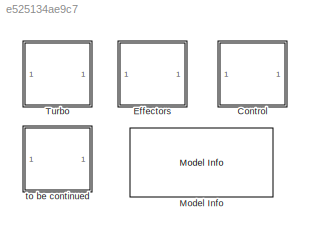
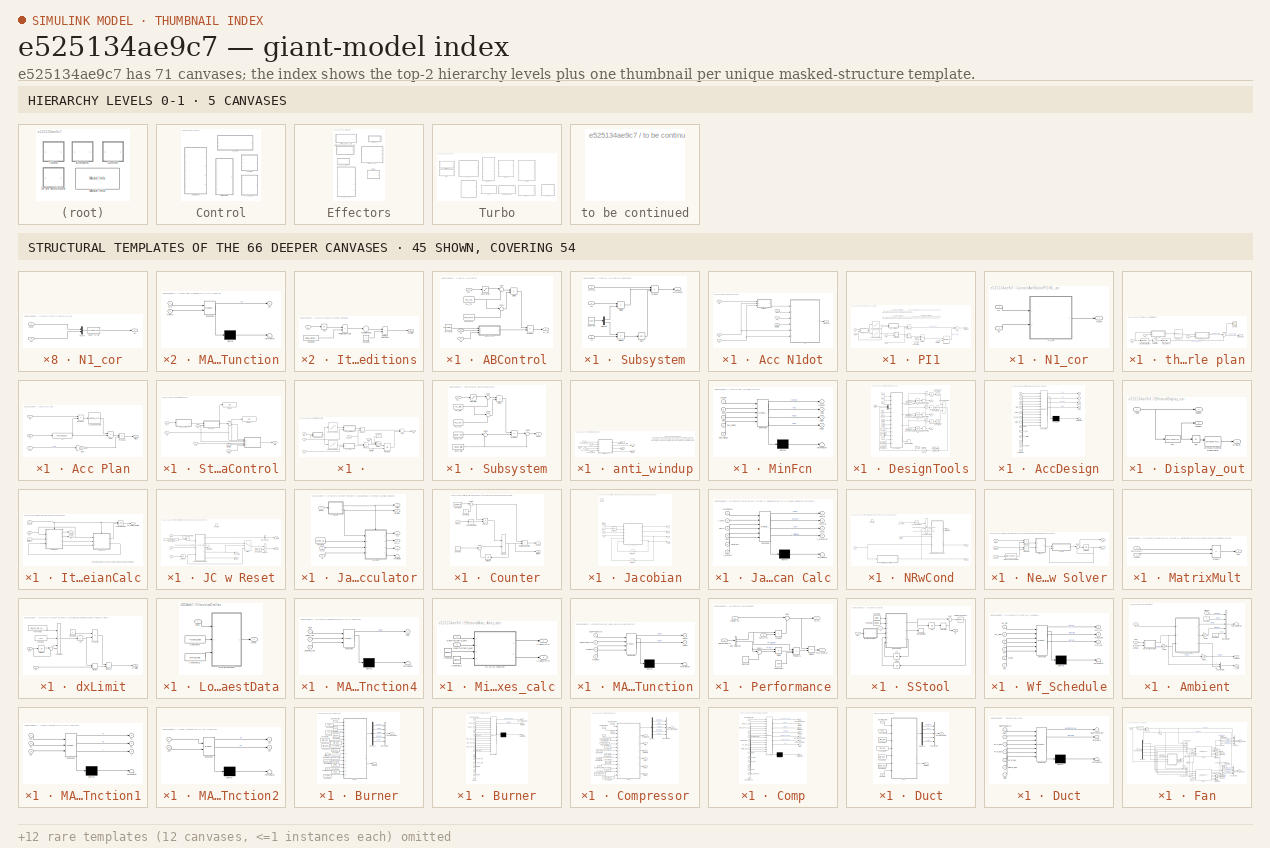
[diagram: thumbnail index - top-2 hierarchy levels (5 canvases) + 45 structural-template representatives of the remaining 66 canvases]
MODEL slx_e525134ae9c7
KIND library
BLOCK [SubSystem] Control
  Ports = []
  RequestExecContextInheritance = off
BLOCK [SubSystem] Control/ABControl
  Ports = [3, 1]
  RequestExecContextInheritance = off
BLOCK [Product] Control/ABControl/Divide
  InputSameDT = off
  Inputs = */
  OutDataTypeStr = Inherit: Inherit via internal rule
  Ports = [2, 1]
  RndMeth = Floor
  SaturateOnIntegerOverflow = off
BLOCK [Inport] Control/ABControl/P2
  IconDisplay = Port number
  Port = 2
BLOCK [Inport] Control/ABControl/PLA
  IconDisplay = Port number
BLOCK [Constant] Control/ABControl/PLA_MAX
  Value = PLA_MAX
BLOCK [Constant] Control/ABControl/PLA_TO
  Value = PLA_TO
BLOCK [Product] Control/ABControl/Product
  InputSameDT = off
  OutDataTypeStr = Inherit: Inherit via internal rule
  Ports = [2, 1]
  RndMeth = Floor
  SaturateOnIntegerOverflow = off
BLOCK [Saturate] Control/ABControl/Saturation
  InputPortMap = u0
  LowerLimit = CCP.PLA_TO
  Ports = [1, 1]
  UpperLimit = CCP.PLA_MAX
BLOCK [SubSystem] Control/ABControl/Subsystem
  Ports = [3, 1]
  RequestExecContextInheritance = off
BLOCK [Constant] Control/ABControl/Subsystem/Constant
  Value = CNST
BLOCK [Demux] Control/ABControl/Subsystem/Demux
  DisplayOption = bar
  Outputs = 2
  Ports = [1, 2]
BLOCK [Product] Control/ABControl/Subsystem/Divide
  InputSameDT = off
  Inputs = */
  OutDataTypeStr = Inherit: Inherit via internal rule
  Ports = [2, 1]
  RndMeth = Floor
  SaturateOnIntegerOverflow = off
BLOCK [Product] Control/ABControl/Subsystem/Divide1
  InputSameDT = off
  Inputs = /*
  OutDataTypeStr = Inherit: Inherit via internal rule
  Ports = [2, 1]
  RndMeth = Floor
  SaturateOnIntegerOverflow = off
BLOCK [Inport] Control/ABControl/Subsystem/P2
  IconDisplay = Port number
  Port = 2
BLOCK [Product] Control/ABControl/Subsystem/Product
  InputSameDT = off
  Inputs = 3
  OutDataTypeStr = Inherit: Inherit via internal rule
  Ports = [3, 1]
  RndMeth = Floor
  SaturateOnIntegerOverflow = off
BLOCK [Sqrt] Control/ABControl/Subsystem/Sqrt
BLOCK [Inport] Control/ABControl/Subsystem/T2
  IconDisplay = Port number
  Port = 3
BLOCK [Inport] Control/ABControl/Subsystem/Wfmax
  IconDisplay = Port number
BLOCK [Outport] Control/ABControl/Subsystem/Wfmaxcor
  IconDisplay = Port number
BLOCK [Sum] Control/ABControl/Sum
  IconShape = round
  InputSameDT = off
  Inputs = |+-
  OutDataTypeStr = Inherit: Inherit via internal rule
  Ports = [2, 1]
  SaturateOnIntegerOverflow = off
BLOCK [Sum] Control/ABControl/Sum1
  IconShape = round
  InputSameDT = off
  Inputs = |-+
  OutDataTypeStr = Inherit: Inherit via internal rule
  Ports = [2, 1]
  SaturateOnIntegerOverflow = off
BLOCK [Inport] Control/ABControl/T2
  IconDisplay = Port number
  Port = 3
BLOCK [Outport] Control/ABControl/Wf_ab
  IconDisplay = Port number
BLOCK [Constant] Control/ABControl/Wf_max
  Value = CCP.AB.Wf_max
BLOCK [SubSystem] Control/Acc N1dot
  Ports = [6, 1]
  RequestExecContextInheritance = off
BLOCK [Inport] Control/Acc N1dot/Flag
  IconDisplay = Port number
  Port = 2
BLOCK [Inport] Control/Acc N1dot/N1
  IconDisplay = Port number
BLOCK [Inport] Control/Acc N1dot/N2
  IconDisplay = Port number
  Port = 6
BLOCK [Inport] Control/Acc N1dot/P2
  IconDisplay = Port number
  Port = 4
BLOCK [SubSystem] Control/Acc N1dot/PI1
  Ports = [6, 1]
  RequestExecContextInheritance = off
BLOCK [Sum] Control/Acc N1dot/PI1/Add
  InputSameDT = off
  OutDataTypeStr = Inherit: Inherit via internal rule
  Ports = [2, 1]
  SaturateOnIntegerOverflow = off
BLOCK [Constant] Control/Acc N1dot/PI1/Constant
  Value = 0
BLOCK [Inport] Control/Acc N1dot/PI1/Flag
  IconDisplay = Port number
  Port = 2
BLOCK [DiscreteIntegrator] Control/Acc N1dot/PI1/Integrator
  ICPrevOutput = DiscIntNeverNeededParam
  ICPrevScaledInput = DiscIntNeverNeededParam
  InitialConditionSource = external
  Ports = [2, 1]
  SampleTime = sample_time
BLOCK [SubSystem] Control/Acc N1dot/PI1/Kp_cor to Kp
  Ports = [2, 1]
  RequestExecContextInheritance = off
BLOCK [Fcn] Control/Acc N1dot/PI1/Kp_cor to Kp/Fcn
  Expr = u(1)*sqrt(u(2)/288.15)
BLOCK [Outport] Control/Acc N1dot/PI1/Kp_cor to Kp/Kp
  IconDisplay = Port number
BLOCK [Inport] Control/Acc N1dot/PI1/Kp_cor to Kp/Kp_cor
  IconDisplay = Port number
BLOCK [Mux] Control/Acc N1dot/PI1/Kp_cor to Kp/Mux
  DisplayOption = bar
  Inputs = 2
  Ports = [2, 1]
BLOCK [Inport] Control/Acc N1dot/PI1/Kp_cor to Kp/T2
  IconDisplay = Port number
  Port = 2
BLOCK [Lookup] Control/Acc N1dot/PI1/Lookup Table Ki
  InputValues = CCP.Ndot.N1cor_Tab
  SaturateOnIntegerOverflow = off
  Table = CCP.Ndot.Ki_Tab
BLOCK [Lookup] Control/Acc N1dot/PI1/Lookup Table Kp
  InputValues = CCP.Ndot.N1cor_Tab
  SaturateOnIntegerOverflow = off
  Table = CCP.Ndot.Kp_Tab
BLOCK [Inport] Control/Acc N1dot/PI1/N1
  IconDisplay = Port number
  Port = 3
BLOCK [SubSystem] Control/Acc N1dot/PI1/N1_cor
  Ports = [2, 1]
  RequestExecContextInheritance = off
BLOCK [Inport] Control/Acc N1dot/PI1/N1_cor/N1
  IconDisplay = Port number
BLOCK [SubSystem] Control/Acc N1dot/PI1/N1_cor/N1_cor
  ErrorFcn = Stateflow.Translate.translate
  PermitHierarchicalResolution = ExplicitOnly
  Ports = [2, 1]
  RequestExecContextInheritance = off
  SFBlockType = MATLAB Function
  TreatAsAtomicUnit = on
BLOCK [Demux] Control/Acc N1dot/PI1/N1_cor/N1_cor/ Demux 
  Outputs = 1
  Ports = [1, 1]
BLOCK [S-Function] Control/Acc N1dot/PI1/N1_cor/N1_cor/ SFunction 
  EnableBusSupport = off
  FunctionName = sf_sfun
  PortCounts = [2 2]
  Ports = [2, 2]
  Tag = Stateflow S-Function GTMLE_Library 28
BLOCK [Terminator] Control/Acc N1dot/PI1/N1_cor/N1_cor/ Terminator 
BLOCK [Inport] Control/Acc N1dot/PI1/N1_cor/N1_cor/N1
  IconDisplay = Port number
BLOCK [Outport] Control/Acc N1dot/PI1/N1_cor/N1_cor/N1cor
  IconDisplay = Port number
BLOCK [Inport] Control/Acc N1dot/PI1/N1_cor/N1_cor/T2
  IconDisplay = Port number
  Port = 2
BLOCK [Outport] Control/Acc N1dot/PI1/N1_cor/N1cor
  IconDisplay = Port number
BLOCK [Inport] Control/Acc N1dot/PI1/N1_cor/T2
  IconDisplay = Port number
  Port = 2
BLOCK [Inport] Control/Acc N1dot/PI1/P2
  IconDisplay = Port number
  Port = 5
BLOCK [Product] Control/Acc N1dot/PI1/Product
  InputSameDT = off
  OutDataTypeStr = Inherit: Inherit via internal rule
  Ports = [2, 1]
  RndMeth = Floor
  SaturateOnIntegerOverflow = off
BLOCK [Product] Control/Acc N1dot/PI1/Product1
  InputSameDT = off
  OutDataTypeStr = Inherit: Inherit via internal rule
  Ports = [2, 1]
  RndMeth = Floor
  SaturateOnIntegerOverflow = off
BLOCK [Switch] Control/Acc N1dot/PI1/Switch
  Criteria = u2 > Threshold
  InputSameDT = off
  SaturateOnIntegerOverflow = off
BLOCK [Inport] Control/Acc N1dot/PI1/T2
  IconDisplay = Port number
  Port = 6
BLOCK [Outport] Control/Acc N1dot/PI1/Wf ndot
  IconDisplay = Port number
BLOCK [Inport] Control/Acc N1dot/PI1/Wf_initial
  IconDisplay = Port number
  Port = 4
BLOCK [SubSystem] Control/Acc N1dot/PI1/correcting
  Ports = [2, 1]
  RequestExecContextInheritance = off
BLOCK [Fcn] Control/Acc N1dot/PI1/correcting/Fcn1
  Expr = u(1)*(u(2)/101.325)
BLOCK [Outport] Control/Acc N1dot/PI1/correcting/Ki
  IconDisplay = Port number
BLOCK [Inport] Control/Acc N1dot/PI1/correcting/Kicor
  IconDisplay = Port number
BLOCK [Mux] Control/Acc N1dot/PI1/correcting/Mux1
  DisplayOption = bar
  Inputs = 2
  Ports = [2, 1]
BLOCK [Inport] Control/Acc N1dot/PI1/correcting/P2
  IconDisplay = Port number
  Port = 2
BLOCK [Inport] Control/Acc N1dot/PI1/y
  IconDisplay = Port number
BLOCK [Inport] Control/Acc N1dot/T2
  IconDisplay = Port number
  Port = 5
BLOCK [Outport] Control/Acc N1dot/WF_acc
  IconDisplay = Port number
BLOCK [Inport] Control/Acc N1dot/Wf_initial
  IconDisplay = Port number
  Port = 3
BLOCK [SubSystem] Control/Acc N1dot/throttle plan
  Ports = [3, 1]
  RequestExecContextInheritance = off
BLOCK [Outport] Control/Acc N1dot/throttle plan/ err_N2dot
  IconDisplay = Port number
BLOCK [Reference] Control/Acc N1dot/throttle plan/Discrete Derivative  REF=simulink/Discrete/Discrete Derivative
  DoSatur = off
  ICPrevScaledInput = 0.0
  InputProcessing = Inherited
  LockScale = off
  OutDataType = fixdt(1, 16)
  OutDataTypeStr = Inherit: Inherit via internal rule
  OutMax = []
  OutMin = []
  OutScaling = 2^-10
  OutputDataTypeScalingMode = Inherit via internal rule
  Ports = [1, 1]
  RndMeth = Floor
  SourceBlock = simulink/Discrete/Discrete Derivative
  SourceType = Discrete Derivative
  gainval = 1.0
BLOCK [Inport] Control/Acc N1dot/throttle plan/N2
  IconDisplay = Port number
BLOCK [SubSystem] Control/Acc N1dot/throttle plan/N2_cor
  Ports = [2, 1]
  RequestExecContextInheritance = off
BLOCK [Fcn] Control/Acc N1dot/throttle plan/N2_cor/Fcn
  Expr = (u(1)/sqrt(u(2)))*sqrt(288.15)
BLOCK [Mux] Control/Acc N1dot/throttle plan/N2_cor/Mux
  DisplayOption = bar
  Inputs = 2
  Ports = [2, 1]
BLOCK [Inport] Control/Acc N1dot/throttle plan/N2_cor/N2
  IconDisplay = Port number
BLOCK [Outport] Control/Acc N1dot/throttle plan/N2_cor/N2cor
  IconDisplay = Port number
BLOCK [Inport] Control/Acc N1dot/throttle plan/N2_cor/T2
  IconDisplay = Port number
  Port = 2
BLOCK [SubSystem] Control/Acc N1dot/throttle plan/N2dot_cor
  Ports = [2, 1]
  RequestExecContextInheritance = off
BLOCK [Fcn] Control/Acc N1dot/throttle plan/N2dot_cor/Fcn1
  Expr = u(1)*sqrt(u(2)/101.325)
BLOCK [Mux] Control/Acc N1dot/throttle plan/N2dot_cor/Mux
  DisplayOption = bar
  Inputs = 2
  Ports = [2, 1]
BLOCK [Outport] Control/Acc N1dot/throttle plan/N2dot_cor/N2dot
  IconDisplay = Port number
BLOCK [Inport] Control/Acc N1dot/throttle plan/N2dot_cor/N2dotcor
  IconDisplay = Port number
BLOCK [Inport] Control/Acc N1dot/throttle plan/N2dot_cor/P2
  IconDisplay = Port number
  Port = 2
BLOCK [Lookup_n-D] Control/Acc N1dot/throttle plan/Ndot_acc
  BreakpointsForDimension1 = CCP.AccPlan.N2cor_Tab
  ExtrapMethod = Clip
  NumberOfTableDimensions = 1
  Ports = [1, 1]
  RndMeth = Simplest
  Table = CCP.AccPlan.N2dot_Tab
BLOCK [Inport] Control/Acc N1dot/throttle plan/P2
  IconDisplay = Port number
  Port = 2
BLOCK [Saturate] Control/Acc N1dot/throttle plan/Saturation
  InputPortMap = u0
  LowerLimit = -1500
  Ports = [1, 1]
  UpperLimit = 1500
BLOCK [Scope] Control/Acc N1dot/throttle plan/Scope
  DataFormat = StructureWithTime
  Floating = off
  LimitDataPoints = off
  NumInputPorts = 1
  Ports = [1]
  ShowLegends = off
  YMax = 10
  YMin = -10
BLOCK [Sum] Control/Acc N1dot/throttle plan/Sum
  IconShape = round
  InputSameDT = off
  Inputs = |+-
  OutDataTypeStr = Inherit: Inherit via internal rule
  Ports = [2, 1]
BLOCK [Inport] Control/Acc N1dot/throttle plan/T2
  IconDisplay = Port number
  Port = 3
BLOCK [Reference] Control/Acc N1dot/throttle plan/Transfer Fcn  REF=discretizing/Discretized  (lib defined in mdl_5048aa1cd587)
Transfer Fcn
  AbsTol = auto
  Denominator = [0.01 1]
  Numerator = [1]
  Ports = [1, 1]
  SampleTime = sample_time
  SourceBlock = discretizing/Discretized\nTransfer Fcn
  SourceType = DiscretizedTransferFcn
  Wc = 1
  method = tustin
BLOCK [SubSystem] Control/Acc Plan
  Ports = [3, 1]
  RequestExecContextInheritance = off
BLOCK [Lookup_n-D] Control/Acc Plan/1-D Lookup Table
  BreakpointsForDimension1 = CCP.AccPlan.N2cor_Tab
  NumberOfTableDimensions = 1
  Ports = [1, 1]
  RndMeth = Simplest
  Table = CCP.AccPlan.Wfcor_Tab
BLOCK [Product] Control/Acc Plan/Divide
  InputSameDT = off
  Inputs = */
  OutDataTypeStr = Inherit: Inherit via internal rule
  Ports = [2, 1]
  RndMeth = Floor
  SaturateOnIntegerOverflow = off
BLOCK [Gain] Control/Acc Plan/Gain
  Gain = 1e-3
  OutDataTypeStr = Inherit: Inherit via internal rule
  ParamDataTypeStr = Inherit: Inherit via internal rule
  SaturateOnIntegerOverflow = off
BLOCK [Inport] Control/Acc Plan/N2
  IconDisplay = Port number
  Port = 2
BLOCK [Product] Control/Acc Plan/Product
  InputSameDT = off
  OutDataTypeStr = Inherit: Inherit via internal rule
  Ports = [2, 1]
  SaturateOnIntegerOverflow = off
BLOCK [Product] Control/Acc Plan/Product1
  InputSameDT = off
  OutDataTypeStr = Inherit: Inherit via internal rule
  Ports = [2, 1]
  SaturateOnIntegerOverflow = off
BLOCK [Inport] Control/Acc Plan/Ps3
  IconDisplay = Port number
BLOCK [Inport] Control/Acc Plan/T2
  IconDisplay = Port number
  Port = 3
BLOCK [Outport] Control/Acc Plan/Wfacc
  IconDisplay = Port number
BLOCK [Fcn] Control/Acc Plan/a
  Expr = sqrt(288.15/u(1))
BLOCK [SubSystem] Control/Static Control
  Ports = [6, 1]
  RequestExecContextInheritance = off
BLOCK [SubSystem] Control/Static Control/ 
  Ports = [6, 1]
  RequestExecContextInheritance = off
BLOCK [Sum] Control/Static Control/ /Add
  InputSameDT = off
  OutDataTypeStr = Inherit: Inherit via internal rule
  Ports = [2, 1]
  SaturateOnIntegerOverflow = off
BLOCK [Constant] Control/Static Control/ /Constant
  Value = 0
BLOCK [Inport] Control/Static Control/ /Flag
  IconDisplay = Port number
  Port = 6
BLOCK [Integrator] Control/Static Control/ /Integrator1
  InitialConditionSource = external
  Ports = [2, 1]
BLOCK [SubSystem] Control/Static Control/ /Ki_cor to Ki
  Ports = [2, 1]
  RequestExecContextInheritance = off
BLOCK [Fcn] Control/Static Control/ /Ki_cor to Ki/Fcn1
  Expr = u(1)*u(2)/101.325
BLOCK [Outport] Control/Static Control/ /Ki_cor to Ki/Ki
  IconDisplay = Port number
BLOCK [Inport] Control/Static Control/ /Ki_cor to Ki/Ki_cor
  IconDisplay = Port number
BLOCK [Mux] Control/Static Control/ /Ki_cor to Ki/Mux1
  DisplayOption = bar
  Inputs = 2
  Ports = [2, 1]
BLOCK [Inport] Control/Static Control/ /Ki_cor to Ki/P2
  IconDisplay = Port number
  Port = 2
BLOCK [SubSystem] Control/Static Control/ /Kp_cor to Kp
  Ports = [2, 1]
  RequestExecContextInheritance = off
BLOCK [Fcn] Control/Static Control/ /Kp_cor to Kp/Fcn
  Expr = u(1)*sqrt(u(2)/288.15)
BLOCK [Outport] Control/Static Control/ /Kp_cor to Kp/Kp
  IconDisplay = Port number
BLOCK [Inport] Control/Static Control/ /Kp_cor to Kp/Kp_cor
  IconDisplay = Port number
BLOCK [Mux] Control/Static Control/ /Kp_cor to Kp/Mux
  DisplayOption = bar
  Inputs = 2
  Ports = [2, 1]
BLOCK [Inport] Control/Static Control/ /Kp_cor to Kp/T2
  IconDisplay = Port number
  Port = 2
BLOCK [Lookup] Control/Static Control/ /Lookup Table Ki
  InputValues = CCP.SC.N1cor_Tab
  SaturateOnIntegerOverflow = off
  Table = CCP.SC.Ki_Tab
BLOCK [Lookup] Control/Static Control/ /Lookup Table Kp
  InputValues = CCP.SC.N1cor_Tab
  SaturateOnIntegerOverflow = off
  Table = CCP.SC.Kp_Tab
BLOCK [Inport] Control/Static Control/ /N1
  IconDisplay = Port number
  Port = 2
BLOCK [SubSystem] Control/Static Control/ /N1_cor
  Ports = [2, 1]
  RequestExecContextInheritance = off
BLOCK [Fcn] Control/Static Control/ /N1_cor/Fcn
  Expr = (u(1)/sqrt(u(2)))*sqrt(288.15)
BLOCK [Mux] Control/Static Control/ /N1_cor/Mux
  DisplayOption = bar
  Inputs = 2
  Ports = [2, 1]
BLOCK [Inport] Control/Static Control/ /N1_cor/N1
  IconDisplay = Port number
BLOCK [Outport] Control/Static Control/ /N1_cor/N1cor
  IconDisplay = Port number
BLOCK [Inport] Control/Static Control/ /N1_cor/T2
  IconDisplay = Port number
  Port = 2
BLOCK [Inport] Control/Static Control/ /N1_eer
  IconDisplay = Port number
BLOCK [Inport] Control/Static Control/ /P2
  IconDisplay = Port number
  Port = 4
BLOCK [Product] Control/Static Control/ /Product
  InputSameDT = off
  OutDataTypeStr = Inherit: Inherit via internal rule
  Ports = [2, 1]
  RndMeth = Floor
  SaturateOnIntegerOverflow = off
BLOCK [Product] Control/Static Control/ /Product1
  InputSameDT = off
  OutDataTypeStr = Inherit: Inherit via internal rule
  Ports = [2, 1]
  RndMeth = Floor
  SaturateOnIntegerOverflow = off
BLOCK [Switch] Control/Static Control/ /Switch
  Criteria = u2 > Threshold
  InputSameDT = off
  SaturateOnIntegerOverflow = off
BLOCK [Inport] Control/Static Control/ /T2
  IconDisplay = Port number
  Port = 3
BLOCK [Outport] Control/Static Control/ /Wf
  IconDisplay = Port number
BLOCK [Inport] Control/Static Control/ /Wf_initial
  IconDisplay = Port number
  Port = 5
BLOCK [Display] Control/Static Control/Display
  Decimation = 1
  Ports = [1]
BLOCK [Display] Control/Static Control/Display1
  Decimation = 1
  Ports = [1]
BLOCK [Inport] Control/Static Control/Flag
  IconDisplay = Port number
  Port = 6
BLOCK [Inport] Control/Static Control/N1
  IconDisplay = Port number
BLOCK [SubSystem] Control/Static Control/N1_cor
  Ports = [2, 1]
  RequestExecContextInheritance = off
BLOCK [Mux] Control/Static Control/N1_cor/Mux4
  DisplayOption = bar
  Inputs = 2
  Ports = [2, 1]
BLOCK [Outport] Control/Static Control/N1_cor/N1
  IconDisplay = Port number
BLOCK [Inport] Control/Static Control/N1_cor/N1cor
  IconDisplay = Port number
BLOCK [Fcn] Control/Static Control/N1_cor/N1cor to N1
  Expr = u(1)*sqrt(u(2)/288.15)
BLOCK [Inport] Control/Static Control/N1_cor/T2
  IconDisplay = Port number
  Port = 2
BLOCK [Inport] Control/Static Control/P2
  IconDisplay = Port number
  Port = 4
BLOCK [Inport] Control/Static Control/PLA
  IconDisplay = Port number
  Port = 2
BLOCK [SubSystem] Control/Static Control/Subsystem
  Ports = [1, 1]
  RequestExecContextInheritance = off
BLOCK [Product] Control/Static Control/Subsystem/Divide
  InputSameDT = off
  Inputs = */
  OutDataTypeStr = Inherit: Inherit via internal rule
  Ports = [2, 1]
  RndMeth = Floor
  SaturateOnIntegerOverflow = off
BLOCK [Outport] Control/Static Control/Subsystem/N1cor
  IconDisplay = Port number
BLOCK [Constant] Control/Static Control/Subsystem/N1cor_TO
  Value = N1cor_TO
BLOCK [Constant] Control/Static Control/Subsystem/N1cor_idle
  Value = N1cor_idle
BLOCK [Inport] Control/Static Control/Subsystem/PLA
  IconDisplay = Port number
BLOCK [Constant] Control/Static Control/Subsystem/PLA_TO
  Value = PLA_TO
BLOCK [Constant] Control/Static Control/Subsystem/PLA_idle
  Value = PLA_idle
BLOCK [Product] Control/Static Control/Subsystem/Product
  InputSameDT = off
  OutDataTypeStr = Inherit: Inherit via internal rule
  Ports = [2, 1]
  RndMeth = Floor
  SaturateOnIntegerOverflow = off
BLOCK [Saturate] Control/Static Control/Subsystem/Saturation
  InputPortMap = u0
  LowerLimit = CCP.PLA_idle
  Ports = [1, 1]
  UpperLimit = CCP.PLA_TO
BLOCK [Sum] Control/Static Control/Subsystem/Sum
  IconShape = round
  InputSameDT = off
  Inputs = |+-
  OutDataTypeStr = Inherit: Inherit via internal rule
  Ports = [2, 1]
  SaturateOnIntegerOverflow = off
BLOCK [Sum] Control/Static Control/Subsystem/Sum1
  IconShape = round
  InputSameDT = off
  Inputs = |-+
  OutDataTypeStr = Inherit: Inherit via internal rule
  Ports = [2, 1]
  SaturateOnIntegerOverflow = off
BLOCK [Sum] Control/Static Control/Subsystem/Sum2
  IconShape = round
  InputSameDT = off
  Inputs = |+-
  OutDataTypeStr = Inherit: Inherit via internal rule
  Ports = [2, 1]
  SaturateOnIntegerOverflow = off
BLOCK [Sum] Control/Static Control/Subsystem/Sum3
  IconShape = round
  InputSameDT = off
  Inputs = |++
  OutDataTypeStr = Inherit: Inherit via internal rule
  Ports = [2, 1]
  SaturateOnIntegerOverflow = off
BLOCK [Sum] Control/Static Control/Sum
  IconShape = round
  InputSameDT = off
  Inputs = |+-
  OutDataTypeStr = Inherit: Inherit via internal rule
  Ports = [2, 1]
BLOCK [Inport] Control/Static Control/T2
  IconDisplay = Port number
  Port = 3
BLOCK [Inport] Control/Static Control/Wf_initial
  IconDisplay = Port number
  Port = 5
BLOCK [Outport] Control/Static Control/Wfs
  IconDisplay = Port number
BLOCK [SubSystem] Control/anti_windup
  Ports = [5, 4]
  RequestExecContextInheritance = off
BLOCK [SubSystem] Control/anti_windup/MinFcn
  ErrorFcn = Stateflow.Translate.translate
  PermitHierarchicalResolution = ExplicitOnly
  Ports = [5, 4]
  RequestExecContextInheritance = off
  SFBlockType = MATLAB Function
  TreatAsAtomicUnit = on
BLOCK [Demux] Control/anti_windup/MinFcn/ Demux 
  Outputs = 1
  Ports = [1, 1]
BLOCK [S-Function] Control/anti_windup/MinFcn/ SFunction 
  EnableBusSupport = off
  FunctionName = sf_sfun
  PortCounts = [5 5]
  Ports = [5, 5]
  Tag = Stateflow S-Function GTMLE_Library 52
BLOCK [Terminator] Control/anti_windup/MinFcn/ Terminator 
BLOCK [Inport] Control/anti_windup/MinFcn/acc
  IconDisplay = Port number
  Port = 2
BLOCK [Inport] Control/anti_windup/MinFcn/acc_N2dot
  IconDisplay = Port number
  Port = 4
BLOCK [Outport] Control/anti_windup/MinFcn/choose
  IconDisplay = Port number
BLOCK [Inport] Control/anti_windup/MinFcn/dec
  IconDisplay = Port number
  Port = 3
BLOCK [Inport] Control/anti_windup/MinFcn/dec_N2dot
  IconDisplay = Port number
  Port = 5
BLOCK [Outport] Control/anti_windup/MinFcn/flag
  IconDisplay = Port number
  Port = 2
BLOCK [Outport] Control/anti_windup/MinFcn/flag2
  IconDisplay = Port number
  Port = 3
BLOCK [Outport] Control/anti_windup/MinFcn/flag3
  IconDisplay = Port number
  Port = 4
BLOCK [Inport] Control/anti_windup/MinFcn/steady
  IconDisplay = Port number
BLOCK [Outport] Control/anti_windup/Wf_above_idle
  IconDisplay = Port number
  Port = 3
BLOCK [Inport] Control/anti_windup/acc
  IconDisplay = Port number
  Port = 2
BLOCK [Inport] Control/anti_windup/acc_N2dot
  IconDisplay = Port number
  Port = 3
BLOCK [Inport] Control/anti_windup/dec
  IconDisplay = Port number
  Port = 4
BLOCK [Inport] Control/anti_windup/dec_N2dot
  IconDisplay = Port number
  Port = 5
BLOCK [Outport] Control/anti_windup/flag
  IconDisplay = Port number
BLOCK [Outport] Control/anti_windup/flag2
  IconDisplay = Port number
  Port = 2
BLOCK [Outport] Control/anti_windup/flag3
  IconDisplay = Port number
  Port = 4
BLOCK [Inport] Control/anti_windup/set_point_Wf
  IconDisplay = Port number
BLOCK [SubSystem] Effectors
  Ports = []
  RequestExecContextInheritance = off
BLOCK [SubSystem] Effectors/DesignTools
  InitFcn = load( 'resource/SS_Tool_result' );
  Ports = [5, 4]
  RequestExecContextInheritance = off
BLOCK [Abs] Effectors/DesignTools/Abs
  SaturateOnIntegerOverflow = off
BLOCK [Abs] Effectors/DesignTools/Abs1
  SaturateOnIntegerOverflow = off
BLOCK [Abs] Effectors/DesignTools/Abs2
  SaturateOnIntegerOverflow = off
BLOCK [SubSystem] Effectors/DesignTools/AccDesign
  ErrorFcn = Stateflow.Translate.translate
  PermitHierarchicalResolution = ExplicitOnly
  Ports = [13, 4]
  RequestExecContextInheritance = off
  SFBlockType = MATLAB Function
  TreatAsAtomicUnit = on
BLOCK [Demux] Effectors/DesignTools/AccDesign/ Demux 
  Outputs = 1
  Ports = [1, 1]
BLOCK [S-Function] Effectors/DesignTools/AccDesign/ SFunction 
  EnableBusSupport = off
  FunctionName = sf_sfun
  PortCounts = [13 5]
  Ports = [13, 5]
  Tag = Stateflow S-Function GTMLE_Library 10
BLOCK [Terminator] Effectors/DesignTools/AccDesign/ Terminator 
BLOCK [Inport] Effectors/DesignTools/AccDesign/P3
  IconDisplay = Port number
  Port = 3
BLOCK [Inport] Effectors/DesignTools/AccDesign/SM
  IconDisplay = Port number
BLOCK [Inport] Effectors/DesignTools/AccDesign/SMres
  IconDisplay = Port number
  Port = 7
BLOCK [Inport] Effectors/DesignTools/AccDesign/T4
  IconDisplay = Port number
  Port = 2
BLOCK [Inport] Effectors/DesignTools/AccDesign/T4res
  IconDisplay = Port number
  Port = 8
BLOCK [Inport] Effectors/DesignTools/AccDesign/accordec
  IconDisplay = Port number
  Port = 12
BLOCK [Inport] Effectors/DesignTools/AccDesign/clock
  IconDisplay = Port number
  Port = 5
BLOCK [Inport] Effectors/DesignTools/AccDesign/error
  IconDisplay = Port number
  Port = 4
BLOCK [Inport] Effectors/DesignTools/AccDesign/kci
  IconDisplay = Port number
  Port = 11
BLOCK [Outport] Effectors/DesignTools/AccDesign/n1
  IconDisplay = Port number
BLOCK [Outport] Effectors/DesignTools/AccDesign/n2
  IconDisplay = Port number
  Port = 2
BLOCK [Inport] Effectors/DesignTools/AccDesign/n2_Wfmin
  IconDisplay = Port number
  Port = 10
BLOCK [Inport] Effectors/DesignTools/AccDesign/n2_tab
  IconDisplay = Port number
  Port = 9
BLOCK [Inport] Effectors/DesignTools/AccDesign/n2dot
  IconDisplay = Port number
  Port = 6
BLOCK [Inport] Effectors/DesignTools/AccDesign/statedata
  IconDisplay = Port number
  Port = 13
BLOCK [Outport] Effectors/DesignTools/AccDesign/stop
  IconDisplay = Port number
  Port = 4
BLOCK [Outport] Effectors/DesignTools/AccDesign/wf_out
  IconDisplay = Port number
  Port = 3
BLOCK [Outport] Effectors/DesignTools/Active
  IconDisplay = Port number
  Port = 4
BLOCK [Clock] Effectors/DesignTools/Clock
BLOCK [Reference] Effectors/DesignTools/Compare To Constant  REF=simulink/Logic and Bit
Operations/Compare
To Constant
  OutDataTypeStr = boolean
  Ports = [1, 1]
  SourceBlock = simulink/Logic and Bit\nOperations/Compare\nTo Constant
  SourceType = Compare To Constant
  ZeroCross = on
  const = 1e-8
  relop = >=
BLOCK [Reference] Effectors/DesignTools/Compare To Constant1  REF=simulink/Logic and Bit
Operations/Compare
To Constant
  OutDataTypeStr = boolean
  Ports = [1, 1]
  SourceBlock = simulink/Logic and Bit\nOperations/Compare\nTo Constant
  SourceType = Compare To Constant
  ZeroCross = on
  const = 1e-8
  relop = >=
BLOCK [Reference] Effectors/DesignTools/Compare To Constant2  REF=simulink/Logic and Bit
Operations/Compare
To Constant
  OutDataTypeStr = boolean
  Ports = [1, 1]
  SourceBlock = simulink/Logic and Bit\nOperations/Compare\nTo Constant
  SourceType = Compare To Constant
  ZeroCross = on
  const = 1e-8
  relop = >=
BLOCK [DataTypeConversion] Effectors/DesignTools/Data Type Conversion
  RndMeth = Floor
  SaturateOnIntegerOverflow = off
BLOCK [Logic] Effectors/DesignTools/Logical Operator
  AllPortsSameDT = off
  Inputs = 3
  Operator = OR
  OutDataTypeStr = boolean
  Ports = [3, 1]
BLOCK [Mux] Effectors/DesignTools/Mux
  DisplayOption = bar
  Inputs = 2
  Ports = [2, 1]
BLOCK [Inport] Effectors/DesignTools/P3
  IconDisplay = Port number
  Port = 3
BLOCK [RateLimiter] Effectors/DesignTools/Rate Limiter1
  FallingSlewLimit = -10000
  InitialCondition = statedata(1,3)
  RisingSlewLimit = 10000
  SampleTimeMode = inherited
BLOCK [RateLimiter] Effectors/DesignTools/Rate Limiter2
  FallingSlewLimit = -2
  InitialCondition = statedata(1,1)
  RisingSlewLimit = 2
  SampleTimeMode = inherited
BLOCK [RateLimiter] Effectors/DesignTools/Rate Limiter3
  FallingSlewLimit = -10000
  InitialCondition = statedata(1,2)
  RisingSlewLimit = 10000
  SampleTimeMode = inherited
BLOCK [Inport] Effectors/DesignTools/SM
  IconDisplay = Port number
BLOCK [Constant] Effectors/DesignTools/SMres
  Value = SMres
BLOCK [Stop] Effectors/DesignTools/Stop Simulation
BLOCK [Sum] Effectors/DesignTools/Sum
  IconShape = round
  InputSameDT = off
  Inputs = |+-
  OutDataTypeStr = Inherit: Inherit via internal rule
  Ports = [2, 1]
  SaturateOnIntegerOverflow = off
BLOCK [Sum] Effectors/DesignTools/Sum1
  IconShape = round
  InputSameDT = off
  Inputs = |+-
  OutDataTypeStr = Inherit: Inherit via internal rule
  Ports = [2, 1]
  SaturateOnIntegerOverflow = off
BLOCK [Sum] Effectors/DesignTools/Sum2
  IconShape = round
  InputSameDT = off
  Inputs = |+-
  OutDataTypeStr = Inherit: Inherit via internal rule
  Ports = [2, 1]
  SaturateOnIntegerOverflow = off
BLOCK [Inport] Effectors/DesignTools/T4
  IconDisplay = Port number
  Port = 2
BLOCK [Constant] Effectors/DesignTools/T4res
  Value = T4res
BLOCK [UnitDelay] Effectors/DesignTools/Unit Delay
  InitialCondition = 1
  InputProcessing = Elements as channels (sample based)
  SampleTime = -1
BLOCK [Reference] Effectors/DesignTools/Unit Delay External IC  REF=simulink/Additional Math
& Discrete/Additional
Discrete/Unit Delay
External IC
  Ports = [2, 1]
  SourceBlock = simulink/Additional Math\n& Discrete/Additional\nDiscrete/Unit Delay\nExternal IC
  SourceType = Unit Delay External Initial Condition
  tsamp = -1
BLOCK [Reference] Effectors/DesignTools/Unit Delay External IC1  REF=simulink/Additional Math
& Discrete/Additional
Discrete/Unit Delay
External IC
  Ports = [2, 1]
  SourceBlock = simulink/Additional Math\n& Discrete/Additional\nDiscrete/Unit Delay\nExternal IC
  SourceType = Unit Delay External Initial Condition
  tsamp = -1
BLOCK [Reference] Effectors/DesignTools/Unit Delay External IC2  REF=simulink/Additional Math
& Discrete/Additional
Discrete/Unit Delay
External IC
  Ports = [2, 1]
  SourceBlock = simulink/Additional Math\n& Discrete/Additional\nDiscrete/Unit Delay\nExternal IC
  SourceType = Unit Delay External Initial Condition
  tsamp = -1
BLOCK [Outport] Effectors/DesignTools/Wf
  IconDisplay = Port number
  Port = 3
BLOCK [Constant] Effectors/DesignTools/accordec
  Value = accordec
BLOCK [Constant] Effectors/DesignTools/accordec1
  Value = statedata
BLOCK [Constant] Effectors/DesignTools/accordec2
  Value = statedata(1,2)
BLOCK [Constant] Effectors/DesignTools/accordec3
  Value = statedata(1,3)
BLOCK [Constant] Effectors/DesignTools/accordec4
  Value = statedata(1,1)
BLOCK [Inport] Effectors/DesignTools/error
  IconDisplay = Port number
  Port = 4
BLOCK [Constant] Effectors/DesignTools/kci
  Value = kci
BLOCK [Outport] Effectors/DesignTools/n1
  IconDisplay = Port number
BLOCK [Outport] Effectors/DesignTools/n2
  IconDisplay = Port number
  Port = 2
BLOCK [Constant] Effectors/DesignTools/n2_Wfmin
  Value = n2_Wfmin
BLOCK [Constant] Effectors/DesignTools/n2_tab
  Value = n2_tab
BLOCK [Inport] Effectors/DesignTools/n2dot
  IconDisplay = Port number
  Port = 5
BLOCK [SubSystem] Effectors/Display_out
  Ports = [1, 3]
  RequestExecContextInheritance = off
BLOCK [Abs] Effectors/Display_out/Abs
  SaturateOnIntegerOverflow = off
BLOCK [Outport] Effectors/Display_out/Display
  IconDisplay = Port number
  Port = 3
BLOCK [Fcn] Effectors/Display_out/Fcn
  Expr = (u(1)-u(2))/u(2)*100
BLOCK [Reference] Effectors/Display_out/MinMax Running Resettable  REF=simulink/Math
Operations/MinMax
Running
Resettable
  Function = max
  Ports = [2, 1]
  SourceBlock = simulink/Math\nOperations/MinMax\nRunning\nResettable
  SourceType = MinMax Running Resettable
  vinit = 0.0
BLOCK [Outport] Effectors/Display_out/Scope1
  IconDisplay = Port number
BLOCK [Outport] Effectors/Display_out/Scope2
  IconDisplay = Port number
  Port = 2
BLOCK [Inport] Effectors/Display_out/input
  IconDisplay = Port number
BLOCK [SubSystem] Effectors/Iterative NR Solver w JacobianCalc
  Ports = [3, 3]
  RequestExecContextInheritance = off
BLOCK [Inport] Effectors/Iterative NR Solver w JacobianCalc/Enable
  IconDisplay = Port number
  Port = 2
BLOCK [Inport] Effectors/Iterative NR Solver w JacobianCalc/Iterations
  IconDisplay = Port number
BLOCK [SubSystem] Effectors/Iterative NR Solver w JacobianCalc/JC w Reset
  Ports = [3, 4, 1]
  RequestExecContextInheritance = off
BLOCK [BusCreator] Effectors/Iterative NR Solver w JacobianCalc/JC w Reset/Bus Creator
  DisplayOption = bar
  Inputs = 1
  Ports = [1, 1]
BLOCK [Constant] Effectors/Iterative NR Solver w JacobianCalc/JC w Reset/Constant
  Value = SNR_IC_M
BLOCK [Constant] Effectors/Iterative NR Solver w JacobianCalc/JC w Reset/Constant1
  OutDataTypeStr = uint32
  Value = SJacobianAttempts_M
BLOCK [EnablePort] Effectors/Iterative NR Solver w JacobianCalc/JC w Reset/Enable
  Ports = []
BLOCK [Inport] Effectors/Iterative NR Solver w JacobianCalc/JC w Reset/Iter
  IconDisplay = Port number
  Port = 2
BLOCK [Outport] Effectors/Iterative NR Solver w JacobianCalc/JC w Reset/JC_Active
  IconDisplay = Port number
  Port = 3
BLOCK [SubSystem] Effectors/Iterative NR Solver w JacobianCalc/JC w Reset/Jacobian Calculator
  Ports = [3, 5]
  RequestExecContextInheritance = off
  TreatAsAtomicUnit = on
BLOCK [Outport] Effectors/Iterative NR Solver w JacobianCalc/JC w Reset/Jacobian Calculator/Active
  IconDisplay = Port number
  Port = 4
BLOCK [Constant] Effectors/Iterative NR Solver w JacobianCalc/JC w Reset/Jacobian Calculator/Constant2
  Value = N_Per_M
BLOCK [SubSystem] Effectors/Iterative NR Solver w JacobianCalc/JC w Reset/Jacobian Calculator/Counter
  Ports = [1, 2]
  RequestExecContextInheritance = off
BLOCK [Constant] Effectors/Iterative NR Solver w JacobianCalc/JC w Reset/Jacobian Calculator/Counter/Constant
BLOCK [Constant] Effectors/Iterative NR Solver w JacobianCalc/JC w Reset/Jacobian Calculator/Counter/Constant1
  Value = N_Ind_M
BLOCK [Constant] Effectors/Iterative NR Solver w JacobianCalc/JC w Reset/Jacobian Calculator/Counter/Constant2
  Value = 3
BLOCK [Outport] Effectors/Iterative NR Solver w JacobianCalc/JC w Reset/Jacobian Calculator/Counter/Enable
  IconDisplay = Port number
BLOCK [Outport] Effectors/Iterative NR Solver w JacobianCalc/JC w Reset/Jacobian Calculator/Counter/Iteration
  IconDisplay = Port number
  Port = 2
BLOCK [Logic] Effectors/Iterative NR Solver w JacobianCalc/JC w Reset/Jacobian Calculator/Counter/Logical Operator1
  AllPortsSameDT = off
  Operator = NOT
  OutDataTypeStr = boolean
  Ports = [1, 1]
BLOCK [MinMax] Effectors/Iterative NR Solver w JacobianCalc/JC w Reset/Jacobian Calculator/Counter/MinMax1
  InputSameDT = off
  Inputs = 2
  Ports = [2, 1]
  SaturateOnIntegerOverflow = off
BLOCK [Product] Effectors/Iterative NR Solver w JacobianCalc/JC w Reset/Jacobian Calculator/Counter/Product
  InputSameDT = off
  OutDataTypeStr = Inherit: Inherit via internal rule
  Ports = [2, 1]
  SaturateOnIntegerOverflow = off
BLOCK [RelationalOperator] Effectors/Iterative NR Solver w JacobianCalc/JC w Reset/Jacobian Calculator/Counter/Relational Operator
  InputSameDT = off
  Operator = >
  OutDataTypeStr = boolean
  Ports = [2, 1]
BLOCK [Inport] Effectors/Iterative NR Solver w JacobianCalc/JC w Reset/Jacobian Calculator/Counter/Reset
  IconDisplay = Port number
BLOCK [Sum] Effectors/Iterative NR Solver w JacobianCalc/JC w Reset/Jacobian Calculator/Counter/Sum
  IconShape = round
  InputSameDT = off
  Inputs = |++
  OutDataTypeStr = Inherit: Inherit via internal rule
  Ports = [2, 1]
  SaturateOnIntegerOverflow = off
BLOCK [Sum] Effectors/Iterative NR Solver w JacobianCalc/JC w Reset/Jacobian Calculator/Counter/Sum1
  IconShape = round
  InputSameDT = off
  Inputs = |++
  OutDataTypeStr = Inherit: Inherit via internal rule
  Ports = [2, 1]
  SaturateOnIntegerOverflow = off
BLOCK [UnitDelay] Effectors/Iterative NR Solver w JacobianCalc/JC w Reset/Jacobian Calculator/Counter/Unit Delay
  InputProcessing = Elements as channels (sample based)
  SampleTime = -1
BLOCK [Outport] Effectors/Iterative NR Solver w JacobianCalc/JC w Reset/Jacobian Calculator/Iteration
  IconDisplay = Port number
  Port = 3
BLOCK [Outport] Effectors/Iterative NR Solver w JacobianCalc/JC w Reset/Jacobian Calculator/J
  IconDisplay = Port number
BLOCK [SubSystem] Effectors/Iterative NR Solver w JacobianCalc/JC w Reset/Jacobian Calculator/Jacobian
  Ports = [4, 4, 1]
  RequestExecContextInheritance = off
BLOCK [EnablePort] Effectors/Iterative NR Solver w JacobianCalc/JC w Reset/Jacobian Calculator/Jacobian/Enable
  Ports = []
BLOCK [Outport] Effectors/Iterative NR Solver w JacobianCalc/JC w Reset/Jacobian Calculator/Jacobian/Inv(J)
  IconDisplay = Port number
  Port = 2
BLOCK [Inport] Effectors/Iterative NR Solver w JacobianCalc/JC w Reset/Jacobian Calculator/Jacobian/Iteration
  IconDisplay = Port number
BLOCK [Outport] Effectors/Iterative NR Solver w JacobianCalc/JC w Reset/Jacobian Calculator/Jacobian/J
  IconDisplay = Port number
  Port = 3
BLOCK [SubSystem] Effectors/Iterative NR Solver w JacobianCalc/JC w Reset/Jacobian Calculator/Jacobian/Jacobian Calc
  ErrorFcn = Stateflow.Translate.translate
  PermitHierarchicalResolution = ExplicitOnly
  Ports = [6, 4]
  RequestExecContextInheritance = off
  SFBlockType = MATLAB Function
  TreatAsAtomicUnit = on
BLOCK [Demux] Effectors/Iterative NR Solver w JacobianCalc/JC w Reset/Jacobian Calculator/Jacobian/Jacobian Calc/ Demux 
  Outputs = 1
  Ports = [1, 1]
BLOCK [S-Function] Effectors/Iterative NR Solver w JacobianCalc/JC w Reset/Jacobian Calculator/Jacobian/Jacobian Calc/ SFunction 
  EnableBusSupport = off
  FunctionName = sf_sfun
  PortCounts = [6 5]
  Ports = [6, 5]
  Tag = Stateflow S-Function GTMLE_Library 6
BLOCK [Terminator] Effectors/Iterative NR Solver w JacobianCalc/JC w Reset/Jacobian Calculator/Jacobian/Jacobian Calc/ Terminator 
BLOCK [Outport] Effectors/Iterative NR Solver w JacobianCalc/JC w Reset/Jacobian Calculator/Jacobian/Jacobian Calc/InvJOut
  IconDisplay = Port number
  Port = 2
BLOCK [Inport] Effectors/Iterative NR Solver w JacobianCalc/JC w Reset/Jacobian Calculator/Jacobian/Jacobian Calc/IterationIn
  IconDisplay = Port number
BLOCK [Outport] Effectors/Iterative NR Solver w JacobianCalc/JC w Reset/Jacobian Calculator/Jacobian/Jacobian Calc/JOut
  IconDisplay = Port number
  Port = 3
BLOCK [Inport] Effectors/Iterative NR Solver w JacobianCalc/JC w Reset/Jacobian Calculator/Jacobian/Jacobian Calc/JStateIn
  IconDisplay = Port number
  Port = 5
BLOCK [Inport] Effectors/Iterative NR Solver w JacobianCalc/JC w Reset/Jacobian Calculator/Jacobian/Jacobian Calc/PerIn
  IconDisplay = Port number
  Port = 3
BLOCK [Inport] Effectors/Iterative NR Solver w JacobianCalc/JC w Reset/Jacobian Calculator/Jacobian/Jacobian Calc/XoIn
  IconDisplay = Port number
  Port = 4
BLOCK [Outport] Effectors/Iterative NR Solver w JacobianCalc/JC w Reset/Jacobian Calculator/Jacobian/Jacobian Calc/XpOut
  IconDisplay = Port number
BLOCK [Inport] Effectors/Iterative NR Solver w JacobianCalc/JC w Reset/Jacobian Calculator/Jacobian/Jacobian Calc/y_StateIn
  IconDisplay = Port number
  Port = 6
BLOCK [Outport] Effectors/Iterative NR Solver w JacobianCalc/JC w Reset/Jacobian Calculator/Jacobian/Jacobian Calc/y_StateOut
  IconDisplay = Port number
  Port = 4
BLOCK [Inport] Effectors/Iterative NR Solver w JacobianCalc/JC w Reset/Jacobian Calculator/Jacobian/Jacobian Calc/y_xpIn
  IconDisplay = Port number
  Port = 2
BLOCK [Inport] Effectors/Iterative NR Solver w JacobianCalc/JC w Reset/Jacobian Calculator/Jacobian/Per
  IconDisplay = Port number
  Port = 2
BLOCK [UnitDelay] Effectors/Iterative NR Solver w JacobianCalc/JC w Reset/Jacobian Calculator/Jacobian/Unit Delay
  InitialCondition = zeros(length(N_Per_M),length(N_Per_M))
  InputProcessing = Elements as channels (sample based)
  SampleTime = -1
BLOCK [UnitDelay] Effectors/Iterative NR Solver w JacobianCalc/JC w Reset/Jacobian Calculator/Jacobian/Unit Delay1
  InitialCondition = zeros(length(N_Per_M),length(N_Per_M)+1)
  InputProcessing = Elements as channels (sample based)
  SampleTime = -1
BLOCK [UnitDelay] Effectors/Iterative NR Solver w JacobianCalc/JC w Reset/Jacobian Calculator/Jacobian/Unit Delay2
  InitialCondition = zeros(length(N_Per_M),1)
  InputProcessing = Elements as channels (sample based)
  SampleTime = -1
BLOCK [Inport] Effectors/Iterative NR Solver w JacobianCalc/JC w Reset/Jacobian Calculator/Jacobian/Xo
  IconDisplay = Port number
  Port = 4
BLOCK [Inport] Effectors/Iterative NR Solver w JacobianCalc/JC w Reset/Jacobian Calculator/Jacobian/f(x_p)
  IconDisplay = Port number
  Port = 3
BLOCK [Outport] Effectors/Iterative NR Solver w JacobianCalc/JC w Reset/Jacobian Calculator/Jacobian/x_p
  IconDisplay = Port number
BLOCK [Outport] Effectors/Iterative NR Solver w JacobianCalc/JC w Reset/Jacobian Calculator/Jacobian/y_State
  IconDisplay = Port number
  Port = 4
BLOCK [Inport] Effectors/Iterative NR Solver w JacobianCalc/JC w Reset/Jacobian Calculator/Reset
  IconDisplay = Port number
BLOCK [Terminator] Effectors/Iterative NR Solver w JacobianCalc/JC w Reset/Jacobian Calculator/Terminator
BLOCK [Inport] Effectors/Iterative NR Solver w JacobianCalc/JC w Reset/Jacobian Calculator/Xo
  IconDisplay = Port number
  Port = 3
BLOCK [Inport] Effectors/Iterative NR Solver w JacobianCalc/JC w Reset/Jacobian Calculator/f(x_p)
  IconDisplay = Port number
  Port = 2
BLOCK [Outport] Effectors/Iterative NR Solver w JacobianCalc/JC w Reset/Jacobian Calculator/inv(J)
  IconDisplay = Port number
  Port = 5
BLOCK [Outport] Effectors/Iterative NR Solver w JacobianCalc/JC w Reset/Jacobian Calculator/x_p
  IconDisplay = Port number
  Port = 2
BLOCK [Product] Effectors/Iterative NR Solver w JacobianCalc/JC w Reset/Product
  InputSameDT = off
  OutDataTypeStr = Inherit: Inherit via internal rule
  Ports = [2, 1]
  SaturateOnIntegerOverflow = off
BLOCK [RelationalOperator] Effectors/Iterative NR Solver w JacobianCalc/JC w Reset/Relational Operator
  InputSameDT = off
  Operator = ==
  OutDataTypeStr = boolean
  Ports = [2, 1]
BLOCK [Outport] Effectors/Iterative NR Solver w JacobianCalc/JC w Reset/S_Data
  IconDisplay = Port number
BLOCK [Switch] Effectors/Iterative NR Solver w JacobianCalc/JC w Reset/Switch
  Criteria = u2 ~= 0
  InputSameDT = off
  SaturateOnIntegerOverflow = off
  Threshold = 1
BLOCK [Terminator] Effectors/Iterative NR Solver w JacobianCalc/JC w Reset/Terminator3
BLOCK [UnitDelay] Effectors/Iterative NR Solver w JacobianCalc/JC w Reset/Unit Delay
  InitialCondition = ones(length(SNR_IC_M),1)
  InputProcessing = Elements as channels (sample based)
  SampleTime = -1
BLOCK [Outport] Effectors/Iterative NR Solver w JacobianCalc/JC w Reset/X_out
  IconDisplay = Port number
  Port = 2
BLOCK [Inport] Effectors/Iterative NR Solver w JacobianCalc/JC w Reset/f(x)
  IconDisplay = Port number
BLOCK [Outport] Effectors/Iterative NR Solver w JacobianCalc/JC w Reset/inv(J)
  IconDisplay = Port number
  Port = 4
BLOCK [Inport] Effectors/Iterative NR Solver w JacobianCalc/JC w Reset/y(n)
  IconDisplay = Port number
  Port = 3
BLOCK [Logic] Effectors/Iterative NR Solver w JacobianCalc/Logical Operator
  AllPortsSameDT = off
  OutDataTypeStr = boolean
  Ports = [2, 1]
BLOCK [SubSystem] Effectors/Iterative NR Solver w JacobianCalc/NRwCond
  Ports = [3, 2, 1]
  RequestExecContextInheritance = off
BLOCK [Outport] Effectors/Iterative NR Solver w JacobianCalc/NRwCond/CCnd
  IconDisplay = Port number
BLOCK [EnablePort] Effectors/Iterative NR Solver w JacobianCalc/NRwCond/Enable
  Ports = []
BLOCK [SubSystem] Effectors/Iterative NR Solver w JacobianCalc/NRwCond/Iteration Conditions
  Ports = [1, 1]
  RequestExecContextInheritance = off
BLOCK [Abs] Effectors/Iterative NR Solver w JacobianCalc/NRwCond/Iteration Conditions/Abs
  SaturateOnIntegerOverflow = off
BLOCK [Outport] Effectors/Iterative NR Solver w JacobianCalc/NRwCond/Iteration Conditions/Condition
  IconDisplay = Port number
BLOCK [Constant] Effectors/Iterative NR Solver w JacobianCalc/NRwCond/Iteration Conditions/Constant1
  Value = Cond_Limits_M
BLOCK [Constant] Effectors/Iterative NR Solver w JacobianCalc/NRwCond/Iteration Conditions/Constant2
  Value = 0
BLOCK [RelationalOperator] Effectors/Iterative NR Solver w JacobianCalc/NRwCond/Iteration Conditions/Relational Operator
  InputSameDT = off
  Operator = >
  OutDataTypeStr = boolean
  Ports = [2, 1]
BLOCK [RelationalOperator] Effectors/Iterative NR Solver w JacobianCalc/NRwCond/Iteration Conditions/Relational Operator1
  InputSameDT = off
  Operator = >
  OutDataTypeStr = boolean
  Ports = [2, 1]
BLOCK [Sum] Effectors/Iterative NR Solver w JacobianCalc/NRwCond/Iteration Conditions/Sum of Elements
  InputSameDT = off
  Inputs = +
  OutDataTypeStr = Inherit: Inherit via internal rule
  Ports = [1, 1]
  SaturateOnIntegerOverflow = off
BLOCK [Inport] Effectors/Iterative NR Solver w JacobianCalc/NRwCond/Iteration Conditions/f(x)
  IconDisplay = Port number
BLOCK [Inport] Effectors/Iterative NR Solver w JacobianCalc/NRwCond/JC_Active
  IconDisplay = Port number
  Port = 2
BLOCK [Logic] Effectors/Iterative NR Solver w JacobianCalc/NRwCond/Logical Operator
  AllPortsSameDT = off
  Operator = NOT
  OutDataTypeStr = boolean
  Ports = [1, 1]
BLOCK [Logic] Effectors/Iterative NR Solver w JacobianCalc/NRwCond/Logical Operator1
  AllPortsSameDT = off
  OutDataTypeStr = boolean
  Ports = [2, 1]
BLOCK [SubSystem] Effectors/Iterative NR Solver w JacobianCalc/NRwCond/Newton Raphson Solver
  Ports = [3, 2]
  RequestExecContextInheritance = off
  TreatAsAtomicUnit = on
BLOCK [DataTypeConversion] Effectors/Iterative NR Solver w JacobianCalc/NRwCond/Newton Raphson Solver/Data Type Conversion
  RndMeth = Floor
  SaturateOnIntegerOverflow = off
BLOCK [Inport] Effectors/Iterative NR Solver w JacobianCalc/NRwCond/Newton Raphson Solver/Enable
  IconDisplay = Port number
BLOCK [SubSystem] Effectors/Iterative NR Solver w JacobianCalc/NRwCond/Newton Raphson Solver/MatrixMult
  Ports = [2, 1]
  RequestExecContextInheritance = off
BLOCK [Outport] Effectors/Iterative NR Solver w JacobianCalc/NRwCond/Newton Raphson Solver/MatrixMult/DTS
  IconDisplay = Port number
BLOCK [Product] Effectors/Iterative NR Solver w JacobianCalc/NRwCond/Newton Raphson Solver/MatrixMult/Product
  InputSameDT = off
  Multiplication = Matrix(*)
  OutDataTypeStr = Inherit: Inherit via internal rule
  Ports = [2, 1]
  SaturateOnIntegerOverflow = off
BLOCK [Inport] Effectors/Iterative NR Solver w JacobianCalc/NRwCond/Newton Raphson Solver/MatrixMult/f(x(n))
  IconDisplay = Port number
BLOCK [Inport] Effectors/Iterative NR Solver w JacobianCalc/NRwCond/Newton Raphson Solver/MatrixMult/inv(f'(x(n)))
  IconDisplay = Port number
  Port = 2
BLOCK [Product] Effectors/Iterative NR Solver w JacobianCalc/NRwCond/Newton Raphson Solver/Product1
  InputSameDT = off
  OutDataTypeStr = Inherit: Inherit via internal rule
  Ports = [2, 1]
  SaturateOnIntegerOverflow = off
BLOCK [Product] Effectors/Iterative NR Solver w JacobianCalc/NRwCond/Newton Raphson Solver/Product2
  InputSameDT = off
  OutDataTypeStr = Inherit: Inherit via internal rule
  Ports = [2, 1]
  SaturateOnIntegerOverflow = off
BLOCK [Sum] Effectors/Iterative NR Solver w JacobianCalc/NRwCond/Newton Raphson Solver/Sum
  IconShape = round
  InputSameDT = off
  Inputs = |-+
  OutDataTypeStr = Inherit: Inherit via internal rule
  Ports = [2, 1]
  SaturateOnIntegerOverflow = off
BLOCK [UnitDelay] Effectors/Iterative NR Solver w JacobianCalc/NRwCond/Newton Raphson Solver/Unit Delay
  InitialCondition = NR_IC_M
  InputProcessing = Elements as channels (sample based)
  SampleTime = -1
BLOCK [SubSystem] Effectors/Iterative NR Solver w JacobianCalc/NRwCond/Newton Raphson Solver/dxLimit
  Ports = [2, 1]
  RequestExecContextInheritance = off
BLOCK [Abs] Effectors/Iterative NR Solver w JacobianCalc/NRwCond/Newton Raphson Solver/dxLimit/Abs
  SaturateOnIntegerOverflow = off
BLOCK [Constant] Effectors/Iterative NR Solver w JacobianCalc/NRwCond/Newton Raphson Solver/dxLimit/Constant
  Value = 0.5
BLOCK [Constant] Effectors/Iterative NR Solver w JacobianCalc/NRwCond/Newton Raphson Solver/dxLimit/Constant1
  Value = -1
BLOCK [MinMax] Effectors/Iterative NR Solver w JacobianCalc/NRwCond/Newton Raphson Solver/dxLimit/MinMax
  InputSameDT = off
  Inputs = 2
  Ports = [2, 1]
  SaturateOnIntegerOverflow = off
BLOCK [MinMax] Effectors/Iterative NR Solver w JacobianCalc/NRwCond/Newton Raphson Solver/dxLimit/MinMax1
  Function = max
  InputSameDT = off
  Inputs = 2
  Ports = [2, 1]
  SaturateOnIntegerOverflow = off
BLOCK [Product] Effectors/Iterative NR Solver w JacobianCalc/NRwCond/Newton Raphson Solver/dxLimit/Product1
  InputSameDT = off
  Inputs = 3
  OutDataTypeStr = Inherit: Inherit via internal rule
  Ports = [3, 1]
  SaturateOnIntegerOverflow = off
BLOCK [Product] Effectors/Iterative NR Solver w JacobianCalc/NRwCond/Newton Raphson Solver/dxLimit/Product2
  InputSameDT = off
  OutDataTypeStr = Inherit: Inherit via internal rule
  Ports = [2, 1]
  SaturateOnIntegerOverflow = off
BLOCK [Sum] Effectors/Iterative NR Solver w JacobianCalc/NRwCond/Newton Raphson Solver/dxLimit/Sum
  IconShape = round
  InputSameDT = off
  Inputs = |++
  OutDataTypeStr = Inherit: Inherit via internal rule
  Ports = [2, 1]
  SaturateOnIntegerOverflow = off
BLOCK [Constant] Effectors/Iterative NR Solver w JacobianCalc/NRwCond/Newton Raphson Solver/dxLimit/Threshold
  Value = NR_dx_Lim_M/100
BLOCK [UnitDelay] Effectors/Iterative NR Solver w JacobianCalc/NRwCond/Newton Raphson Solver/dxLimit/Unit Delay
  InitialCondition = NR_IC_M
  InputProcessing = Elements as channels (sample based)
  SampleTime = -1
BLOCK [Inport] Effectors/Iterative NR Solver w JacobianCalc/NRwCond/Newton Raphson Solver/dxLimit/dx
  IconDisplay = Port number
BLOCK [Inport] Effectors/Iterative NR Solver w JacobianCalc/NRwCond/Newton Raphson Solver/dxLimit/dx1
  IconDisplay = Port number
  Port = 2
BLOCK [Outport] Effectors/Iterative NR Solver w JacobianCalc/NRwCond/Newton Raphson Solver/dxLimit/dx_limited
  IconDisplay = Port number
BLOCK [Inport] Effectors/Iterative NR Solver w JacobianCalc/NRwCond/Newton Raphson Solver/f(x(n))
  IconDisplay = Port number
  Port = 3
BLOCK [Inport] Effectors/Iterative NR Solver w JacobianCalc/NRwCond/Newton Raphson Solver/inv(f'(x(n)))
  IconDisplay = Port number
  Port = 2
BLOCK [Outport] Effectors/Iterative NR Solver w JacobianCalc/NRwCond/Newton Raphson Solver/x(n+1)
  IconDisplay = Port number
BLOCK [Outport] Effectors/Iterative NR Solver w JacobianCalc/NRwCond/Newton Raphson Solver/y(n)
  IconDisplay = Port number
  Port = 2
BLOCK [Terminator] Effectors/Iterative NR Solver w JacobianCalc/NRwCond/Terminator
BLOCK [Inport] Effectors/Iterative NR Solver w JacobianCalc/NRwCond/f(x)
  IconDisplay = Port number
BLOCK [Inport] Effectors/Iterative NR Solver w JacobianCalc/NRwCond/inv(f'(x))
  IconDisplay = Port number
  Port = 3
BLOCK [Outport] Effectors/Iterative NR Solver w JacobianCalc/NRwCond/y(n)
  IconDisplay = Port number
  Port = 2
BLOCK [Outport] Effectors/Iterative NR Solver w JacobianCalc/S_Data
  IconDisplay = Port number
  Port = 3
BLOCK [Outport] Effectors/Iterative NR Solver w JacobianCalc/X
  IconDisplay = Port number
  Port = 2
BLOCK [Outport] Effectors/Iterative NR Solver w JacobianCalc/do_while Condition
  IconDisplay = Port number
BLOCK [Inport] Effectors/Iterative NR Solver w JacobianCalc/f(x)
  IconDisplay = Port number
  Port = 3
BLOCK [SubSystem] Effectors/LoadTestData
  Ports = [1, 1]
  RequestExecContextInheritance = off
BLOCK [Constant] Effectors/LoadTestData/Constant12
  Value = DPos_test
BLOCK [Constant] Effectors/LoadTestData/Constant9
  Value = TData_test
BLOCK [Outport] Effectors/LoadTestData/Data
  IconDisplay = Port number
BLOCK [SubSystem] Effectors/LoadTestData/MATLAB Function4
  ErrorFcn = Stateflow.Translate.translate
  PermitHierarchicalResolution = ExplicitOnly
  Ports = [3, 1]
  RequestExecContextInheritance = off
  SFBlockType = MATLAB Function
  TreatAsAtomicUnit = on
BLOCK [Demux] Effectors/LoadTestData/MATLAB Function4/ Demux 
  Outputs = 1
  Ports = [1, 1]
BLOCK [S-Function] Effectors/LoadTestData/MATLAB Function4/ SFunction 
  EnableBusSupport = off
  FunctionName = sf_sfun
  PortCounts = [3 2]
  Ports = [3, 2]
  Tag = Stateflow S-Function GTMLE_Library 8
BLOCK [Terminator] Effectors/LoadTestData/MATLAB Function4/ Terminator 
BLOCK [Inport] Effectors/LoadTestData/MATLAB Function4/clock
  IconDisplay = Port number
BLOCK [Inport] Effectors/LoadTestData/MATLAB Function4/position_tab
  IconDisplay = Port number
  Port = 3
BLOCK [Outport] Effectors/LoadTestData/MATLAB Function4/value
  IconDisplay = Port number
BLOCK [Inport] Effectors/LoadTestData/MATLAB Function4/value_tab
  IconDisplay = Port number
  Port = 2
BLOCK [Inport] Effectors/LoadTestData/clock
  IconDisplay = Port number
BLOCK [SubSystem] Effectors/Mixer_Ades_calc
  Ports = [2, 2]
  RequestExecContextInheritance = off
BLOCK [Outport] Effectors/Mixer_Ades_calc/<Ades1:m^2>
  IconDisplay = Port number
BLOCK [Outport] Effectors/Mixer_Ades_calc/<Ades2:m^2>
  IconDisplay = Port number
  Port = 2
BLOCK [Constant] Effectors/Mixer_Ades_calc/Constant
  Value = Mades1
BLOCK [Constant] Effectors/Mixer_Ades_calc/Constant1
  Value = Mades2
BLOCK [Inport] Effectors/Mixer_Ades_calc/GasPthCharIn_core
  IconDisplay = Port number
BLOCK [Inport] Effectors/Mixer_Ades_calc/GasPthCharIn_duct
  IconDisplay = Port number
  Port = 2
BLOCK [SubSystem] Effectors/Mixer_Ades_calc/MATLAB Function
  ErrorFcn = Stateflow.Translate.translate
  PermitHierarchicalResolution = ExplicitOnly
  Ports = [4, 2]
  RequestExecContextInheritance = off
  SFBlockType = MATLAB Function
  TreatAsAtomicUnit = on
BLOCK [Demux] Effectors/Mixer_Ades_calc/MATLAB Function/ Demux 
  Outputs = 1
  Ports = [1, 1]
BLOCK [S-Function] Effectors/Mixer_Ades_calc/MATLAB Function/ SFunction 
  EnableBusSupport = off
  FunctionName = sf_sfun
  PortCounts = [4 3]
  Ports = [4, 3]
  Tag = Stateflow S-Function GTMLE_Library 5
BLOCK [Terminator] Effectors/Mixer_Ades_calc/MATLAB Function/ Terminator 
BLOCK [Outport] Effectors/Mixer_Ades_calc/MATLAB Function/Ades1
  IconDisplay = Port number
BLOCK [Outport] Effectors/Mixer_Ades_calc/MATLAB Function/Ades2
  IconDisplay = Port number
  Port = 2
BLOCK [Inport] Effectors/Mixer_Ades_calc/MATLAB Function/GasPthCharIn1
  IconDisplay = Port number
BLOCK [Inport] Effectors/Mixer_Ades_calc/MATLAB Function/GasPthCharIn2
  IconDisplay = Port number
  Port = 2
BLOCK [Inport] Effectors/Mixer_Ades_calc/MATLAB Function/Mades1
  IconDisplay = Port number
  Port = 3
BLOCK [Inport] Effectors/Mixer_Ades_calc/MATLAB Function/Mades2
  IconDisplay = Port number
  Port = 4
BLOCK [SubSystem] Effectors/Performance
  Ports = [3, 2]
  RequestExecContextInheritance = off
BLOCK [Outport] Effectors/Performance/<F:N>
  IconDisplay = Port number
BLOCK [Inport] Effectors/Performance/<FgOut:N>
  IconDisplay = Port number
BLOCK [Inport] Effectors/Performance/<V0:m//s>
  IconDisplay = Port number
  Port = 3
BLOCK [Outport] Effectors/Performance/<sfc:N//kg//h>
  IconDisplay = Port number
  Port = 2
BLOCK [BusSelector] Effectors/Performance/Bus Selector
  OutputSignals = WOut:kg/s,FARc:-
  Ports = [1, 2]
BLOCK [Constant] Effectors/Performance/Constant
BLOCK [Constant] Effectors/Performance/Constant1
  Value = 3600
BLOCK [Product] Effectors/Performance/Divide
  InputSameDT = off
  Inputs = */
  OutDataTypeStr = Inherit: Inherit via internal rule
  Ports = [2, 1]
  RndMeth = Floor
  SaturateOnIntegerOverflow = off
BLOCK [Product] Effectors/Performance/Divide1
  InputSameDT = off
  Inputs = /*
  OutDataTypeStr = Inherit: Inherit via internal rule
  Ports = [2, 1]
  RndMeth = Floor
  SaturateOnIntegerOverflow = off
BLOCK [Inport] Effectors/Performance/GasPthCharIn
  IconDisplay = Port number
  Port = 2
BLOCK [Product] Effectors/Performance/Product
  InputSameDT = off
  OutDataTypeStr = Inherit: Inherit via internal rule
  Ports = [2, 1]
  RndMeth = Floor
  SaturateOnIntegerOverflow = off
BLOCK [Product] Effectors/Performance/Product1
  InputSameDT = off
  Inputs = 3
  OutDataTypeStr = Inherit: Inherit via internal rule
  Ports = [3, 1]
  RndMeth = Floor
  SaturateOnIntegerOverflow = off
BLOCK [Sum] Effectors/Performance/Sum
  IconShape = round
  InputSameDT = off
  Inputs = |+-
  OutDataTypeStr = Inherit: Inherit via internal rule
  Ports = [2, 1]
  SaturateOnIntegerOverflow = off
BLOCK [Sum] Effectors/Performance/Sum1
  IconShape = round
  InputSameDT = off
  Inputs = |++
  OutDataTypeStr = Inherit: Inherit via internal rule
  Ports = [2, 1]
  SaturateOnIntegerOverflow = off
BLOCK [SubSystem] Effectors/SStool
  Ports = [2, 1]
  RequestExecContextInheritance = off
  StopFcn = steadydata = importdata( 'resource/SS_Tool_Result.txt' );\nsave resource/SS_Tool_Result steadydata;                 \nclearvars steadydata;                                    \ndelete( 'resource/SS_Tool_Result.txt' );
BLOCK [UnitDelay] Effectors/SStool/Active
  InputProcessing = Elements as channels (sample based)
  SampleTime = -1
BLOCK [Reference] Effectors/SStool/Compare To Zero  REF=simulink/Logic and Bit
Operations/Compare
To Zero
  OutDataTypeStr = boolean
  Ports = [1, 1]
  SourceBlock = simulink/Logic and Bit\nOperations/Compare\nTo Zero
  SourceType = Compare To Zero
  ZeroCross = on
  relop = ==
BLOCK [Constant] Effectors/SStool/Constant1
  Value = Wf_init
BLOCK [Constant] Effectors/SStool/Constant5
  Value = Wf_plan
BLOCK [Inport] Effectors/SStool/Err
  IconDisplay = Port number
  Port = 2
BLOCK [SubSystem] Effectors/SStool/Iteration Conditions
  Ports = [1, 1]
  RequestExecContextInheritance = off
BLOCK [Abs] Effectors/SStool/Iteration Conditions/Abs
  SaturateOnIntegerOverflow = off
BLOCK [Outport] Effectors/SStool/Iteration Conditions/Condition
  IconDisplay = Port number
BLOCK [Constant] Effectors/SStool/Iteration Conditions/Constant1
  Value = Cond_Limits_M
BLOCK [Constant] Effectors/SStool/Iteration Conditions/Constant2
  Value = 0
BLOCK [RelationalOperator] Effectors/SStool/Iteration Conditions/Relational Operator
  InputSameDT = off
  Operator = >
  OutDataTypeStr = boolean
  Ports = [2, 1]
BLOCK [RelationalOperator] Effectors/SStool/Iteration Conditions/Relational Operator1
  InputSameDT = off
  Operator = >
  OutDataTypeStr = boolean
  Ports = [2, 1]
BLOCK [Sum] Effectors/SStool/Iteration Conditions/Sum of Elements
  InputSameDT = off
  Inputs = +
  OutDataTypeStr = Inherit: Inherit via internal rule
  Ports = [1, 1]
  SaturateOnIntegerOverflow = off
BLOCK [Inport] Effectors/SStool/Iteration Conditions/f(x)
  IconDisplay = Port number
BLOCK [RateLimiter] Effectors/SStool/Rate Limiter
  InitialCondition = Wf_init
  SampleTimeMode = inherited
BLOCK [Stop] Effectors/SStool/Stop Simulation
BLOCK [Sum] Effectors/SStool/Sum
  IconShape = round
  InputSameDT = off
  Inputs = |+-
  OutDataTypeStr = Inherit: Inherit via internal rule
  Ports = [2, 1]
  SaturateOnIntegerOverflow = off
BLOCK [Outport] Effectors/SStool/Wf
  IconDisplay = Port number
BLOCK [SubSystem] Effectors/SStool/Wf_Schedule
  ErrorFcn = Stateflow.Translate.translate
  PermitHierarchicalResolution = ExplicitOnly
  Ports = [6, 3]
  RequestExecContextInheritance = off
  SFBlockType = MATLAB Function
  TreatAsAtomicUnit = on
BLOCK [Demux] Effectors/SStool/Wf_Schedule/ Demux 
  Outputs = 1
  Ports = [1, 1]
BLOCK [S-Function] Effectors/SStool/Wf_Schedule/ SFunction 
  EnableBusSupport = off
  FunctionName = sf_sfun
  PortCounts = [6 4]
  Ports = [6, 4]
  Tag = Stateflow S-Function GTMLE_Library 13
BLOCK [Terminator] Effectors/SStool/Wf_Schedule/ Terminator 
BLOCK [Inport] Effectors/SStool/Wf_Schedule/Active
  IconDisplay = Port number
  Port = 5
BLOCK [Inport] Effectors/SStool/Wf_Schedule/Err
  IconDisplay = Port number
  Port = 4
BLOCK [Outport] Effectors/SStool/Wf_Schedule/Out_Wf
  IconDisplay = Port number
BLOCK [Outport] Effectors/SStool/Wf_Schedule/Out_cnt
  IconDisplay = Port number
  Port = 3
BLOCK [Inport] Effectors/SStool/Wf_Schedule/Wf_init
  IconDisplay = Port number
BLOCK [Inport] Effectors/SStool/Wf_Schedule/Wf_plan
  IconDisplay = Port number
  Port = 2
BLOCK [Inport] Effectors/SStool/Wf_Schedule/X
  IconDisplay = Port number
  Port = 3
BLOCK [Inport] Effectors/SStool/Wf_Schedule/cnt
  IconDisplay = Port number
  Port = 6
BLOCK [Outport] Effectors/SStool/Wf_Schedule/stop_flag
  IconDisplay = Port number
  Port = 2
BLOCK [Inport] Effectors/SStool/X
  IconDisplay = Port number
BLOCK [UnitDelay] Effectors/SStool/cnt
  InputProcessing = Elements as channels (sample based)
  SampleTime = -1
BLOCK [UnitDelay] Effectors/SStool/cnt1
  InitialCondition = Wf_init
  InputProcessing = Elements as channels (sample based)
  SampleTime = -1
BLOCK [Reference] Model Info  REF=simulink/Model-Wide
Utilities/Model Info
  Commented = on
  DisplayStringWithTags = Model Info\n%<ModifiedBy>\n%<ModifiedDate>\n%<ModifiedComment>\n%<ModelVersion>
  Frame = on
  HorizontalTextAlignment = Center
  InitialBlockCM = 无
  LeftAlignmentValue = 0.5
  MaskDisplayString = Model Info\nxjysb\nWed Jun 14 16:02:46 2023\n\n1.118
  Ports = []
  SourceBlock = simulink/Model-Wide\nUtilities/Model Info
  SourceBlockDiagram = GTMLE_Library
  SourceType = CMBlock
  TagMaxNumber = 20
BLOCK [SubSystem] Turbo
  Ports = []
  RequestExecContextInheritance = off
BLOCK [SubSystem] Turbo/Ambient
  Ports = [4, 3]
  RequestExecContextInheritance = off
BLOCK [Inport] Turbo/Ambient/<H:m>
  IconDisplay = Port number
BLOCK [Outport] Turbo/Ambient/<PH:kPa>
  IconDisplay = Port number
  Port = 2
BLOCK [Inport] Turbo/Ambient/<dTs:K>
  IconDisplay = Port number
  Port = 3
BLOCK [Outport] Turbo/Ambient/A_Data
  IconDisplay = Port number
  Port = 3
BLOCK [BusCreator] Turbo/Ambient/Bus Creator
  DisplayOption = bar
  Inputs = 5
  Ports = [5, 1]
BLOCK [BusCreator] Turbo/Ambient/Bus Creator1
  DisplayOption = bar
  Inputs = 2
  Ports = [2, 1]
BLOCK [Constant] Turbo/Ambient/Constant
  Value = 0
BLOCK [Constant] Turbo/Ambient/Constant1
  Value = 0
BLOCK [Gain] Turbo/Ambient/Gain1
  Gain = 1e-5
  OutDataTypeStr = Inherit: Inherit via internal rule
  ParamDataTypeStr = Inherit: Inherit via internal rule
  SaturateOnIntegerOverflow = off
BLOCK [Gain] Turbo/Ambient/Gain2
  Gain = 100
  OutDataTypeStr = Inherit: Inherit via internal rule
  ParamDataTypeStr = Inherit: Inherit via internal rule
  SaturateOnIntegerOverflow = off
BLOCK [Gain] Turbo/Ambient/Gain3
  Gain = 100
  OutDataTypeStr = Inherit: Inherit via internal rule
  ParamDataTypeStr = Inherit: Inherit via internal rule
  SaturateOnIntegerOverflow = off
BLOCK [Outport] Turbo/Ambient/GasCharPthOut
  IconDisplay = Port number
BLOCK [SubSystem] Turbo/Ambient/MATLAB Function1
  ErrorFcn = Stateflow.Translate.translate
  PermitHierarchicalResolution = ExplicitOnly
  Ports = [3, 3]
  RequestExecContextInheritance = off
  SFBlockType = MATLAB Function
  TreatAsAtomicUnit = on
BLOCK [Demux] Turbo/Ambient/MATLAB Function1/ Demux 
  Outputs = 1
  Ports = [1, 1]
BLOCK [S-Function] Turbo/Ambient/MATLAB Function1/ SFunction 
  EnableBusSupport = off
  FunctionName = sf_sfun
  PortCounts = [3 4]
  Ports = [3, 4]
  Tag = Stateflow S-Function GTMLE_Library 7
BLOCK [Terminator] Turbo/Ambient/MATLAB Function1/ Terminator 
BLOCK [Inport] Turbo/Ambient/MATLAB Function1/Ma
  IconDisplay = Port number
BLOCK [Outport] Turbo/Ambient/MATLAB Function1/P1
  IconDisplay = Port number
  Port = 2
BLOCK [Inport] Turbo/Ambient/MATLAB Function1/PH
  IconDisplay = Port number
  Port = 3
BLOCK [Outport] Turbo/Ambient/MATLAB Function1/T1
  IconDisplay = Port number
BLOCK [Inport] Turbo/Ambient/MATLAB Function1/TH
  IconDisplay = Port number
  Port = 2
BLOCK [Outport] Turbo/Ambient/MATLAB Function1/V
  IconDisplay = Port number
  Port = 3
BLOCK [SubSystem] Turbo/Ambient/MATLAB Function2
  ErrorFcn = Stateflow.Translate.translate
  PermitHierarchicalResolution = ExplicitOnly
  Ports = [2, 2]
  RequestExecContextInheritance = off
  SFBlockType = MATLAB Function
  TreatAsAtomicUnit = on
BLOCK [Demux] Turbo/Ambient/MATLAB Function2/ Demux 
  Outputs = 1
  Ports = [1, 1]
BLOCK [S-Function] Turbo/Ambient/MATLAB Function2/ SFunction 
  EnableBusSupport = off
  FunctionName = sf_sfun
  PortCounts = [2 3]
  Ports = [2, 3]
  Tag = Stateflow S-Function GTMLE_Library 9
BLOCK [Terminator] Turbo/Ambient/MATLAB Function2/ Terminator 
BLOCK [Inport] Turbo/Ambient/MATLAB Function2/H
  IconDisplay = Port number
BLOCK [Outport] Turbo/Ambient/MATLAB Function2/PH
  IconDisplay = Port number
  Port = 2
BLOCK [Outport] Turbo/Ambient/MATLAB Function2/TH
  IconDisplay = Port number
BLOCK [Inport] Turbo/Ambient/MATLAB Function2/dTs
  IconDisplay = Port number
  Port = 2
BLOCK [Inport] Turbo/Ambient/Ma
  IconDisplay = Port number
  Port = 2
BLOCK [Inport] Turbo/Ambient/WIn:kg//s
  IconDisplay = Port number
  Port = 4
BLOCK [SubSystem] Turbo/Burner
  Ports = [3, 2]
  RequestExecContextInheritance = off
BLOCK [Inport] Turbo/Burner/<WfIn:kg//s>
  IconDisplay = Port number
  Port = 2
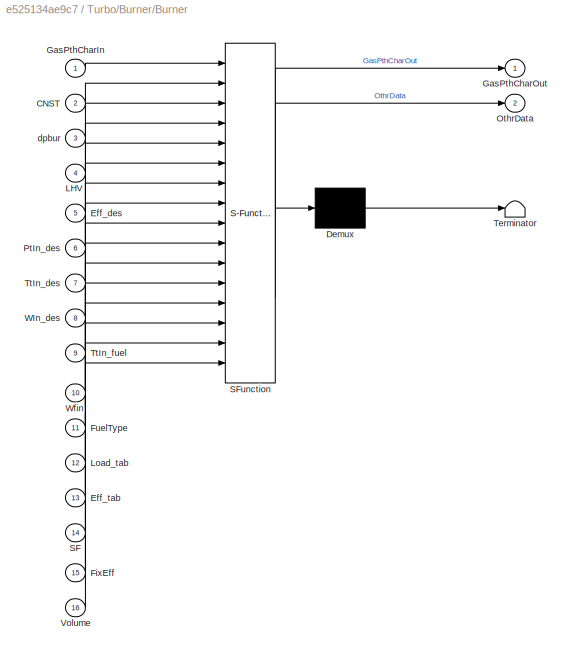
BLOCK [SubSystem] Turbo/Burner/Burner
  ErrorFcn = Stateflow.Translate.translate
  PermitHierarchicalResolution = ExplicitOnly
  Ports = [16, 2]
  RequestExecContextInheritance = off
  SFBlockType = MATLAB Function
  TreatAsAtomicUnit = on
BLOCK [Demux] Turbo/Burner/Burner/ Demux 
  Outputs = 1
  Ports = [1, 1]
BLOCK [S-Function] Turbo/Burner/Burner/ SFunction 
  EnableBusSupport = off
  FunctionName = sf_sfun
  PortCounts = [16 3]
  Ports = [16, 3]
  Tag = Stateflow S-Function GTMLE_Library 11
BLOCK [Terminator] Turbo/Burner/Burner/ Terminator 
BLOCK [Inport] Turbo/Burner/Burner/CNST
  IconDisplay = Port number
  Port = 2
BLOCK [Inport] Turbo/Burner/Burner/Eff_des
  IconDisplay = Port number
  Port = 5
BLOCK [Inport] Turbo/Burner/Burner/Eff_tab
  IconDisplay = Port number
  Port = 13
BLOCK [Inport] Turbo/Burner/Burner/FixEff
  IconDisplay = Port number
  Port = 15
BLOCK [Inport] Turbo/Burner/Burner/FuelType
  IconDisplay = Port number
  Port = 11
BLOCK [Inport] Turbo/Burner/Burner/GasPthCharIn
  IconDisplay = Port number
BLOCK [Outport] Turbo/Burner/Burner/GasPthCharOut
  IconDisplay = Port number
BLOCK [Inport] Turbo/Burner/Burner/LHV
  IconDisplay = Port number
  Port = 4
BLOCK [Inport] Turbo/Burner/Burner/Load_tab
  IconDisplay = Port number
  Port = 12
BLOCK [Outport] Turbo/Burner/Burner/OthrData
  IconDisplay = Port number
  Port = 2
BLOCK [Inport] Turbo/Burner/Burner/PtIn_des
  IconDisplay = Port number
  Port = 6
BLOCK [Inport] Turbo/Burner/Burner/SF
  IconDisplay = Port number
  Port = 14
BLOCK [Inport] Turbo/Burner/Burner/TtIn_des
  IconDisplay = Port number
  Port = 7
BLOCK [Inport] Turbo/Burner/Burner/TtIn_fuel
  IconDisplay = Port number
  Port = 9
BLOCK [Inport] Turbo/Burner/Burner/Volume
  IconDisplay = Port number
  Port = 16
BLOCK [Inport] Turbo/Burner/Burner/WIn_des
  IconDisplay = Port number
  Port = 8
BLOCK [Inport] Turbo/Burner/Burner/Wfin
  IconDisplay = Port number
  Port = 10
BLOCK [Inport] Turbo/Burner/Burner/dpbur
  IconDisplay = Port number
  Port = 3
BLOCK [BusCreator] Turbo/Burner/Bus Creator
  DisplayOption = bar
  Inputs = 5
  Ports = [5, 1]
BLOCK [Constant] Turbo/Burner/Constant
  Value = dpbur
BLOCK [Constant] Turbo/Burner/Constant1
  Value = LHV
BLOCK [Constant] Turbo/Burner/Constant10
  Value = FixEff
BLOCK [Constant] Turbo/Burner/Constant11
  Value = Volume
BLOCK [Constant] Turbo/Burner/Constant12
  Value = FuelType
BLOCK [Constant] Turbo/Burner/Constant2
  Value = Eff_des
BLOCK [Constant] Turbo/Burner/Constant3
  Value = CNST
BLOCK [Constant] Turbo/Burner/Constant4
  Value = WIn_des
BLOCK [Constant] Turbo/Burner/Constant5
  Value = TtIn_des
BLOCK [Constant] Turbo/Burner/Constant6
  Value = PtIn_des
BLOCK [Constant] Turbo/Burner/Constant7
  Value = TtIn_fuel
BLOCK [Constant] Turbo/Burner/Constant8
  Value = Load_tab
BLOCK [Constant] Turbo/Burner/Constant9
  Value = Eff_tab
BLOCK [Demux] Turbo/Burner/Demux1
  DisplayOption = bar
  Outputs = 5
  Ports = [1, 5]
BLOCK [Inport] Turbo/Burner/GasPthCharIn
  IconDisplay = Port number
BLOCK [Outport] Turbo/Burner/GasPthCharOut
  IconDisplay = Port number
BLOCK [Outport] Turbo/Burner/OthrData
  IconDisplay = Port number
  Port = 2
BLOCK [Inport] Turbo/Burner/ScalingFactors
  IconDisplay = Port number
  Port = 3
  PortDimensions = [2 1]
BLOCK [SubSystem] Turbo/Compressor
  Ports = [5, 7]
  RequestExecContextInheritance = off
BLOCK [Inport] Turbo/Compressor/<Nmech:rpm>
  IconDisplay = Port number
  Port = 2
BLOCK [Outport] Turbo/Compressor/<PwrOut:kW>
  IconDisplay = Port number
  Port = 2
BLOCK [Inport] Turbo/Compressor/Beta
  IconDisplay = Port number
  Port = 3
BLOCK [BusCreator] Turbo/Compressor/Bus Creator
  DisplayOption = bar
  Inputs = 5
  Ports = [5, 1]
BLOCK [Outport] Turbo/Compressor/CBlds
  IconDisplay = Port number
  Port = 5
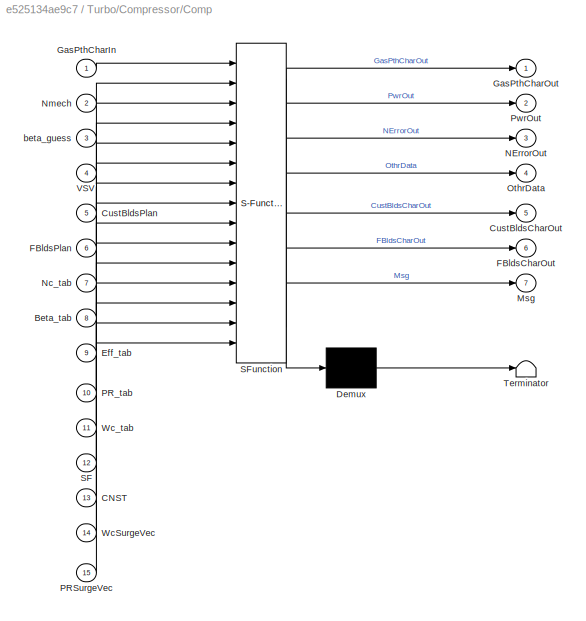
BLOCK [SubSystem] Turbo/Compressor/Comp
  ErrorFcn = Stateflow.Translate.translate
  PermitHierarchicalResolution = ExplicitOnly
  Ports = [15, 7]
  RequestExecContextInheritance = off
  SFBlockType = MATLAB Function
  TreatAsAtomicUnit = on
BLOCK [Demux] Turbo/Compressor/Comp/ Demux 
  Outputs = 1
  Ports = [1, 1]
BLOCK [S-Function] Turbo/Compressor/Comp/ SFunction 
  EnableBusSupport = off
  FunctionName = sf_sfun
  PortCounts = [15 8]
  Ports = [15, 8]
  Tag = Stateflow S-Function GTMLE_Library 1
BLOCK [Terminator] Turbo/Compressor/Comp/ Terminator 
BLOCK [Inport] Turbo/Compressor/Comp/Beta_tab
  IconDisplay = Port number
  Port = 8
BLOCK [Inport] Turbo/Compressor/Comp/CNST
  IconDisplay = Port number
  Port = 13
BLOCK [Outport] Turbo/Compressor/Comp/CustBldsCharOut
  IconDisplay = Port number
  Port = 5
BLOCK [Inport] Turbo/Compressor/Comp/CustBldsPlan
  IconDisplay = Port number
  Port = 5
BLOCK [Inport] Turbo/Compressor/Comp/Eff_tab
  IconDisplay = Port number
  Port = 9
BLOCK [Outport] Turbo/Compressor/Comp/FBldsCharOut
  IconDisplay = Port number
  Port = 6
BLOCK [Inport] Turbo/Compressor/Comp/FBldsPlan
  IconDisplay = Port number
  Port = 6
BLOCK [Inport] Turbo/Compressor/Comp/GasPthCharIn
  IconDisplay = Port number
BLOCK [Outport] Turbo/Compressor/Comp/GasPthCharOut
  IconDisplay = Port number
BLOCK [Outport] Turbo/Compressor/Comp/Msg
  IconDisplay = Port number
  Port = 7
BLOCK [Outport] Turbo/Compressor/Comp/NErrorOut
  IconDisplay = Port number
  Port = 3
BLOCK [Inport] Turbo/Compressor/Comp/Nc_tab
  IconDisplay = Port number
  Port = 7
BLOCK [Inport] Turbo/Compressor/Comp/Nmech
  IconDisplay = Port number
  Port = 2
BLOCK [Outport] Turbo/Compressor/Comp/OthrData
  IconDisplay = Port number
  Port = 4
BLOCK [Inport] Turbo/Compressor/Comp/PRSurgeVec
  IconDisplay = Port number
  Port = 15
BLOCK [Inport] Turbo/Compressor/Comp/PR_tab
  IconDisplay = Port number
  Port = 10
BLOCK [Outport] Turbo/Compressor/Comp/PwrOut
  IconDisplay = Port number
  Port = 2
BLOCK [Inport] Turbo/Compressor/Comp/SF
  IconDisplay = Port number
  Port = 12
BLOCK [Inport] Turbo/Compressor/Comp/VSV
  IconDisplay = Port number
  Port = 4
BLOCK [Inport] Turbo/Compressor/Comp/WcSurgeVec
  IconDisplay = Port number
  Port = 14
BLOCK [Inport] Turbo/Compressor/Comp/Wc_tab
  IconDisplay = Port number
  Port = 11
BLOCK [Inport] Turbo/Compressor/Comp/beta_guess
  IconDisplay = Port number
  Port = 3
BLOCK [Constant] Turbo/Compressor/Constant1
  Value = WcSurgeVec
BLOCK [Constant] Turbo/Compressor/Constant14
  Value = N_tab
BLOCK [Constant] Turbo/Compressor/Constant16
  Value = Eta_tab
BLOCK [Constant] Turbo/Compressor/Constant17
  Value = Pi_tab
BLOCK [Constant] Turbo/Compressor/Constant18
  Value = Wcor_tab
BLOCK [Constant] Turbo/Compressor/Constant2
  Value = PRSurgeVec
BLOCK [Constant] Turbo/Compressor/Constant4
  Value = Beta_tab
  VectorParams1D = off
BLOCK [Constant] Turbo/Compressor/Constant6
  Value = CNST
BLOCK [Constant] Turbo/Compressor/Constant7
  Value = CustBldsPlan
BLOCK [Constant] Turbo/Compressor/Constant8
  Value = FBldsPlan
BLOCK [Demux] Turbo/Compressor/Demux
  DisplayOption = bar
  Outputs = 5
  Ports = [1, 5]
BLOCK [Outport] Turbo/Compressor/Error
  IconDisplay = Port number
  Port = 3
BLOCK [Outport] Turbo/Compressor/FBlds
  IconDisplay = Port number
  Port = 6
BLOCK [Inport] Turbo/Compressor/GasPthCharIn
  IconDisplay = Port number
BLOCK [Outport] Turbo/Compressor/GasPthCharOut
  IconDisplay = Port number
BLOCK [Outport] Turbo/Compressor/Msg
  IconDisplay = Port number
  Port = 7
BLOCK [Outport] Turbo/Compressor/OthrData
  IconDisplay = Port number
  Port = 4
BLOCK [Inport] Turbo/Compressor/ScalingFactors
  IconDisplay = Port number
  Port = 5
  PortDimensions = [4 1]
BLOCK [Inport] Turbo/Compressor/VSV
  IconDisplay = Port number
  Port = 4
BLOCK [SubSystem] Turbo/Duct
  Ports = [2, 2]
  RequestExecContextInheritance = off
BLOCK [BusCreator] Turbo/Duct/Bus Creator
  DisplayOption = bar
  Inputs = 5
  Ports = [5, 1]
BLOCK [Constant] Turbo/Duct/Constant10
  Value = PtIn_des
BLOCK [Constant] Turbo/Duct/Constant12
  Value = sigma_des
BLOCK [Constant] Turbo/Duct/Constant3
  Value = CNST
BLOCK [Constant] Turbo/Duct/Constant8
  Value = WIn_des
BLOCK [Constant] Turbo/Duct/Constant9
  Value = TtIn_des
BLOCK [Demux] Turbo/Duct/Demux1
  DisplayOption = bar
  Outputs = 5
  Ports = [1, 5]
BLOCK [SubSystem] Turbo/Duct/Duct
  ErrorFcn = Stateflow.Translate.translate
  PermitHierarchicalResolution = ExplicitOnly
  Ports = [7, 2]
  RequestExecContextInheritance = off
  SFBlockType = MATLAB Function
  TreatAsAtomicUnit = on
BLOCK [Demux] Turbo/Duct/Duct/ Demux 
  Outputs = 1
  Ports = [1, 1]
BLOCK [S-Function] Turbo/Duct/Duct/ SFunction 
  EnableBusSupport = off
  FunctionName = sf_sfun
  PortCounts = [7 3]
  Ports = [7, 3]
  Tag = Stateflow S-Function GTMLE_Library 3
BLOCK [Terminator] Turbo/Duct/Duct/ Terminator 
BLOCK [Inport] Turbo/Duct/Duct/Blds
  IconDisplay = Port number
  Port = 7
BLOCK [Inport] Turbo/Duct/Duct/CNST
  IconDisplay = Port number
  Port = 2
BLOCK [Inport] Turbo/Duct/Duct/GasPthCharIn
  IconDisplay = Port number
BLOCK [Outport] Turbo/Duct/Duct/GasPthCharOut
  IconDisplay = Port number
BLOCK [Outport] Turbo/Duct/Duct/OthrData
  IconDisplay = Port number
  Port = 2
BLOCK [Inport] Turbo/Duct/Duct/PtIn_des
  IconDisplay = Port number
  Port = 3
BLOCK [Inport] Turbo/Duct/Duct/TtIn_des
  IconDisplay = Port number
  Port = 4
BLOCK [Inport] Turbo/Duct/Duct/WIn_des
  IconDisplay = Port number
  Port = 5
BLOCK [Inport] Turbo/Duct/Duct/sigma_des
  IconDisplay = Port number
  Port = 6
BLOCK [Inport] Turbo/Duct/GasBlds
  IconDisplay = Port number
  Port = 2
BLOCK [Inport] Turbo/Duct/GasPthCharIn
  IconDisplay = Port number
BLOCK [Outport] Turbo/Duct/GasPthCharOut
  IconDisplay = Port number
BLOCK [Outport] Turbo/Duct/OthrData
  IconDisplay = Port number
  Port = 2
BLOCK [SubSystem] Turbo/Fan
  Ports = [6, 6]
  RequestExecContextInheritance = off
BLOCK [Inport] Turbo/Fan/<Nmech:rpm>
  IconDisplay = Port number
  Port = 2
BLOCK [Outport] Turbo/Fan/<PwrOut:kW>
  IconDisplay = Port number
  Port = 3
BLOCK [Inport] Turbo/Fan/BPR
  IconDisplay = Port number
  Port = 3
BLOCK [Inport] Turbo/Fan/Betac
  IconDisplay = Port number
  Port = 5
BLOCK [Inport] Turbo/Fan/Betad
  IconDisplay = Port number
  Port = 4
BLOCK [BusCreator] Turbo/Fan/Bus Creator1
  DisplayOption = bar
  Inputs = 5
  Ports = [5, 1]
BLOCK [BusCreator] Turbo/Fan/Bus Creator2
  DisplayOption = bar
  Inputs = 5
  Ports = [5, 1]
BLOCK [BusCreator] Turbo/Fan/Bus Creator3
  DisplayOption = bar
  Inputs = 5
  Ports = [5, 1]
BLOCK [BusCreator] Turbo/Fan/Bus Creator4
  DisplayOption = bar
  Inputs = 5
  Ports = [5, 1]
BLOCK [BusSelector] Turbo/Fan/Bus Selector
  OutputSignals = WOut:kg/s,ht:J/kg,TtOut:K,PtOut:kPa,FARc:-
  Ports = [1, 5]
BLOCK [BusSelector] Turbo/Fan/Bus Selector1
  OutputSignals = WOut:kg/s,ht:J/kg,TtOut:K,PtOut:kPa,FARc:-
  Ports = [1, 5]
BLOCK [Constant] Turbo/Fan/Cf
  Value = Cf
BLOCK [Constant] Turbo/Fan/Cf1
  Value = 0
BLOCK [Constant] Turbo/Fan/Constant4
  Value = BPRdes
BLOCK [Demux] Turbo/Fan/Demux3
  DisplayOption = bar
  Outputs = 5
  Ports = [1, 5]
BLOCK [Outport] Turbo/Fan/Error_c
  IconDisplay = Port number
  Port = 5
BLOCK [Outport] Turbo/Fan/Error_d
  IconDisplay = Port number
  Port = 4
BLOCK [Reference] Turbo/Fan/Fanc  REF=GTMLE_Library/Turbo/Compressor
  Beta_tab = MCP.Fan_core.Beta_tab
  CNST = MCP.Fan.CNST
  CustBldsPlan = [0;0;0]
  Eta_tab = MCP.Fan_core.Eta_tab
  FBldsPlan = [0;0;0]
  N_tab = MCP.Fan_core.N_tab
  PRSurgeVec = MCP.Fan_core.PRSurgeVec
  Pi_tab = MCP.Fan_core.Pi_tab
  Ports = [5, 7]
  SourceBlock = GTMLE_Library/Turbo/Compressor
  WcSurgeVec = MCP.Fan_core.WcSurgeVec
  Wcor_tab = MCP.Fan_core.Wcor_tab
BLOCK [Reference] Turbo/Fan/Fand  REF=GTMLE_Library/Turbo/Compressor
  Beta_tab = MCP.Fan_exduct.Beta_tab
  CNST = MCP.Fan.CNST
  CustBldsPlan = [0;0;0]
  Eta_tab = MCP.Fan_exduct.Eta_tab
  FBldsPlan = [0;0;0]
  N_tab = MCP.Fan_exduct.N_tab
  PRSurgeVec = MCP.Fan_exduct.PRSurgeVec
  Pi_tab = MCP.Fan_exduct.Pi_tab
  Ports = [5, 7]
  SourceBlock = GTMLE_Library/Turbo/Compressor
  WcSurgeVec = MCP.Fan_exduct.WcSurgeVec
  Wcor_tab = MCP.Fan_exduct.Wcor_tab
BLOCK [Fcn] Turbo/Fan/Fcn
  Expr = 1/(1 + 1/u)
BLOCK [Inport] Turbo/Fan/GasPthCharIn
  IconDisplay = Port number
BLOCK [Outport] Turbo/Fan/GasPthCharOutCore
  IconDisplay = Port number
BLOCK [Outport] Turbo/Fan/GasPthCharOutDuct
  IconDisplay = Port number
  Port = 2
BLOCK [Outport] Turbo/Fan/OthrData
  IconDisplay = Port number
  Port = 6
BLOCK [Product] Turbo/Fan/Product
  InputSameDT = off
  OutDataTypeStr = Inherit: Inherit via internal rule
  Ports = [2, 1]
  RndMeth = Floor
  SaturateOnIntegerOverflow = off
BLOCK [Product] Turbo/Fan/Product1
  InputSameDT = off
  OutDataTypeStr = Inherit: Inherit via internal rule
  Ports = [2, 1]
  RndMeth = Floor
  SaturateOnIntegerOverflow = off
BLOCK [Constant] Turbo/Fan/SF_c
  Value = [1;1;1;1]
BLOCK [Inport] Turbo/Fan/ScalingFactors
  IconDisplay = Port number
  Port = 6
BLOCK [SubSystem] Turbo/Fan/Subsystem
  Ports = [3, 1]
  RequestExecContextInheritance = off
BLOCK [Sum] Turbo/Fan/Subsystem/Add1
  InputSameDT = off
  OutDataTypeStr = Inherit: Inherit via internal rule
  Ports = [2, 1]
  SaturateOnIntegerOverflow = off
BLOCK [Sum] Turbo/Fan/Subsystem/Add2
  InputSameDT = off
  OutDataTypeStr = Inherit: Inherit via internal rule
  Ports = [2, 1]
  SaturateOnIntegerOverflow = off
BLOCK [Sum] Turbo/Fan/Subsystem/Add3
  InputSameDT = off
  Inputs = -+
  OutDataTypeStr = Inherit: Inherit via internal rule
  Ports = [2, 1]
  SaturateOnIntegerOverflow = off
BLOCK [Inport] Turbo/Fan/Subsystem/BPR
  IconDisplay = Port number
  Port = 3
BLOCK [Inport] Turbo/Fan/Subsystem/BPRdes
  IconDisplay = Port number
BLOCK [Product] Turbo/Fan/Subsystem/Divide3
  InputSameDT = off
  Inputs = */
  OutDataTypeStr = Inherit: Inherit via internal rule
  Ports = [2, 1]
  RndMeth = Floor
  SaturateOnIntegerOverflow = off
BLOCK [Product] Turbo/Fan/Subsystem/Divide4
  InputSameDT = off
  Inputs = */
  OutDataTypeStr = Inherit: Inherit via internal rule
  Ports = [2, 1]
  RndMeth = Floor
  SaturateOnIntegerOverflow = off
BLOCK [Product] Turbo/Fan/Subsystem/Product
  InputSameDT = off
  OutDataTypeStr = Inherit: Inherit via internal rule
  Ports = [2, 1]
  RndMeth = Floor
  SaturateOnIntegerOverflow = off
BLOCK [Inport] Turbo/Fan/Subsystem/Wtot
  IconDisplay = Port number
  Port = 2
BLOCK [Constant] Turbo/Fan/Subsystem/const
BLOCK [Constant] Turbo/Fan/Subsystem/const1
BLOCK [Outport] Turbo/Fan/Subsystem/delta_mdBPR
  IconDisplay = Port number
BLOCK [Sum] Turbo/Fan/Sum1
  IconShape = round
  InputSameDT = off
  Inputs = ++|
  OutDataTypeStr = Inherit: Inherit via internal rule
  Ports = [2, 1]
  SaturateOnIntegerOverflow = off
BLOCK [Sum] Turbo/Fan/Sum2
  IconShape = round
  InputSameDT = off
  Inputs = |+-
  OutDataTypeStr = Inherit: Inherit via internal rule
  Ports = [2, 1]
  SaturateOnIntegerOverflow = off
BLOCK [Sum] Turbo/Fan/Sum3
  IconShape = round
  InputSameDT = off
  Inputs = +|+
  OutDataTypeStr = Inherit: Inherit via internal rule
  Ports = [2, 1]
  SaturateOnIntegerOverflow = off
BLOCK [Sum] Turbo/Fan/Sum6
  IconShape = round
  InputSameDT = off
  Inputs = -+|
  OutDataTypeStr = Inherit: Inherit via internal rule
  Ports = [2, 1]
  SaturateOnIntegerOverflow = off
BLOCK [Terminator] Turbo/Fan/Terminator10
BLOCK [Terminator] Turbo/Fan/Terminator2
BLOCK [Terminator] Turbo/Fan/Terminator3
BLOCK [Terminator] Turbo/Fan/Terminator4
BLOCK [Terminator] Turbo/Fan/Terminator5
BLOCK [Terminator] Turbo/Fan/Terminator6
BLOCK [Terminator] Turbo/Fan/Terminator7
BLOCK [Terminator] Turbo/Fan/Terminator8
BLOCK [Terminator] Turbo/Fan/Terminator9
BLOCK [SubSystem] Turbo/Heat Soakage
  Ports = [2, 2]
  RequestExecContextInheritance = off
  VariantControl = Variant1
BLOCK [BusCreator] Turbo/Heat Soakage/Bus Creator
  DisplayOption = bar
  Inputs = 5
  Ports = [5, 1]
BLOCK [BusSelector] Turbo/Heat Soakage/Bus Selector
  OutputSignals = WOut:kg/s,ht:J/kg,TtOut:K,PtOut:kPa,FARc:-
  Ports = [1, 5]
BLOCK [SubSystem] Turbo/Heat Soakage/Calc_K
  Ports = [1, 1]
  RequestExecContextInheritance = off
BLOCK [Constant] Turbo/Heat Soakage/Calc_K/Area
  Value = Aht
BLOCK [Constant] Turbo/Heat Soakage/Calc_K/Cp_des
  Value = Cpdes
BLOCK [Constant] Turbo/Heat Soakage/Calc_K/FCdes
  Value = FCdes
BLOCK [Constant] Turbo/Heat Soakage/Calc_K/FCdes1
  Value = Ck
BLOCK [Constant] Turbo/Heat Soakage/Calc_K/FCdes2
  Value = x-1
BLOCK [Constant] Turbo/Heat Soakage/Calc_K/FCdes3
  Value = x
BLOCK [Outport] Turbo/Heat Soakage/Calc_K/K
  IconDisplay = Port number
BLOCK [Math] Turbo/Heat Soakage/Calc_K/Math Function
  Operator = pow
  Ports = [2, 1]
BLOCK [Math] Turbo/Heat Soakage/Calc_K/Math Function1
  Operator = pow
  Ports = [2, 1]
BLOCK [Product] Turbo/Heat Soakage/Calc_K/Product
  InputSameDT = off
  Inputs = ****//
  OutDataTypeStr = Inherit: Inherit via internal rule
  Ports = [6, 1]
  RndMeth = Floor
  SaturateOnIntegerOverflow = off
BLOCK [Inport] Turbo/Heat Soakage/Calc_K/W
  IconDisplay = Port number
BLOCK [Constant] Turbo/Heat Soakage/Calc_K/Wdes
  Value = Wdes
BLOCK [SubSystem] Turbo/Heat Soakage/Calc_Tau_inv
  Ports = [3, 1]
  RequestExecContextInheritance = off
BLOCK [Constant] Turbo/Heat Soakage/Calc_Tau_inv/Cm
  Value = Cm
BLOCK [Inport] Turbo/Heat Soakage/Calc_Tau_inv/Cp
  IconDisplay = Port number
BLOCK [Constant] Turbo/Heat Soakage/Calc_Tau_inv/Ct
  Value = Ct
BLOCK [Inport] Turbo/Heat Soakage/Calc_Tau_inv/K
  IconDisplay = Port number
  Port = 2
BLOCK [Product] Turbo/Heat Soakage/Calc_Tau_inv/Product
  InputSameDT = off
  Inputs = ****//
  OutDataTypeStr = Inherit: Inherit via internal rule
  Ports = [6, 1]
  RndMeth = Floor
  SaturateOnIntegerOverflow = off
BLOCK [Outport] Turbo/Heat Soakage/Calc_Tau_inv/Tau_inv
  IconDisplay = Port number
BLOCK [Inport] Turbo/Heat Soakage/Calc_Tau_inv/W
  IconDisplay = Port number
  Port = 3
BLOCK [Constant] Turbo/Heat Soakage/Calc_Tau_inv/m
  Value = Mm
BLOCK [Constant] Turbo/Heat Soakage/Constant3
BLOCK [Inport] Turbo/Heat Soakage/GasPthCharIn
  IconDisplay = Port number
BLOCK [Outport] Turbo/Heat Soakage/GasPthCharOut
  IconDisplay = Port number
  Port = 2
BLOCK [SubSystem] Turbo/Heat Soakage/MATLAB Function
  ErrorFcn = Stateflow.Translate.translate
  PermitHierarchicalResolution = ExplicitOnly
  Ports = [2, 1]
  RequestExecContextInheritance = off
  SFBlockType = MATLAB Function
  TreatAsAtomicUnit = on
BLOCK [Demux] Turbo/Heat Soakage/MATLAB Function/ Demux 
  Outputs = 1
  Ports = [1, 1]
BLOCK [S-Function] Turbo/Heat Soakage/MATLAB Function/ SFunction 
  EnableBusSupport = on
  FunctionName = sf_sfun
  PortCounts = [2 2]
  Ports = [2, 2]
  Tag = Stateflow S-Function GTMLE_Library 14
BLOCK [Terminator] Turbo/Heat Soakage/MATLAB Function/ Terminator 
BLOCK [Outport] Turbo/Heat Soakage/MATLAB Function/Cp
  IconDisplay = Port number
BLOCK [Inport] Turbo/Heat Soakage/MATLAB Function/FARcIn
  IconDisplay = Port number
  Port = 2
BLOCK [Inport] Turbo/Heat Soakage/MATLAB Function/TtIn
  IconDisplay = Port number
BLOCK [Product] Turbo/Heat Soakage/Product
  InputSameDT = off
  OutDataTypeStr = Inherit: Inherit via internal rule
  Ports = [2, 1]
  RndMeth = Floor
  SaturateOnIntegerOverflow = off
BLOCK [Product] Turbo/Heat Soakage/Product1
  InputSameDT = off
  OutDataTypeStr = Inherit: Inherit via internal rule
  Ports = [2, 1]
  RndMeth = Floor
  SaturateOnIntegerOverflow = off
BLOCK [Product] Turbo/Heat Soakage/Product2
  InputSameDT = off
  OutDataTypeStr = Inherit: Inherit via internal rule
  Ports = [2, 1]
  RndMeth = Floor
  SaturateOnIntegerOverflow = off
BLOCK [Sum] Turbo/Heat Soakage/Sum
  IconShape = round
  InputSameDT = off
  Inputs = |+-
  OutDataTypeStr = Inherit: Inherit via internal rule
  Ports = [2, 1]
  SaturateOnIntegerOverflow = off
BLOCK [Sum] Turbo/Heat Soakage/Sum1
  IconShape = round
  InputSameDT = off
  Inputs = |++
  OutDataTypeStr = Inherit: Inherit via internal rule
  Ports = [2, 1]
  SaturateOnIntegerOverflow = off
BLOCK [Sum] Turbo/Heat Soakage/Sum2
  IconShape = round
  InputSameDT = off
  Inputs = |+-
  OutDataTypeStr = Inherit: Inherit via internal rule
  Ports = [2, 1]
  SaturateOnIntegerOverflow = off
BLOCK [Inport] Turbo/Heat Soakage/Tm
  IconDisplay = Port number
  Port = 2
BLOCK [Outport] Turbo/Heat Soakage/Tm_derivative
  IconDisplay = Port number
BLOCK [SubSystem] Turbo/Inlet
  Ports = [1, 1]
  RequestExecContextInheritance = off
BLOCK [BusCreator] Turbo/Inlet/Bus Creator
  DisplayOption = bar
  Inputs = 5
  Ports = [5, 1]
BLOCK [Demux] Turbo/Inlet/Demux
  DisplayOption = bar
  Outputs = 5
  Ports = [1, 5]
BLOCK [Gain] Turbo/Inlet/Gain
  Gain = sigma_inlet_des
  OutDataTypeStr = Inherit: Inherit via internal rule
  ParamDataTypeStr = Inherit: Inherit via internal rule
  SaturateOnIntegerOverflow = off
BLOCK [Inport] Turbo/Inlet/GasPthCharIn
  IconDisplay = Port number
BLOCK [Outport] Turbo/Inlet/GasPthCharOut
  IconDisplay = Port number
BLOCK [SubSystem] Turbo/Mixer
  Ports = [2, 4]
  RequestExecContextInheritance = off
BLOCK [Outport] Turbo/Mixer/<W2Calc:kg//s>
  IconDisplay = Port number
  Port = 3
BLOCK [Constant] Turbo/Mixer/Constant
  Value = Ades1
BLOCK [Constant] Turbo/Mixer/Constant1
  Value = Ades2
BLOCK [Outport] Turbo/Mixer/Error
  IconDisplay = Port number
  Port = 2
BLOCK [Inport] Turbo/Mixer/GasPthCharCore
  IconDisplay = Port number
BLOCK [Inport] Turbo/Mixer/GasPthCharDuct
  IconDisplay = Port number
  Port = 2
BLOCK [Outport] Turbo/Mixer/GasPthCharOut
  IconDisplay = Port number
BLOCK [SubSystem] Turbo/Mixer/Mixer
  ErrorFcn = Stateflow.Translate.translate
  PermitHierarchicalResolution = ExplicitOnly
  Ports = [4, 4]
  RequestExecContextInheritance = off
  SFBlockType = MATLAB Function
  TreatAsAtomicUnit = on
BLOCK [Demux] Turbo/Mixer/Mixer/ Demux 
  Outputs = 1
  Ports = [1, 1]
BLOCK [S-Function] Turbo/Mixer/Mixer/ SFunction 
  EnableBusSupport = off
  FunctionName = sf_sfun
  PortCounts = [4 5]
  Ports = [4, 5]
  Tag = Stateflow S-Function GTMLE_Library 20
BLOCK [Terminator] Turbo/Mixer/Mixer/ Terminator 
BLOCK [Inport] Turbo/Mixer/Mixer/Adesign1
  IconDisplay = Port number
  Port = 3
BLOCK [Inport] Turbo/Mixer/Mixer/Adesign2
  IconDisplay = Port number
  Port = 4
BLOCK [Outport] Turbo/Mixer/Mixer/Error
  IconDisplay = Port number
  Port = 2
BLOCK [Inport] Turbo/Mixer/Mixer/GasPthCharInp
  IconDisplay = Port number
BLOCK [Inport] Turbo/Mixer/Mixer/GasPthCharIns
  IconDisplay = Port number
  Port = 2
BLOCK [Outport] Turbo/Mixer/Mixer/GasPthCharOut
  IconDisplay = Port number
BLOCK [Outport] Turbo/Mixer/Mixer/Msg
  IconDisplay = Port number
  Port = 4
BLOCK [Outport] Turbo/Mixer/Mixer/OthrData
  IconDisplay = Port number
  Port = 3
BLOCK [Outport] Turbo/Mixer/Msg
  IconDisplay = Port number
  Port = 4
BLOCK [SubSystem] Turbo/Nozzle
  Ports = [3, 5]
  RequestExecContextInheritance = off
BLOCK [Inport] Turbo/Nozzle/<AIn:m^2>
  IconDisplay = Port number
  Port = 3
BLOCK [Outport] Turbo/Nozzle/<FgOut:N>
  IconDisplay = Port number
  Port = 2
BLOCK [Inport] Turbo/Nozzle/<PambIn:kPa>
  IconDisplay = Port number
  Port = 2
BLOCK [Outport] Turbo/Nozzle/<WOut:kg//s>
  IconDisplay = Port number
BLOCK [Constant] Turbo/Nozzle/Constant1
  Value = CD
BLOCK [Constant] Turbo/Nozzle/Constant3
  Value = CX
BLOCK [Constant] Turbo/Nozzle/Constant5
  Value = CV
BLOCK [Outport] Turbo/Nozzle/Error
  IconDisplay = Port number
  Port = 3
BLOCK [Inport] Turbo/Nozzle/GasPthCharIn
  IconDisplay = Port number
BLOCK [Outport] Turbo/Nozzle/Msg
  IconDisplay = Port number
  Port = 5
BLOCK [SubSystem] Turbo/Nozzle/Nozzle
  ErrorFcn = Stateflow.Translate.translate
  PermitHierarchicalResolution = ExplicitOnly
  Ports = [6, 5]
  RequestExecContextInheritance = off
  SFBlockType = MATLAB Function
  TreatAsAtomicUnit = on
BLOCK [Demux] Turbo/Nozzle/Nozzle/ Demux 
  Outputs = 1
  Ports = [1, 1]
BLOCK [S-Function] Turbo/Nozzle/Nozzle/ SFunction 
  EnableBusSupport = off
  FunctionName = sf_sfun
  PortCounts = [6 6]
  Ports = [6, 6]
  Tag = Stateflow S-Function GTMLE_Library 12
BLOCK [Terminator] Turbo/Nozzle/Nozzle/ Terminator 
BLOCK [Inport] Turbo/Nozzle/Nozzle/AthroatIn
  IconDisplay = Port number
  Port = 3
BLOCK [Inport] Turbo/Nozzle/Nozzle/CV
  IconDisplay = Port number
  Port = 5
BLOCK [Inport] Turbo/Nozzle/Nozzle/CX
  IconDisplay = Port number
  Port = 6
BLOCK [Inport] Turbo/Nozzle/Nozzle/Cdth
  IconDisplay = Port number
  Port = 4
BLOCK [Outport] Turbo/Nozzle/Nozzle/FgOut
  IconDisplay = Port number
  Port = 2
BLOCK [Inport] Turbo/Nozzle/Nozzle/GasPthCharIn
  IconDisplay = Port number
BLOCK [Outport] Turbo/Nozzle/Nozzle/Msg
  IconDisplay = Port number
  Port = 5
BLOCK [Outport] Turbo/Nozzle/Nozzle/NErrorOut
  IconDisplay = Port number
  Port = 3
BLOCK [Outport] Turbo/Nozzle/Nozzle/OthrData
  IconDisplay = Port number
  Port = 4
BLOCK [Inport] Turbo/Nozzle/Nozzle/PambIn
  IconDisplay = Port number
  Port = 2
BLOCK [Outport] Turbo/Nozzle/Nozzle/WOut
  IconDisplay = Port number
BLOCK [Outport] Turbo/Nozzle/OthrData
  IconDisplay = Port number
  Port = 4
BLOCK [SubSystem] Turbo/Shaft
  Ports = [3, 1]
  RequestExecContextInheritance = off
BLOCK [Inport] Turbo/Shaft/<Nmech:rpm>
  IconDisplay = Port number
  Port = 3
BLOCK [Inport] Turbo/Shaft/<PowerC:kW>
  IconDisplay = Port number
BLOCK [Inport] Turbo/Shaft/<PowerT:kW>
  IconDisplay = Port number
  Port = 2
BLOCK [Product] Turbo/Shaft/Divide1
  InputSameDT = off
  Inputs = */
  OutDataTypeStr = Inherit: Inherit via internal rule
  Ports = [2, 1]
  RndMeth = Floor
  SaturateOnIntegerOverflow = off
BLOCK [Gain] Turbo/Shaft/Gain1
  Gain = 1/eta
  OutDataTypeStr = Inherit: Inherit via internal rule
  ParamDataTypeStr = Inherit: Inherit via internal rule
  SaturateOnIntegerOverflow = off
BLOCK [Gain] Turbo/Shaft/Gain3
  Gain = 1000
  OutDataTypeStr = Inherit: Inherit via internal rule
  ParamDataTypeStr = Inherit: Inherit via internal rule
  SaturateOnIntegerOverflow = off
BLOCK [Gain] Turbo/Shaft/Gain4
  Gain = (pi/30)^2
  OutDataTypeStr = Inherit: Inherit via internal rule
  ParamDataTypeStr = Inherit: Inherit via internal rule
  SaturateOnIntegerOverflow = off
BLOCK [Constant] Turbo/Shaft/J
  Value = J
BLOCK [Mux] Turbo/Shaft/Mux
  DisplayOption = bar
  Inputs = 2
  Ports = [2, 1]
BLOCK [Outport] Turbo/Shaft/N_dot
  IconDisplay = Port number
BLOCK [Product] Turbo/Shaft/Product1
  InputSameDT = off
  OutDataTypeStr = Inherit: Inherit via internal rule
  Ports = [2, 1]
  RndMeth = Floor
  SaturateOnIntegerOverflow = off
BLOCK [Sum] Turbo/Shaft/Sum of Elements
  InputSameDT = off
  Inputs = +
  OutDataTypeStr = Inherit: Inherit via internal rule
  Ports = [1, 1]
  SaturateOnIntegerOverflow = off
BLOCK [SubSystem] Turbo/Turbine
  Ports = [5, 5]
  RequestExecContextInheritance = off
BLOCK [Inport] Turbo/Turbine/<Nmech:rpm>
  IconDisplay = Port number
  Port = 3
BLOCK [Outport] Turbo/Turbine/<PwrOut:kW>
  IconDisplay = Port number
  Port = 2
BLOCK [BusCreator] Turbo/Turbine/Bus Creator
  DisplayOption = bar
  Inputs = 5
  Ports = [5, 1]
BLOCK [Constant] Turbo/Turbine/Constant12
  Value = FuelType
BLOCK [Constant] Turbo/Turbine/Constant14
  Value = N_tab
BLOCK [Constant] Turbo/Turbine/Constant16
  Value = Eta_tab
BLOCK [Constant] Turbo/Turbine/Constant17
  Value = Pi_tab
BLOCK [Constant] Turbo/Turbine/Constant18
  Value = Wcor_tab
BLOCK [Constant] Turbo/Turbine/Constant6
  Value = CNST
BLOCK [Constant] Turbo/Turbine/Constant8
  Value = CoolingPlan
BLOCK [Inport] Turbo/Turbine/CoolingFlwCharIn
  IconDisplay = Port number
BLOCK [Demux] Turbo/Turbine/Demux
  DisplayOption = bar
  Outputs = 5
  Ports = [1, 5]
BLOCK [Outport] Turbo/Turbine/Error
  IconDisplay = Port number
  Port = 3
BLOCK [Inport] Turbo/Turbine/GasPthCharIn
  IconDisplay = Port number
  Port = 2
BLOCK [Outport] Turbo/Turbine/GasPthCharOut
  IconDisplay = Port number
BLOCK [Outport] Turbo/Turbine/Msg
  IconDisplay = Port number
  Port = 5
BLOCK [Outport] Turbo/Turbine/OthrData
  IconDisplay = Port number
  Port = 4
BLOCK [Inport] Turbo/Turbine/Pi
  IconDisplay = Port number
  Port = 4
BLOCK [Inport] Turbo/Turbine/ScalingFactors
  IconDisplay = Port number
  Port = 5
  PortDimensions = [4 1]
BLOCK [SubSystem] Turbo/Turbine/Turb
  ErrorFcn = Stateflow.Translate.translate
  PermitHierarchicalResolution = ExplicitOnly
  Ports = [12, 5]
  RequestExecContextInheritance = off
  SFBlockType = MATLAB Function
  TreatAsAtomicUnit = on
BLOCK [Demux] Turbo/Turbine/Turb/ Demux 
  Outputs = 1
  Ports = [1, 1]
BLOCK [S-Function] Turbo/Turbine/Turb/ SFunction 
  EnableBusSupport = off
  FunctionName = sf_sfun
  PortCounts = [12 6]
  Ports = [12, 6]
  Tag = Stateflow S-Function GTMLE_Library 2
BLOCK [Terminator] Turbo/Turbine/Turb/ Terminator 
BLOCK [Inport] Turbo/Turbine/Turb/CNST
  IconDisplay = Port number
  Port = 11
BLOCK [Inport] Turbo/Turbine/Turb/CoolingFlwCharIn
  IconDisplay = Port number
BLOCK [Inport] Turbo/Turbine/Turb/CoolingPlan
  IconDisplay = Port number
  Port = 5
BLOCK [Inport] Turbo/Turbine/Turb/Eff_tab
  IconDisplay = Port number
  Port = 7
BLOCK [Inport] Turbo/Turbine/Turb/FuelType
  IconDisplay = Port number
  Port = 12
BLOCK [Inport] Turbo/Turbine/Turb/GasPthCharIn
  IconDisplay = Port number
  Port = 2
BLOCK [Outport] Turbo/Turbine/Turb/GasPthCharOut
  IconDisplay = Port number
BLOCK [Outport] Turbo/Turbine/Turb/Msg
  IconDisplay = Port number
  Port = 5
BLOCK [Outport] Turbo/Turbine/Turb/NErrorOut
  IconDisplay = Port number
  Port = 3
BLOCK [Inport] Turbo/Turbine/Turb/Nc_tab
  IconDisplay = Port number
  Port = 6
BLOCK [Inport] Turbo/Turbine/Turb/Nmech
  IconDisplay = Port number
  Port = 3
BLOCK [Outport] Turbo/Turbine/Turb/OthrData
  IconDisplay = Port number
  Port = 4
BLOCK [Inport] Turbo/Turbine/Turb/PR
  IconDisplay = Port number
  Port = 4
BLOCK [Inport] Turbo/Turbine/Turb/PR_tab
  IconDisplay = Port number
  Port = 8
BLOCK [Outport] Turbo/Turbine/Turb/PwrOut
  IconDisplay = Port number
  Port = 2
BLOCK [Inport] Turbo/Turbine/Turb/SF
  IconDisplay = Port number
  Port = 10
BLOCK [Inport] Turbo/Turbine/Turb/Wc_tab
  IconDisplay = Port number
  Port = 9
BLOCK [SubSystem] to be continued
  Ports = []
  RequestExecContextInheritance = off
ANNOTATION Control/Acc N1dot/PI1: N2cor_ID =[55.8479 83.2033 91.9119 100.6394]
ANNOTATION Control/Acc N1dot/PI1: a set of PI controllers 1 Kp1 =[ 0.00106 0.00132 0.00164 0.00169] Ki1= [0.084318 0.072307 0.088504 0.13479]
ANNOTATION Control/Acc N1dot/PI1: a set of PI controllers 2 Kp2 = [0.0002348 0.0002 0.000186 0.000117] Ki2 = [0.013223 0.011745 0.011745 0.0087]
ANNOTATION Control/Acc N1dot/PI1: a set of PI controllers 3 Kp3 = [7.8e-06 7.02e-06 6.084e-06 4.524e-06] Ki3 = [0.00065938 0.0028 0.0032 0.0036]
ANNOTATION Control/anti_windup: This block is for anti_windup. Flag is for set point control, and the value of 1 represents to freeze the integral term, 0 to unfreeze the integral term. Flag2 is for acc. of N2dot control, and the value of 0 represents to freeze the integral term, 1 to unfreeze the integral term Flag3 is for dec. of N2dot control, and the value of 0 represents to freeze the integral term, 1 to unfreeze the integr...<+7ch>
ANNOTATION Effectors/Iterative NR Solver w JacobianCalc: Note: During Building JC calc block will generally run before the plant, while the NR block will generally run after the plant
ANNOTATION Effectors/Iterative NR Solver w JacobianCalc/JC w Reset: Reset Jacobian Calculator after SJacobianAttempts_M
ANNOTATION Effectors/Iterative NR Solver w JacobianCalc/NRwCond: Enable NR when conditions are not met and Jacobian Calculator is not active
ANNOTATION Turbo/Ambient: K
ANNOTATION Turbo/Ambient: m/s
ANNOTATION Turbo/Burner: kPa
ANNOTATION Turbo/Heat Soakage/Calc_K: Cp_des-J/kg/K Wdes-kg/s
ANNOTATION Turbo/Heat Soakage/Calc_K: K = Ck\timesFCdes\timesAht\timesW^{x-1} \div (Cp_{des}\timesWdes^{x})
ANNOTATION Turbo/Heat Soakage/Calc_K: Station 31: 1087.2 15.844
ANNOTATION Turbo/Heat Soakage/Calc_K: Station 3: 1087.2 19.960
ANNOTATION Turbo/Heat Soakage/Calc_K: Station 41: 1208 19.333
ANNOTATION Turbo/Heat Soakage/Calc_K: Station 45: 1156.1 20.671
ANNOTATION Turbo/Heat Soakage/Calc_K: Station 4: 1220 16.247
ANNOTATION Turbo/Heat Soakage/Calc_K: Station 5: 1078.8 21.238
ANNOTATION Turbo/Heat Soakage/Calc_Tau_inv: Tau_{inv} = 1/\tau = Ct\timesCp\timesK\timesW \div (Mm\timesCm)
LINE Control/ABControl/Divide:1 -> Control/ABControl/Product:1
LINE Control/ABControl/P2:1 -> Control/ABControl/Subsystem:2
LINE Control/ABControl/PLA:1 -> Control/ABControl/Saturation:1
LINE Control/ABControl/PLA_MAX:1 -> Control/ABControl/Sum1:2
NET Control/ABControl/PLA_TO:1 -> Control/ABControl/Sum1:1, Control/ABControl/Sum:2
LINE Control/ABControl/Product:1 -> Control/ABControl/Wf_ab:1
LINE Control/ABControl/Saturation:1 -> Control/ABControl/Sum:1
LINE Control/ABControl/Subsystem/Constant:1 -> Control/ABControl/Subsystem/Demux:1
LINE Control/ABControl/Subsystem/Demux:1 -> Control/ABControl/Subsystem/Divide:2
LINE Control/ABControl/Subsystem/Demux:2 -> Control/ABControl/Subsystem/Divide1:1
LINE Control/ABControl/Subsystem/Divide1:1 -> Control/ABControl/Subsystem/Sqrt:1
LINE Control/ABControl/Subsystem/Divide:1 -> Control/ABControl/Subsystem/Product:2
LINE Control/ABControl/Subsystem/P2:1 -> Control/ABControl/Subsystem/Divide:1
LINE Control/ABControl/Subsystem/Product:1 -> Control/ABControl/Subsystem/Wfmaxcor:1
LINE Control/ABControl/Subsystem/Sqrt:1 -> Control/ABControl/Subsystem/Product:3
LINE Control/ABControl/Subsystem/T2:1 -> Control/ABControl/Subsystem/Divide1:2
LINE Control/ABControl/Subsystem/Wfmax:1 -> Control/ABControl/Subsystem/Product:1
LINE Control/ABControl/Subsystem:1 -> Control/ABControl/Product:2
LINE Control/ABControl/Sum1:1 -> Control/ABControl/Divide:2
LINE Control/ABControl/Sum:1 -> Control/ABControl/Divide:1
LINE Control/ABControl/T2:1 -> Control/ABControl/Subsystem:3
LINE Control/ABControl/Wf_max:1 -> Control/ABControl/Subsystem:1
LINE Control/Acc N1dot/Flag:1 -> Control/Acc N1dot/PI1:2
LINE Control/Acc N1dot/N1:1 -> Control/Acc N1dot/PI1:3
LINE Control/Acc N1dot/N2:1 -> Control/Acc N1dot/throttle plan:1
NET Control/Acc N1dot/P2:1 -> Control/Acc N1dot/PI1:5, Control/Acc N1dot/throttle plan:2
LINE Control/Acc N1dot/PI1/Add:1 -> Control/Acc N1dot/PI1/Wf ndot:1
LINE Control/Acc N1dot/PI1/Constant:1 -> Control/Acc N1dot/PI1/Switch:3
LINE Control/Acc N1dot/PI1/Flag:1 -> Control/Acc N1dot/PI1/Switch:2
LINE Control/Acc N1dot/PI1/Integrator:1 -> Control/Acc N1dot/PI1/Add:2
LINE Control/Acc N1dot/PI1/Kp_cor to Kp/Fcn:1 -> Control/Acc N1dot/PI1/Kp_cor to Kp/Kp:1
LINE Control/Acc N1dot/PI1/Kp_cor to Kp/Kp_cor:1 -> Control/Acc N1dot/PI1/Kp_cor to Kp/Mux:1
LINE Control/Acc N1dot/PI1/Kp_cor to Kp/Mux:1 -> Control/Acc N1dot/PI1/Kp_cor to Kp/Fcn:1
LINE Control/Acc N1dot/PI1/Kp_cor to Kp/T2:1 -> Control/Acc N1dot/PI1/Kp_cor to Kp/Mux:2
LINE Control/Acc N1dot/PI1/Kp_cor to Kp:1 -> Control/Acc N1dot/PI1/Product:1
LINE Control/Acc N1dot/PI1/Lookup Table Ki:1 -> Control/Acc N1dot/PI1/correcting:1
LINE Control/Acc N1dot/PI1/Lookup Table Kp:1 -> Control/Acc N1dot/PI1/Kp_cor to Kp:1
LINE Control/Acc N1dot/PI1/N1:1 -> Control/Acc N1dot/PI1/N1_cor:1
LINE Control/Acc N1dot/PI1/N1_cor/N1:1 -> Control/Acc N1dot/PI1/N1_cor/N1_cor:1
LINE Control/Acc N1dot/PI1/N1_cor/N1_cor:1 -> Control/Acc N1dot/PI1/N1_cor/N1cor:1
LINE Control/Acc N1dot/PI1/N1_cor/T2:1 -> Control/Acc N1dot/PI1/N1_cor/N1_cor:2
NET Control/Acc N1dot/PI1/N1_cor:1 -> Control/Acc N1dot/PI1/Lookup Table Ki:1, Control/Acc N1dot/PI1/Lookup Table Kp:1
LINE Control/Acc N1dot/PI1/P2:1 -> Control/Acc N1dot/PI1/correcting:2
LINE Control/Acc N1dot/PI1/Product1:1 -> Control/Acc N1dot/PI1/Switch:1
LINE Control/Acc N1dot/PI1/Product:1 -> Control/Acc N1dot/PI1/Add:1
LINE Control/Acc N1dot/PI1/Switch:1 -> Control/Acc N1dot/PI1/Integrator:1
NET Control/Acc N1dot/PI1/T2:1 -> Control/Acc N1dot/PI1/Kp_cor to Kp:2, Control/Acc N1dot/PI1/N1_cor:2
LINE Control/Acc N1dot/PI1/Wf_initial:1 -> Control/Acc N1dot/PI1/Integrator:2
LINE Control/Acc N1dot/PI1/correcting/Fcn1:1 -> Control/Acc N1dot/PI1/correcting/Ki:1
LINE Control/Acc N1dot/PI1/correcting/Kicor:1 -> Control/Acc N1dot/PI1/correcting/Mux1:1
LINE Control/Acc N1dot/PI1/correcting/Mux1:1 -> Control/Acc N1dot/PI1/correcting/Fcn1:1
LINE Control/Acc N1dot/PI1/correcting/P2:1 -> Control/Acc N1dot/PI1/correcting/Mux1:2
LINE Control/Acc N1dot/PI1/correcting:1 -> Control/Acc N1dot/PI1/Product1:1
NET Control/Acc N1dot/PI1/y:1 -> Control/Acc N1dot/PI1/Product1:2, Control/Acc N1dot/PI1/Product:2
LINE Control/Acc N1dot/PI1:1 -> Control/Acc N1dot/WF_acc:1
NET Control/Acc N1dot/T2:1 -> Control/Acc N1dot/PI1:6, Control/Acc N1dot/throttle plan:3
LINE Control/Acc N1dot/Wf_initial:1 -> Control/Acc N1dot/PI1:4
LINE Control/Acc N1dot/throttle plan/Discrete Derivative:1 -> Control/Acc N1dot/throttle plan/Saturation:1
NET Control/Acc N1dot/throttle plan/N2:1 -> Control/Acc N1dot/throttle plan/Discrete Derivative:1, Control/Acc N1dot/throttle plan/N2_cor:1
LINE Control/Acc N1dot/throttle plan/N2_cor/Fcn:1 -> Control/Acc N1dot/throttle plan/N2_cor/N2cor:1
LINE Control/Acc N1dot/throttle plan/N2_cor/Mux:1 -> Control/Acc N1dot/throttle plan/N2_cor/Fcn:1
LINE Control/Acc N1dot/throttle plan/N2_cor/N2:1 -> Control/Acc N1dot/throttle plan/N2_cor/Mux:1
LINE Control/Acc N1dot/throttle plan/N2_cor/T2:1 -> Control/Acc N1dot/throttle plan/N2_cor/Mux:2
LINE Control/Acc N1dot/throttle plan/N2_cor:1 -> Control/Acc N1dot/throttle plan/Ndot_acc:1
LINE Control/Acc N1dot/throttle plan/N2dot_cor/Fcn1:1 -> Control/Acc N1dot/throttle plan/N2dot_cor/N2dot:1
LINE Control/Acc N1dot/throttle plan/N2dot_cor/Mux:1 -> Control/Acc N1dot/throttle plan/N2dot_cor/Fcn1:1
LINE Control/Acc N1dot/throttle plan/N2dot_cor/N2dotcor:1 -> Control/Acc N1dot/throttle plan/N2dot_cor/Mux:1
LINE Control/Acc N1dot/throttle plan/N2dot_cor/P2:1 -> Control/Acc N1dot/throttle plan/N2dot_cor/Mux:2
LINE Control/Acc N1dot/throttle plan/N2dot_cor:1 -> Control/Acc N1dot/throttle plan/Sum:1
LINE Control/Acc N1dot/throttle plan/Ndot_acc:1 -> Control/Acc N1dot/throttle plan/N2dot_cor:1
LINE Control/Acc N1dot/throttle plan/P2:1 -> Control/Acc N1dot/throttle plan/N2_cor:2
LINE Control/Acc N1dot/throttle plan/Saturation:1 -> Control/Acc N1dot/throttle plan/Transfer Fcn:1
NET Control/Acc N1dot/throttle plan/Sum:1 -> Control/Acc N1dot/throttle plan/ err_N2dot:1, Control/Acc N1dot/throttle plan/Scope:1
LINE Control/Acc N1dot/throttle plan/T2:1 -> Control/Acc N1dot/throttle plan/N2dot_cor:2
LINE Control/Acc N1dot/throttle plan/Transfer Fcn:1 -> Control/Acc N1dot/throttle plan/Sum:2
LINE Control/Acc N1dot/throttle plan:1 -> Control/Acc N1dot/PI1:1
LINE Control/Acc Plan/1-D Lookup Table:1 -> Control/Acc Plan/Divide:1
LINE Control/Acc Plan/Divide:1 -> Control/Acc Plan/Product1:1
LINE Control/Acc Plan/Gain:1 -> Control/Acc Plan/Product1:2
LINE Control/Acc Plan/N2:1 -> Control/Acc Plan/Product:1
LINE Control/Acc Plan/Product1:1 -> Control/Acc Plan/Wfacc:1
LINE Control/Acc Plan/Product:1 -> Control/Acc Plan/1-D Lookup Table:1
LINE Control/Acc Plan/Ps3:1 -> Control/Acc Plan/Gain:1
LINE Control/Acc Plan/T2:1 -> Control/Acc Plan/a:1
NET Control/Acc Plan/a:1 -> Control/Acc Plan/Divide:2, Control/Acc Plan/Product:2
LINE Control/Static Control/ /Add:1 -> Control/Static Control/ /Wf:1
LINE Control/Static Control/ /Constant:1 -> Control/Static Control/ /Switch:1
LINE Control/Static Control/ /Flag:1 -> Control/Static Control/ /Switch:2
LINE Control/Static Control/ /Integrator1:1 -> Control/Static Control/ /Add:2
LINE Control/Static Control/ /Ki_cor to Ki/Fcn1:1 -> Control/Static Control/ /Ki_cor to Ki/Ki:1
LINE Control/Static Control/ /Ki_cor to Ki/Ki_cor:1 -> Control/Static Control/ /Ki_cor to Ki/Mux1:1
LINE Control/Static Control/ /Ki_cor to Ki/Mux1:1 -> Control/Static Control/ /Ki_cor to Ki/Fcn1:1
LINE Control/Static Control/ /Ki_cor to Ki/P2:1 -> Control/Static Control/ /Ki_cor to Ki/Mux1:2
LINE Control/Static Control/ /Ki_cor to Ki:1 -> Control/Static Control/ /Product1:2
LINE Control/Static Control/ /Kp_cor to Kp/Fcn:1 -> Control/Static Control/ /Kp_cor to Kp/Kp:1
LINE Control/Static Control/ /Kp_cor to Kp/Kp_cor:1 -> Control/Static Control/ /Kp_cor to Kp/Mux:1
LINE Control/Static Control/ /Kp_cor to Kp/Mux:1 -> Control/Static Control/ /Kp_cor to Kp/Fcn:1
LINE Control/Static Control/ /Kp_cor to Kp/T2:1 -> Control/Static Control/ /Kp_cor to Kp/Mux:2
LINE Control/Static Control/ /Kp_cor to Kp:1 -> Control/Static Control/ /Product:1
LINE Control/Static Control/ /Lookup Table Ki:1 -> Control/Static Control/ /Ki_cor to Ki:1
LINE Control/Static Control/ /Lookup Table Kp:1 -> Control/Static Control/ /Kp_cor to Kp:1
LINE Control/Static Control/ /N1:1 -> Control/Static Control/ /N1_cor:1
LINE Control/Static Control/ /N1_cor/Fcn:1 -> Control/Static Control/ /N1_cor/N1cor:1
LINE Control/Static Control/ /N1_cor/Mux:1 -> Control/Static Control/ /N1_cor/Fcn:1
LINE Control/Static Control/ /N1_cor/N1:1 -> Control/Static Control/ /N1_cor/Mux:1
LINE Control/Static Control/ /N1_cor/T2:1 -> Control/Static Control/ /N1_cor/Mux:2
NET Control/Static Control/ /N1_cor:1 -> Control/Static Control/ /Lookup Table Ki:1, Control/Static Control/ /Lookup Table Kp:1
NET Control/Static Control/ /N1_eer:1 -> Control/Static Control/ /Product1:1, Control/Static Control/ /Product:2
LINE Control/Static Control/ /P2:1 -> Control/Static Control/ /Ki_cor to Ki:2
LINE Control/Static Control/ /Product1:1 -> Control/Static Control/ /Switch:3
LINE Control/Static Control/ /Product:1 -> Control/Static Control/ /Add:1
LINE Control/Static Control/ /Switch:1 -> Control/Static Control/ /Integrator1:1
NET Control/Static Control/ /T2:1 -> Control/Static Control/ /Kp_cor to Kp:2, Control/Static Control/ /N1_cor:2
LINE Control/Static Control/ /Wf_initial:1 -> Control/Static Control/ /Integrator1:2
LINE Control/Static Control/ :1 -> Control/Static Control/Wfs:1
LINE Control/Static Control/Flag:1 -> Control/Static Control/ :6
NET Control/Static Control/N1:1 -> Control/Static Control/ :2, Control/Static Control/Display1:1, Control/Static Control/Sum:2
LINE Control/Static Control/N1_cor/Mux4:1 -> Control/Static Control/N1_cor/N1cor to N1:1
LINE Control/Static Control/N1_cor/N1cor to N1:1 -> Control/Static Control/N1_cor/N1:1
LINE Control/Static Control/N1_cor/N1cor:1 -> Control/Static Control/N1_cor/Mux4:1
LINE Control/Static Control/N1_cor/T2:1 -> Control/Static Control/N1_cor/Mux4:2
NET Control/Static Control/N1_cor:1 -> Control/Static Control/Display:1, Control/Static Control/Sum:1
LINE Control/Static Control/P2:1 -> Control/Static Control/ :4
LINE Control/Static Control/PLA:1 -> Control/Static Control/Subsystem:1
LINE Control/Static Control/Subsystem/Divide:1 -> Control/Static Control/Subsystem/Product:1
LINE Control/Static Control/Subsystem/N1cor_TO:1 -> Control/Static Control/Subsystem/Sum2:1
NET Control/Static Control/Subsystem/N1cor_idle:1 -> Control/Static Control/Subsystem/Sum2:2, Control/Static Control/Subsystem/Sum3:2
LINE Control/Static Control/Subsystem/PLA:1 -> Control/Static Control/Subsystem/Saturation:1
LINE Control/Static Control/Subsystem/PLA_TO:1 -> Control/Static Control/Subsystem/Sum1:2
NET Control/Static Control/Subsystem/PLA_idle:1 -> Control/Static Control/Subsystem/Sum1:1, Control/Static Control/Subsystem/Sum:2
LINE Control/Static Control/Subsystem/Product:1 -> Control/Static Control/Subsystem/Sum3:1
LINE Control/Static Control/Subsystem/Saturation:1 -> Control/Static Control/Subsystem/Sum:1
LINE Control/Static Control/Subsystem/Sum1:1 -> Control/Static Control/Subsystem/Divide:2
LINE Control/Static Control/Subsystem/Sum2:1 -> Control/Static Control/Subsystem/Product:2
LINE Control/Static Control/Subsystem/Sum3:1 -> Control/Static Control/Subsystem/N1cor:1
LINE Control/Static Control/Subsystem/Sum:1 -> Control/Static Control/Subsystem/Divide:1
LINE Control/Static Control/Subsystem:1 -> Control/Static Control/N1_cor:1
LINE Control/Static Control/Sum:1 -> Control/Static Control/ :1
NET Control/Static Control/T2:1 -> Control/Static Control/ :3, Control/Static Control/N1_cor:2
LINE Control/Static Control/Wf_initial:1 -> Control/Static Control/ :5
LINE Control/anti_windup/MinFcn:1 -> Control/anti_windup/Wf_above_idle:1
LINE Control/anti_windup/MinFcn:2 -> Control/anti_windup/flag:1
LINE Control/anti_windup/MinFcn:3 -> Control/anti_windup/flag2:1
LINE Control/anti_windup/MinFcn:4 -> Control/anti_windup/flag3:1
LINE Control/anti_windup/acc:1 -> Control/anti_windup/MinFcn:2
LINE Control/anti_windup/acc_N2dot:1 -> Control/anti_windup/MinFcn:4
LINE Control/anti_windup/dec:1 -> Control/anti_windup/MinFcn:3
LINE Control/anti_windup/dec_N2dot:1 -> Control/anti_windup/MinFcn:5
LINE Control/anti_windup/set_point_Wf:1 -> Control/anti_windup/MinFcn:1
LINE Effectors/DesignTools/Abs1:1 -> Effectors/DesignTools/Compare To Constant1:1
LINE Effectors/DesignTools/Abs2:1 -> Effectors/DesignTools/Compare To Constant2:1
LINE Effectors/DesignTools/Abs:1 -> Effectors/DesignTools/Compare To Constant:1
NET Effectors/DesignTools/AccDesign:1 -> Effectors/DesignTools/Sum:1, Effectors/DesignTools/Unit Delay External IC:1
NET Effectors/DesignTools/AccDesign:2 -> Effectors/DesignTools/Sum1:1, Effectors/DesignTools/Unit Delay External IC1:1
NET Effectors/DesignTools/AccDesign:3 -> Effectors/DesignTools/Sum2:1, Effectors/DesignTools/Unit Delay External IC2:1
LINE Effectors/DesignTools/AccDesign:4 -> Effectors/DesignTools/Stop Simulation:1
LINE Effectors/DesignTools/Clock:1 -> Effectors/DesignTools/AccDesign:5
LINE Effectors/DesignTools/Compare To Constant1:1 -> Effectors/DesignTools/Logical Operator:2
LINE Effectors/DesignTools/Compare To Constant2:1 -> Effectors/DesignTools/Logical Operator:3
LINE Effectors/DesignTools/Compare To Constant:1 -> Effectors/DesignTools/Logical Operator:1
LINE Effectors/DesignTools/Data Type Conversion:1 -> Effectors/DesignTools/Unit Delay:1
LINE Effectors/DesignTools/Logical Operator:1 -> Effectors/DesignTools/Data Type Conversion:1
LINE Effectors/DesignTools/Mux:1 -> Effectors/DesignTools/AccDesign:4
LINE Effectors/DesignTools/P3:1 -> Effectors/DesignTools/AccDesign:3
NET Effectors/DesignTools/Rate Limiter1:1 -> Effectors/DesignTools/Sum1:2, Effectors/DesignTools/n2:1
NET Effectors/DesignTools/Rate Limiter2:1 -> Effectors/DesignTools/Sum2:2, Effectors/DesignTools/Wf:1
NET Effectors/DesignTools/Rate Limiter3:1 -> Effectors/DesignTools/Sum:2, Effectors/DesignTools/n1:1
LINE Effectors/DesignTools/SM:1 -> Effectors/DesignTools/AccDesign:1
LINE Effectors/DesignTools/SMres:1 -> Effectors/DesignTools/AccDesign:7
LINE Effectors/DesignTools/Sum1:1 -> Effectors/DesignTools/Abs1:1
LINE Effectors/DesignTools/Sum2:1 -> Effectors/DesignTools/Abs2:1
LINE Effectors/DesignTools/Sum:1 -> Effectors/DesignTools/Abs:1
LINE Effectors/DesignTools/T4:1 -> Effectors/DesignTools/AccDesign:2
LINE Effectors/DesignTools/T4res:1 -> Effectors/DesignTools/AccDesign:8
LINE Effectors/DesignTools/Unit Delay External IC1:1 -> Effectors/DesignTools/Rate Limiter1:1
LINE Effectors/DesignTools/Unit Delay External IC2:1 -> Effectors/DesignTools/Rate Limiter2:1
LINE Effectors/DesignTools/Unit Delay External IC:1 -> Effectors/DesignTools/Rate Limiter3:1
NET Effectors/DesignTools/Unit Delay:1 -> Effectors/DesignTools/Active:1, Effectors/DesignTools/Mux:2
LINE Effectors/DesignTools/accordec1:1 -> Effectors/DesignTools/AccDesign:13
LINE Effectors/DesignTools/accordec2:1 -> Effectors/DesignTools/Unit Delay External IC:2
LINE Effectors/DesignTools/accordec3:1 -> Effectors/DesignTools/Unit Delay External IC1:2
LINE Effectors/DesignTools/accordec4:1 -> Effectors/DesignTools/Unit Delay External IC2:2
LINE Effectors/DesignTools/accordec:1 -> Effectors/DesignTools/AccDesign:12
LINE Effectors/DesignTools/error:1 -> Effectors/DesignTools/Mux:1
LINE Effectors/DesignTools/kci:1 -> Effectors/DesignTools/AccDesign:11
LINE Effectors/DesignTools/n2_Wfmin:1 -> Effectors/DesignTools/AccDesign:10
LINE Effectors/DesignTools/n2_tab:1 -> Effectors/DesignTools/AccDesign:9
LINE Effectors/DesignTools/n2dot:1 -> Effectors/DesignTools/AccDesign:6
LINE Effectors/Display_out/Abs:1 -> Effectors/Display_out/MinMax Running Resettable:1
NET Effectors/Display_out/Fcn:1 -> Effectors/Display_out/Abs:1, Effectors/Display_out/Scope2:1
LINE Effectors/Display_out/MinMax Running Resettable:1 -> Effectors/Display_out/Display:1
NET Effectors/Display_out/input:1 -> Effectors/Display_out/Fcn:1, Effectors/Display_out/Scope1:1
NET Effectors/Iterative NR Solver w JacobianCalc/Enable:1 -> Effectors/Iterative NR Solver w JacobianCalc/JC w Reset:enable, Effectors/Iterative NR Solver w JacobianCalc/Logical Operator:1, Effectors/Iterative NR Solver w JacobianCalc/NRwCond:enable
LINE Effectors/Iterative NR Solver w JacobianCalc/Iterations:1 -> Effectors/Iterative NR Solver w JacobianCalc/JC w Reset:2
LINE Effectors/Iterative NR Solver w JacobianCalc/JC w Reset/Bus Creator:1 -> Effectors/Iterative NR Solver w JacobianCalc/JC w Reset/S_Data:1
LINE Effectors/Iterative NR Solver w JacobianCalc/JC w Reset/Constant1:1 -> Effectors/Iterative NR Solver w JacobianCalc/JC w Reset/Relational Operator:2
LINE Effectors/Iterative NR Solver w JacobianCalc/JC w Reset/Constant:1 -> Effectors/Iterative NR Solver w JacobianCalc/JC w Reset/Product:2
LINE Effectors/Iterative NR Solver w JacobianCalc/JC w Reset/Iter:1 -> Effectors/Iterative NR Solver w JacobianCalc/JC w Reset/Relational Operator:1
LINE Effectors/Iterative NR Solver w JacobianCalc/JC w Reset/Jacobian Calculator/Constant2:1 -> Effectors/Iterative NR Solver w JacobianCalc/JC w Reset/Jacobian Calculator/Jacobian:2
LINE Effectors/Iterative NR Solver w JacobianCalc/JC w Reset/Jacobian Calculator/Counter/Constant1:1 -> Effectors/Iterative NR Solver w JacobianCalc/JC w Reset/Jacobian Calculator/Counter/Sum1:1
LINE Effectors/Iterative NR Solver w JacobianCalc/JC w Reset/Jacobian Calculator/Counter/Constant2:1 -> Effectors/Iterative NR Solver w JacobianCalc/JC w Reset/Jacobian Calculator/Counter/Sum1:2
LINE Effectors/Iterative NR Solver w JacobianCalc/JC w Reset/Jacobian Calculator/Counter/Constant:1 -> Effectors/Iterative NR Solver w JacobianCalc/JC w Reset/Jacobian Calculator/Counter/Sum:1
LINE Effectors/Iterative NR Solver w JacobianCalc/JC w Reset/Jacobian Calculator/Counter/Logical Operator1:1 -> Effectors/Iterative NR Solver w JacobianCalc/JC w Reset/Jacobian Calculator/Counter/Product:2
NET Effectors/Iterative NR Solver w JacobianCalc/JC w Reset/Jacobian Calculator/Counter/MinMax1:1 -> Effectors/Iterative NR Solver w JacobianCalc/JC w Reset/Jacobian Calculator/Counter/Iteration:1, Effectors/Iterative NR Solver w JacobianCalc/JC w Reset/Jacobian Calculator/Counter/Relational Operator:2, Effectors/Iterative NR Solver w JacobianCalc/JC w Reset/Jacobian Calculator/Counter/Unit Delay:1
LINE Effectors/Iterative NR Solver w JacobianCalc/JC w Reset/Jacobian Calculator/Counter/Product:1 -> Effectors/Iterative NR Solver w JacobianCalc/JC w Reset/Jacobian Calculator/Counter/MinMax1:1
LINE Effectors/Iterative NR Solver w JacobianCalc/JC w Reset/Jacobian Calculator/Counter/Relational Operator:1 -> Effectors/Iterative NR Solver w JacobianCalc/JC w Reset/Jacobian Calculator/Counter/Enable:1
LINE Effectors/Iterative NR Solver w JacobianCalc/JC w Reset/Jacobian Calculator/Counter/Reset:1 -> Effectors/Iterative NR Solver w JacobianCalc/JC w Reset/Jacobian Calculator/Counter/Logical Operator1:1
NET Effectors/Iterative NR Solver w JacobianCalc/JC w Reset/Jacobian Calculator/Counter/Sum1:1 -> Effectors/Iterative NR Solver w JacobianCalc/JC w Reset/Jacobian Calculator/Counter/Product:1, Effectors/Iterative NR Solver w JacobianCalc/JC w Reset/Jacobian Calculator/Counter/Relational Operator:1
LINE Effectors/Iterative NR Solver w JacobianCalc/JC w Reset/Jacobian Calculator/Counter/Sum:1 -> Effectors/Iterative NR Solver w JacobianCalc/JC w Reset/Jacobian Calculator/Counter/MinMax1:2
LINE Effectors/Iterative NR Solver w JacobianCalc/JC w Reset/Jacobian Calculator/Counter/Unit Delay:1 -> Effectors/Iterative NR Solver w JacobianCalc/JC w Reset/Jacobian Calculator/Counter/Sum:2
NET Effectors/Iterative NR Solver w JacobianCalc/JC w Reset/Jacobian Calculator/Counter:1 -> Effectors/Iterative NR Solver w JacobianCalc/JC w Reset/Jacobian Calculator/Active:1, Effectors/Iterative NR Solver w JacobianCalc/JC w Reset/Jacobian Calculator/Jacobian:enable
NET Effectors/Iterative NR Solver w JacobianCalc/JC w Reset/Jacobian Calculator/Counter:2 -> Effectors/Iterative NR Solver w JacobianCalc/JC w Reset/Jacobian Calculator/Iteration:1, Effectors/Iterative NR Solver w JacobianCalc/JC w Reset/Jacobian Calculator/Jacobian:1
LINE Effectors/Iterative NR Solver w JacobianCalc/JC w Reset/Jacobian Calculator/Jacobian/Iteration:1 -> Effectors/Iterative NR Solver w JacobianCalc/JC w Reset/Jacobian Calculator/Jacobian/Jacobian Calc:1
LINE Effectors/Iterative NR Solver w JacobianCalc/JC w Reset/Jacobian Calculator/Jacobian/Jacobian Calc:1 -> Effectors/Iterative NR Solver w JacobianCalc/JC w Reset/Jacobian Calculator/Jacobian/x_p:1
LINE Effectors/Iterative NR Solver w JacobianCalc/JC w Reset/Jacobian Calculator/Jacobian/Jacobian Calc:2 -> Effectors/Iterative NR Solver w JacobianCalc/JC w Reset/Jacobian Calculator/Jacobian/Inv(J):1
NET Effectors/Iterative NR Solver w JacobianCalc/JC w Reset/Jacobian Calculator/Jacobian/Jacobian Calc:3 -> Effectors/Iterative NR Solver w JacobianCalc/JC w Reset/Jacobian Calculator/Jacobian/J:1, Effectors/Iterative NR Solver w JacobianCalc/JC w Reset/Jacobian Calculator/Jacobian/Unit Delay:1
NET Effectors/Iterative NR Solver w JacobianCalc/JC w Reset/Jacobian Calculator/Jacobian/Jacobian Calc:4 -> Effectors/Iterative NR Solver w JacobianCalc/JC w Reset/Jacobian Calculator/Jacobian/Unit Delay1:1, Effectors/Iterative NR Solver w JacobianCalc/JC w Reset/Jacobian Calculator/Jacobian/y_State:1
LINE Effectors/Iterative NR Solver w JacobianCalc/JC w Reset/Jacobian Calculator/Jacobian/Per:1 -> Effectors/Iterative NR Solver w JacobianCalc/JC w Reset/Jacobian Calculator/Jacobian/Jacobian Calc:3
LINE Effectors/Iterative NR Solver w JacobianCalc/JC w Reset/Jacobian Calculator/Jacobian/Unit Delay1:1 -> Effectors/Iterative NR Solver w JacobianCalc/JC w Reset/Jacobian Calculator/Jacobian/Jacobian Calc:6
LINE Effectors/Iterative NR Solver w JacobianCalc/JC w Reset/Jacobian Calculator/Jacobian/Unit Delay2:1 -> Effectors/Iterative NR Solver w JacobianCalc/JC w Reset/Jacobian Calculator/Jacobian/Jacobian Calc:2
LINE Effectors/Iterative NR Solver w JacobianCalc/JC w Reset/Jacobian Calculator/Jacobian/Unit Delay:1 -> Effectors/Iterative NR Solver w JacobianCalc/JC w Reset/Jacobian Calculator/Jacobian/Jacobian Calc:5
LINE Effectors/Iterative NR Solver w JacobianCalc/JC w Reset/Jacobian Calculator/Jacobian/Xo:1 -> Effectors/Iterative NR Solver w JacobianCalc/JC w Reset/Jacobian Calculator/Jacobian/Jacobian Calc:4
LINE Effectors/Iterative NR Solver w JacobianCalc/JC w Reset/Jacobian Calculator/Jacobian/f(x_p):1 -> Effectors/Iterative NR Solver w JacobianCalc/JC w Reset/Jacobian Calculator/Jacobian/Unit Delay2:1
LINE Effectors/Iterative NR Solver w JacobianCalc/JC w Reset/Jacobian Calculator/Jacobian:1 -> Effectors/Iterative NR Solver w JacobianCalc/JC w Reset/Jacobian Calculator/x_p:1
LINE Effectors/Iterative NR Solver w JacobianCalc/JC w Reset/Jacobian Calculator/Jacobian:2 -> Effectors/Iterative NR Solver w JacobianCalc/JC w Reset/Jacobian Calculator/inv(J):1
LINE Effectors/Iterative NR Solver w JacobianCalc/JC w Reset/Jacobian Calculator/Jacobian:3 -> Effectors/Iterative NR Solver w JacobianCalc/JC w Reset/Jacobian Calculator/J:1
LINE Effectors/Iterative NR Solver w JacobianCalc/JC w Reset/Jacobian Calculator/Jacobian:4 -> Effectors/Iterative NR Solver w JacobianCalc/JC w Reset/Jacobian Calculator/Terminator:1
LINE Effectors/Iterative NR Solver w JacobianCalc/JC w Reset/Jacobian Calculator/Reset:1 -> Effectors/Iterative NR Solver w JacobianCalc/JC w Reset/Jacobian Calculator/Counter:1
LINE Effectors/Iterative NR Solver w JacobianCalc/JC w Reset/Jacobian Calculator/Xo:1 -> Effectors/Iterative NR Solver w JacobianCalc/JC w Reset/Jacobian Calculator/Jacobian:4
LINE Effectors/Iterative NR Solver w JacobianCalc/JC w Reset/Jacobian Calculator/f(x_p):1 -> Effectors/Iterative NR Solver w JacobianCalc/JC w Reset/Jacobian Calculator/Jacobian:3
LINE Effectors/Iterative NR Solver w JacobianCalc/JC w Reset/Jacobian Calculator:1 -> Effectors/Iterative NR Solver w JacobianCalc/JC w Reset/Bus Creator:1
LINE Effectors/Iterative NR Solver w JacobianCalc/JC w Reset/Jacobian Calculator:2 -> Effectors/Iterative NR Solver w JacobianCalc/JC w Reset/Switch:1
LINE Effectors/Iterative NR Solver w JacobianCalc/JC w Reset/Jacobian Calculator:3 -> Effectors/Iterative NR Solver w JacobianCalc/JC w Reset/Terminator3:1
NET Effectors/Iterative NR Solver w JacobianCalc/JC w Reset/Jacobian Calculator:4 -> Effectors/Iterative NR Solver w JacobianCalc/JC w Reset/JC_Active:1, Effectors/Iterative NR Solver w JacobianCalc/JC w Reset/Switch:2
LINE Effectors/Iterative NR Solver w JacobianCalc/JC w Reset/Jacobian Calculator:5 -> Effectors/Iterative NR Solver w JacobianCalc/JC w Reset/inv(J):1
LINE Effectors/Iterative NR Solver w JacobianCalc/JC w Reset/Product:1 -> Effectors/Iterative NR Solver w JacobianCalc/JC w Reset/X_out:1
LINE Effectors/Iterative NR Solver w JacobianCalc/JC w Reset/Relational Operator:1 -> Effectors/Iterative NR Solver w JacobianCalc/JC w Reset/Jacobian Calculator:1
LINE Effectors/Iterative NR Solver w JacobianCalc/JC w Reset/Switch:1 -> Effectors/Iterative NR Solver w JacobianCalc/JC w Reset/Product:1
NET Effectors/Iterative NR Solver w JacobianCalc/JC w Reset/Unit Delay:1 -> Effectors/Iterative NR Solver w JacobianCalc/JC w Reset/Jacobian Calculator:3, Effectors/Iterative NR Solver w JacobianCalc/JC w Reset/Switch:3
LINE Effectors/Iterative NR Solver w JacobianCalc/JC w Reset/f(x):1 -> Effectors/Iterative NR Solver w JacobianCalc/JC w Reset/Jacobian Calculator:2
LINE Effectors/Iterative NR Solver w JacobianCalc/JC w Reset/y(n):1 -> Effectors/Iterative NR Solver w JacobianCalc/JC w Reset/Unit Delay:1
LINE Effectors/Iterative NR Solver w JacobianCalc/JC w Reset:1 -> Effectors/Iterative NR Solver w JacobianCalc/S_Data:1
LINE Effectors/Iterative NR Solver w JacobianCalc/JC w Reset:2 -> Effectors/Iterative NR Solver w JacobianCalc/X:1
LINE Effectors/Iterative NR Solver w JacobianCalc/JC w Reset:3 -> Effectors/Iterative NR Solver w JacobianCalc/NRwCond:2
LINE Effectors/Iterative NR Solver w JacobianCalc/JC w Reset:4 -> Effectors/Iterative NR Solver w JacobianCalc/NRwCond:3
LINE Effectors/Iterative NR Solver w JacobianCalc/Logical Operator:1 -> Effectors/Iterative NR Solver w JacobianCalc/do_while Condition:1
LINE Effectors/Iterative NR Solver w JacobianCalc/NRwCond/Iteration Conditions/Abs:1 -> Effectors/Iterative NR Solver w JacobianCalc/NRwCond/Iteration Conditions/Relational Operator:1
LINE Effectors/Iterative NR Solver w JacobianCalc/NRwCond/Iteration Conditions/Constant1:1 -> Effectors/Iterative NR Solver w JacobianCalc/NRwCond/Iteration Conditions/Relational Operator:2
LINE Effectors/Iterative NR Solver w JacobianCalc/NRwCond/Iteration Conditions/Constant2:1 -> Effectors/Iterative NR Solver w JacobianCalc/NRwCond/Iteration Conditions/Relational Operator1:2
LINE Effectors/Iterative NR Solver w JacobianCalc/NRwCond/Iteration Conditions/Relational Operator1:1 -> Effectors/Iterative NR Solver w JacobianCalc/NRwCond/Iteration Conditions/Condition:1
LINE Effectors/Iterative NR Solver w JacobianCalc/NRwCond/Iteration Conditions/Relational Operator:1 -> Effectors/Iterative NR Solver w JacobianCalc/NRwCond/Iteration Conditions/Sum of Elements:1
LINE Effectors/Iterative NR Solver w JacobianCalc/NRwCond/Iteration Conditions/Sum of Elements:1 -> Effectors/Iterative NR Solver w JacobianCalc/NRwCond/Iteration Conditions/Relational Operator1:1
LINE Effectors/Iterative NR Solver w JacobianCalc/NRwCond/Iteration Conditions/f(x):1 -> Effectors/Iterative NR Solver w JacobianCalc/NRwCond/Iteration Conditions/Abs:1
NET Effectors/Iterative NR Solver w JacobianCalc/NRwCond/Iteration Conditions:1 -> Effectors/Iterative NR Solver w JacobianCalc/NRwCond/CCnd:1, Effectors/Iterative NR Solver w JacobianCalc/NRwCond/Logical Operator1:2
LINE Effectors/Iterative NR Solver w JacobianCalc/NRwCond/JC_Active:1 -> Effectors/Iterative NR Solver w JacobianCalc/NRwCond/Logical Operator:1
LINE Effectors/Iterative NR Solver w JacobianCalc/NRwCond/Logical Operator1:1 -> Effectors/Iterative NR Solver w JacobianCalc/NRwCond/Newton Raphson Solver:1
LINE Effectors/Iterative NR Solver w JacobianCalc/NRwCond/Logical Operator:1 -> Effectors/Iterative NR Solver w JacobianCalc/NRwCond/Logical Operator1:1
NET Effectors/Iterative NR Solver w JacobianCalc/NRwCond/Newton Raphson Solver/Data Type Conversion:1 -> Effectors/Iterative NR Solver w JacobianCalc/NRwCond/Newton Raphson Solver/Product1:2, Effectors/Iterative NR Solver w JacobianCalc/NRwCond/Newton Raphson Solver/Product2:2
LINE Effectors/Iterative NR Solver w JacobianCalc/NRwCond/Newton Raphson Solver/Enable:1 -> Effectors/Iterative NR Solver w JacobianCalc/NRwCond/Newton Raphson Solver/Data Type Conversion:1
LINE Effectors/Iterative NR Solver w JacobianCalc/NRwCond/Newton Raphson Solver/MatrixMult/Product:1 -> Effectors/Iterative NR Solver w JacobianCalc/NRwCond/Newton Raphson Solver/MatrixMult/DTS:1
LINE Effectors/Iterative NR Solver w JacobianCalc/NRwCond/Newton Raphson Solver/MatrixMult/f(x(n)):1 -> Effectors/Iterative NR Solver w JacobianCalc/NRwCond/Newton Raphson Solver/MatrixMult/Product:2
LINE Effectors/Iterative NR Solver w JacobianCalc/NRwCond/Newton Raphson Solver/MatrixMult/inv(f'(x(n))):1 -> Effectors/Iterative NR Solver w JacobianCalc/NRwCond/Newton Raphson Solver/MatrixMult/Product:1
LINE Effectors/Iterative NR Solver w JacobianCalc/NRwCond/Newton Raphson Solver/MatrixMult:1 -> Effectors/Iterative NR Solver w JacobianCalc/NRwCond/Newton Raphson Solver/dxLimit:1
LINE Effectors/Iterative NR Solver w JacobianCalc/NRwCond/Newton Raphson Solver/Product1:1 -> Effectors/Iterative NR Solver w JacobianCalc/NRwCond/Newton Raphson Solver/MatrixMult:1
LINE Effectors/Iterative NR Solver w JacobianCalc/NRwCond/Newton Raphson Solver/Product2:1 -> Effectors/Iterative NR Solver w JacobianCalc/NRwCond/Newton Raphson Solver/MatrixMult:2
NET Effectors/Iterative NR Solver w JacobianCalc/NRwCond/Newton Raphson Solver/Sum:1 -> Effectors/Iterative NR Solver w JacobianCalc/NRwCond/Newton Raphson Solver/Unit Delay:1, Effectors/Iterative NR Solver w JacobianCalc/NRwCond/Newton Raphson Solver/y(n):1
NET Effectors/Iterative NR Solver w JacobianCalc/NRwCond/Newton Raphson Solver/Unit Delay:1 -> Effectors/Iterative NR Solver w JacobianCalc/NRwCond/Newton Raphson Solver/Sum:2, Effectors/Iterative NR Solver w JacobianCalc/NRwCond/Newton Raphson Solver/dxLimit:2, Effectors/Iterative NR Solver w JacobianCalc/NRwCond/Newton Raphson Solver/x(n+1):1
NET Effectors/Iterative NR Solver w JacobianCalc/NRwCond/Newton Raphson Solver/dxLimit/Abs:1 -> Effectors/Iterative NR Solver w JacobianCalc/NRwCond/Newton Raphson Solver/dxLimit/MinMax:1, Effectors/Iterative NR Solver w JacobianCalc/NRwCond/Newton Raphson Solver/dxLimit/Product2:2
LINE Effectors/Iterative NR Solver w JacobianCalc/NRwCond/Newton Raphson Solver/dxLimit/Constant1:1 -> Effectors/Iterative NR Solver w JacobianCalc/NRwCond/Newton Raphson Solver/dxLimit/Product2:1
LINE Effectors/Iterative NR Solver w JacobianCalc/NRwCond/Newton Raphson Solver/dxLimit/Constant:1 -> Effectors/Iterative NR Solver w JacobianCalc/NRwCond/Newton Raphson Solver/dxLimit/Product1:2
LINE Effectors/Iterative NR Solver w JacobianCalc/NRwCond/Newton Raphson Solver/dxLimit/MinMax1:1 -> Effectors/Iterative NR Solver w JacobianCalc/NRwCond/Newton Raphson Solver/dxLimit/dx_limited:1
LINE Effectors/Iterative NR Solver w JacobianCalc/NRwCond/Newton Raphson Solver/dxLimit/MinMax:1 -> Effectors/Iterative NR Solver w JacobianCalc/NRwCond/Newton Raphson Solver/dxLimit/MinMax1:2
LINE Effectors/Iterative NR Solver w JacobianCalc/NRwCond/Newton Raphson Solver/dxLimit/Product1:1 -> Effectors/Iterative NR Solver w JacobianCalc/NRwCond/Newton Raphson Solver/dxLimit/Abs:1
LINE Effectors/Iterative NR Solver w JacobianCalc/NRwCond/Newton Raphson Solver/dxLimit/Product2:1 -> Effectors/Iterative NR Solver w JacobianCalc/NRwCond/Newton Raphson Solver/dxLimit/MinMax1:1
LINE Effectors/Iterative NR Solver w JacobianCalc/NRwCond/Newton Raphson Solver/dxLimit/Sum:1 -> Effectors/Iterative NR Solver w JacobianCalc/NRwCond/Newton Raphson Solver/dxLimit/Product1:3
LINE Effectors/Iterative NR Solver w JacobianCalc/NRwCond/Newton Raphson Solver/dxLimit/Threshold:1 -> Effectors/Iterative NR Solver w JacobianCalc/NRwCond/Newton Raphson Solver/dxLimit/Product1:1
LINE Effectors/Iterative NR Solver w JacobianCalc/NRwCond/Newton Raphson Solver/dxLimit/Unit Delay:1 -> Effectors/Iterative NR Solver w JacobianCalc/NRwCond/Newton Raphson Solver/dxLimit/Sum:1
NET Effectors/Iterative NR Solver w JacobianCalc/NRwCond/Newton Raphson Solver/dxLimit/dx1:1 -> Effectors/Iterative NR Solver w JacobianCalc/NRwCond/Newton Raphson Solver/dxLimit/Sum:2, Effectors/Iterative NR Solver w JacobianCalc/NRwCond/Newton Raphson Solver/dxLimit/Unit Delay:1
LINE Effectors/Iterative NR Solver w JacobianCalc/NRwCond/Newton Raphson Solver/dxLimit/dx:1 -> Effectors/Iterative NR Solver w JacobianCalc/NRwCond/Newton Raphson Solver/dxLimit/MinMax:2
LINE Effectors/Iterative NR Solver w JacobianCalc/NRwCond/Newton Raphson Solver/dxLimit:1 -> Effectors/Iterative NR Solver w JacobianCalc/NRwCond/Newton Raphson Solver/Sum:1
LINE Effectors/Iterative NR Solver w JacobianCalc/NRwCond/Newton Raphson Solver/f(x(n)):1 -> Effectors/Iterative NR Solver w JacobianCalc/NRwCond/Newton Raphson Solver/Product1:1
LINE Effectors/Iterative NR Solver w JacobianCalc/NRwCond/Newton Raphson Solver/inv(f'(x(n))):1 -> Effectors/Iterative NR Solver w JacobianCalc/NRwCond/Newton Raphson Solver/Product2:1
LINE Effectors/Iterative NR Solver w JacobianCalc/NRwCond/Newton Raphson Solver:1 -> Effectors/Iterative NR Solver w JacobianCalc/NRwCond/Terminator:1
LINE Effectors/Iterative NR Solver w JacobianCalc/NRwCond/Newton Raphson Solver:2 -> Effectors/Iterative NR Solver w JacobianCalc/NRwCond/y(n):1
NET Effectors/Iterative NR Solver w JacobianCalc/NRwCond/f(x):1 -> Effectors/Iterative NR Solver w JacobianCalc/NRwCond/Iteration Conditions:1, Effectors/Iterative NR Solver w JacobianCalc/NRwCond/Newton Raphson Solver:3
LINE Effectors/Iterative NR Solver w JacobianCalc/NRwCond/inv(f'(x)):1 -> Effectors/Iterative NR Solver w JacobianCalc/NRwCond/Newton Raphson Solver:2
LINE Effectors/Iterative NR Solver w JacobianCalc/NRwCond:1 -> Effectors/Iterative NR Solver w JacobianCalc/Logical Operator:2
LINE Effectors/Iterative NR Solver w JacobianCalc/NRwCond:2 -> Effectors/Iterative NR Solver w JacobianCalc/JC w Reset:3
NET Effectors/Iterative NR Solver w JacobianCalc/f(x):1 -> Effectors/Iterative NR Solver w JacobianCalc/JC w Reset:1, Effectors/Iterative NR Solver w JacobianCalc/NRwCond:1
LINE Effectors/LoadTestData/Constant12:1 -> Effectors/LoadTestData/MATLAB Function4:3
LINE Effectors/LoadTestData/Constant9:1 -> Effectors/LoadTestData/MATLAB Function4:2
LINE Effectors/LoadTestData/MATLAB Function4:1 -> Effectors/LoadTestData/Data:1
LINE Effectors/LoadTestData/clock:1 -> Effectors/LoadTestData/MATLAB Function4:1
LINE Effectors/Mixer_Ades_calc/Constant1:1 -> Effectors/Mixer_Ades_calc/MATLAB Function:4
LINE Effectors/Mixer_Ades_calc/Constant:1 -> Effectors/Mixer_Ades_calc/MATLAB Function:3
LINE Effectors/Mixer_Ades_calc/GasPthCharIn_core:1 -> Effectors/Mixer_Ades_calc/MATLAB Function:1
LINE Effectors/Mixer_Ades_calc/GasPthCharIn_duct:1 -> Effectors/Mixer_Ades_calc/MATLAB Function:2
LINE Effectors/Mixer_Ades_calc/MATLAB Function:1 -> Effectors/Mixer_Ades_calc/<Ades1:m^2>:1
LINE Effectors/Mixer_Ades_calc/MATLAB Function:2 -> Effectors/Mixer_Ades_calc/<Ades2:m^2>:1
LINE Effectors/Performance/<FgOut:N>:1 -> Effectors/Performance/Sum:1
LINE Effectors/Performance/<V0:m//s>:1 -> Effectors/Performance/Product:2
NET Effectors/Performance/Bus Selector:1 -> Effectors/Performance/Product1:1, Effectors/Performance/Product:1
NET Effectors/Performance/Bus Selector:2 -> Effectors/Performance/Divide:1, Effectors/Performance/Sum1:1
LINE Effectors/Performance/Constant1:1 -> Effectors/Performance/Product1:3
LINE Effectors/Performance/Constant:1 -> Effectors/Performance/Sum1:2
LINE Effectors/Performance/Divide1:1 -> Effectors/Performance/<sfc:N//kg//h>:1
LINE Effectors/Performance/Divide:1 -> Effectors/Performance/Product1:2
LINE Effectors/Performance/GasPthCharIn:1 -> Effectors/Performance/Bus Selector:1
LINE Effectors/Performance/Product1:1 -> Effectors/Performance/Divide1:2
LINE Effectors/Performance/Product:1 -> Effectors/Performance/Sum:2
LINE Effectors/Performance/Sum1:1 -> Effectors/Performance/Divide:2
NET Effectors/Performance/Sum:1 -> Effectors/Performance/<F:N>:1, Effectors/Performance/Divide1:1
LINE Effectors/SStool/Active:1 -> Effectors/SStool/Wf_Schedule:5
LINE Effectors/SStool/Compare To Zero:1 -> Effectors/SStool/Active:1
LINE Effectors/SStool/Constant1:1 -> Effectors/SStool/Wf_Schedule:1
LINE Effectors/SStool/Constant5:1 -> Effectors/SStool/Wf_Schedule:2
LINE Effectors/SStool/Err:1 -> Effectors/SStool/Iteration Conditions:1
LINE Effectors/SStool/Iteration Conditions/Abs:1 -> Effectors/SStool/Iteration Conditions/Relational Operator:1
LINE Effectors/SStool/Iteration Conditions/Constant1:1 -> Effectors/SStool/Iteration Conditions/Relational Operator:2
LINE Effectors/SStool/Iteration Conditions/Constant2:1 -> Effectors/SStool/Iteration Conditions/Relational Operator1:2
LINE Effectors/SStool/Iteration Conditions/Relational Operator1:1 -> Effectors/SStool/Iteration Conditions/Condition:1
LINE Effectors/SStool/Iteration Conditions/Relational Operator:1 -> Effectors/SStool/Iteration Conditions/Sum of Elements:1
LINE Effectors/SStool/Iteration Conditions/Sum of Elements:1 -> Effectors/SStool/Iteration Conditions/Relational Operator1:1
LINE Effectors/SStool/Iteration Conditions/f(x):1 -> Effectors/SStool/Iteration Conditions/Abs:1
LINE Effectors/SStool/Iteration Conditions:1 -> Effectors/SStool/Wf_Schedule:4
NET Effectors/SStool/Rate Limiter:1 -> Effectors/SStool/Sum:2, Effectors/SStool/Wf:1
LINE Effectors/SStool/Sum:1 -> Effectors/SStool/Compare To Zero:1
NET Effectors/SStool/Wf_Schedule:1 -> Effectors/SStool/Sum:1, Effectors/SStool/cnt1:1
LINE Effectors/SStool/Wf_Schedule:2 -> Effectors/SStool/Stop Simulation:1
LINE Effectors/SStool/Wf_Schedule:3 -> Effectors/SStool/cnt:1
LINE Effectors/SStool/X:1 -> Effectors/SStool/Wf_Schedule:3
LINE Effectors/SStool/cnt1:1 -> Effectors/SStool/Rate Limiter:1
LINE Effectors/SStool/cnt:1 -> Effectors/SStool/Wf_Schedule:6
LINE Turbo/Ambient/<H:m>:1 -> Turbo/Ambient/MATLAB Function2:1
LINE Turbo/Ambient/<dTs:K>:1 -> Turbo/Ambient/MATLAB Function2:2
LINE Turbo/Ambient/Bus Creator1:1 -> Turbo/Ambient/A_Data:1
LINE Turbo/Ambient/Bus Creator:1 -> Turbo/Ambient/GasCharPthOut:1
LINE Turbo/Ambient/Constant1:1 -> Turbo/Ambient/Bus Creator:5
LINE Turbo/Ambient/Constant:1 -> Turbo/Ambient/Bus Creator:2
NET Turbo/Ambient/Gain1:1 -> Turbo/Ambient/Gain3:1, Turbo/Ambient/MATLAB Function1:3
LINE Turbo/Ambient/Gain2:1 -> Turbo/Ambient/Bus Creator:4
LINE Turbo/Ambient/Gain3:1 -> Turbo/Ambient/<PH:kPa>:1
LINE Turbo/Ambient/MATLAB Function1:1 -> Turbo/Ambient/Bus Creator:3
LINE Turbo/Ambient/MATLAB Function1:2 -> Turbo/Ambient/Gain2:1
LINE Turbo/Ambient/MATLAB Function1:3 -> Turbo/Ambient/Bus Creator1:2
NET Turbo/Ambient/MATLAB Function2:1 -> Turbo/Ambient/Bus Creator1:1, Turbo/Ambient/MATLAB Function1:2
LINE Turbo/Ambient/MATLAB Function2:2 -> Turbo/Ambient/Gain1:1
LINE Turbo/Ambient/Ma:1 -> Turbo/Ambient/MATLAB Function1:1
LINE Turbo/Ambient/WIn:kg//s:1 -> Turbo/Ambient/Bus Creator:1
LINE Turbo/Burner/<WfIn:kg//s>:1 -> Turbo/Burner/Burner:10
LINE Turbo/Burner/Burner:1 -> Turbo/Burner/Demux1:1
LINE Turbo/Burner/Burner:2 -> Turbo/Burner/OthrData:1
LINE Turbo/Burner/Bus Creator:1 -> Turbo/Burner/GasPthCharOut:1
LINE Turbo/Burner/Constant10:1 -> Turbo/Burner/Burner:15
LINE Turbo/Burner/Constant11:1 -> Turbo/Burner/Burner:16
LINE Turbo/Burner/Constant12:1 -> Turbo/Burner/Burner:11
LINE Turbo/Burner/Constant1:1 -> Turbo/Burner/Burner:4
LINE Turbo/Burner/Constant2:1 -> Turbo/Burner/Burner:5
LINE Turbo/Burner/Constant3:1 -> Turbo/Burner/Burner:2
LINE Turbo/Burner/Constant4:1 -> Turbo/Burner/Burner:8
LINE Turbo/Burner/Constant5:1 -> Turbo/Burner/Burner:7
LINE Turbo/Burner/Constant6:1 -> Turbo/Burner/Burner:6
LINE Turbo/Burner/Constant7:1 -> Turbo/Burner/Burner:9
LINE Turbo/Burner/Constant8:1 -> Turbo/Burner/Burner:12
LINE Turbo/Burner/Constant9:1 -> Turbo/Burner/Burner:13
LINE Turbo/Burner/Constant:1 -> Turbo/Burner/Burner:3
LINE Turbo/Burner/Demux1:1 -> Turbo/Burner/Bus Creator:1
LINE Turbo/Burner/Demux1:2 -> Turbo/Burner/Bus Creator:2
LINE Turbo/Burner/Demux1:3 -> Turbo/Burner/Bus Creator:3
LINE Turbo/Burner/Demux1:4 -> Turbo/Burner/Bus Creator:4
LINE Turbo/Burner/Demux1:5 -> Turbo/Burner/Bus Creator:5
LINE Turbo/Burner/GasPthCharIn:1 -> Turbo/Burner/Burner:1
LINE Turbo/Burner/ScalingFactors:1 -> Turbo/Burner/Burner:14
LINE Turbo/Compressor/<Nmech:rpm>:1 -> Turbo/Compressor/Comp:2
LINE Turbo/Compressor/Beta:1 -> Turbo/Compressor/Comp:3
LINE Turbo/Compressor/Bus Creator:1 -> Turbo/Compressor/GasPthCharOut:1
LINE Turbo/Compressor/Comp:1 -> Turbo/Compressor/Demux:1
LINE Turbo/Compressor/Comp:2 -> Turbo/Compressor/<PwrOut:kW>:1
LINE Turbo/Compressor/Comp:3 -> Turbo/Compressor/Error:1
LINE Turbo/Compressor/Comp:4 -> Turbo/Compressor/OthrData:1
LINE Turbo/Compressor/Comp:5 -> Turbo/Compressor/CBlds:1
LINE Turbo/Compressor/Comp:6 -> Turbo/Compressor/FBlds:1
LINE Turbo/Compressor/Comp:7 -> Turbo/Compressor/Msg:1
LINE Turbo/Compressor/Constant14:1 -> Turbo/Compressor/Comp:7
LINE Turbo/Compressor/Constant16:1 -> Turbo/Compressor/Comp:9
LINE Turbo/Compressor/Constant17:1 -> Turbo/Compressor/Comp:10
LINE Turbo/Compressor/Constant18:1 -> Turbo/Compressor/Comp:11
LINE Turbo/Compressor/Constant1:1 -> Turbo/Compressor/Comp:14
LINE Turbo/Compressor/Constant2:1 -> Turbo/Compressor/Comp:15
LINE Turbo/Compressor/Constant4:1 -> Turbo/Compressor/Comp:8
LINE Turbo/Compressor/Constant6:1 -> Turbo/Compressor/Comp:13
LINE Turbo/Compressor/Constant7:1 -> Turbo/Compressor/Comp:5
LINE Turbo/Compressor/Constant8:1 -> Turbo/Compressor/Comp:6
LINE Turbo/Compressor/Demux:1 -> Turbo/Compressor/Bus Creator:1
LINE Turbo/Compressor/Demux:2 -> Turbo/Compressor/Bus Creator:2
LINE Turbo/Compressor/Demux:3 -> Turbo/Compressor/Bus Creator:3
LINE Turbo/Compressor/Demux:4 -> Turbo/Compressor/Bus Creator:4
LINE Turbo/Compressor/Demux:5 -> Turbo/Compressor/Bus Creator:5
LINE Turbo/Compressor/GasPthCharIn:1 -> Turbo/Compressor/Comp:1
LINE Turbo/Compressor/ScalingFactors:1 -> Turbo/Compressor/Comp:12
LINE Turbo/Compressor/VSV:1 -> Turbo/Compressor/Comp:4
LINE Turbo/Duct/Bus Creator:1 -> Turbo/Duct/GasPthCharOut:1
LINE Turbo/Duct/Constant10:1 -> Turbo/Duct/Duct:3
LINE Turbo/Duct/Constant12:1 -> Turbo/Duct/Duct:6
LINE Turbo/Duct/Constant3:1 -> Turbo/Duct/Duct:2
LINE Turbo/Duct/Constant8:1 -> Turbo/Duct/Duct:5
LINE Turbo/Duct/Constant9:1 -> Turbo/Duct/Duct:4
LINE Turbo/Duct/Demux1:1 -> Turbo/Duct/Bus Creator:1
LINE Turbo/Duct/Demux1:2 -> Turbo/Duct/Bus Creator:2
LINE Turbo/Duct/Demux1:3 -> Turbo/Duct/Bus Creator:3
LINE Turbo/Duct/Demux1:4 -> Turbo/Duct/Bus Creator:4
LINE Turbo/Duct/Demux1:5 -> Turbo/Duct/Bus Creator:5
LINE Turbo/Duct/Duct:1 -> Turbo/Duct/Demux1:1
LINE Turbo/Duct/Duct:2 -> Turbo/Duct/OthrData:1
LINE Turbo/Duct/GasBlds:1 -> Turbo/Duct/Duct:7
LINE Turbo/Duct/GasPthCharIn:1 -> Turbo/Duct/Duct:1
NET Turbo/Fan/<Nmech:rpm>:1 -> Turbo/Fan/Fanc:2, Turbo/Fan/Fand:2
NET Turbo/Fan/BPR:1 -> Turbo/Fan/Fcn:1, Turbo/Fan/Subsystem:3
LINE Turbo/Fan/Betac:1 -> Turbo/Fan/Fanc:3
LINE Turbo/Fan/Betad:1 -> Turbo/Fan/Fand:3
LINE Turbo/Fan/Bus Creator1:1 -> Turbo/Fan/Fand:1
LINE Turbo/Fan/Bus Creator2:1 -> Turbo/Fan/Fanc:1
LINE Turbo/Fan/Bus Creator3:1 -> Turbo/Fan/GasPthCharOutCore:1
LINE Turbo/Fan/Bus Creator4:1 -> Turbo/Fan/GasPthCharOutDuct:1
LINE Turbo/Fan/Bus Selector1:1 -> Turbo/Fan/Terminator10:1
LINE Turbo/Fan/Bus Selector1:2 -> Turbo/Fan/Bus Creator3:2
LINE Turbo/Fan/Bus Selector1:3 -> Turbo/Fan/Bus Creator3:3
LINE Turbo/Fan/Bus Selector1:4 -> Turbo/Fan/Bus Creator3:4
LINE Turbo/Fan/Bus Selector1:5 -> Turbo/Fan/Bus Creator3:5
LINE Turbo/Fan/Bus Selector:1 -> Turbo/Fan/Terminator9:1
LINE Turbo/Fan/Bus Selector:2 -> Turbo/Fan/Bus Creator4:2
LINE Turbo/Fan/Bus Selector:3 -> Turbo/Fan/Bus Creator4:3
LINE Turbo/Fan/Bus Selector:4 -> Turbo/Fan/Bus Creator4:4
LINE Turbo/Fan/Bus Selector:5 -> Turbo/Fan/Bus Creator4:5
NET Turbo/Fan/Cf1:1 -> Turbo/Fan/Fanc:4, Turbo/Fan/Fand:4
LINE Turbo/Fan/Cf:1 -> Turbo/Fan/Product:2
LINE Turbo/Fan/Constant4:1 -> Turbo/Fan/Subsystem:1
NET Turbo/Fan/Demux3:1 -> Turbo/Fan/Product1:2, Turbo/Fan/Subsystem:2, Turbo/Fan/Sum6:2
NET Turbo/Fan/Demux3:2 -> Turbo/Fan/Bus Creator1:2, Turbo/Fan/Bus Creator2:2
NET Turbo/Fan/Demux3:3 -> Turbo/Fan/Bus Creator1:3, Turbo/Fan/Bus Creator2:3
NET Turbo/Fan/Demux3:4 -> Turbo/Fan/Bus Creator1:4, Turbo/Fan/Bus Creator2:4
NET Turbo/Fan/Demux3:5 -> Turbo/Fan/Bus Creator1:5, Turbo/Fan/Bus Creator2:5
LINE Turbo/Fan/Fanc:1 -> Turbo/Fan/Bus Selector1:1
LINE Turbo/Fan/Fanc:2 -> Turbo/Fan/Sum3:2
LINE Turbo/Fan/Fanc:3 -> Turbo/Fan/Error_c:1
LINE Turbo/Fan/Fanc:4 -> Turbo/Fan/Terminator2:1
LINE Turbo/Fan/Fanc:5 -> Turbo/Fan/Terminator5:1
LINE Turbo/Fan/Fanc:6 -> Turbo/Fan/Terminator6:1
LINE Turbo/Fan/Fanc:7 -> Turbo/Fan/Terminator8:1
LINE Turbo/Fan/Fand:1 -> Turbo/Fan/Bus Selector:1
LINE Turbo/Fan/Fand:2 -> Turbo/Fan/Sum3:1
LINE Turbo/Fan/Fand:3 -> Turbo/Fan/Error_d:1
LINE Turbo/Fan/Fand:4 -> Turbo/Fan/OthrData:1
LINE Turbo/Fan/Fand:5 -> Turbo/Fan/Terminator3:1
LINE Turbo/Fan/Fand:6 -> Turbo/Fan/Terminator4:1
LINE Turbo/Fan/Fand:7 -> Turbo/Fan/Terminator7:1
LINE Turbo/Fan/Fcn:1 -> Turbo/Fan/Product1:1
LINE Turbo/Fan/GasPthCharIn:1 -> Turbo/Fan/Demux3:1
NET Turbo/Fan/Product1:1 -> Turbo/Fan/Bus Creator4:1, Turbo/Fan/Sum2:1, Turbo/Fan/Sum6:1
NET Turbo/Fan/Product:1 -> Turbo/Fan/Sum1:1, Turbo/Fan/Sum2:2
LINE Turbo/Fan/SF_c:1 -> Turbo/Fan/Fanc:5
LINE Turbo/Fan/ScalingFactors:1 -> Turbo/Fan/Fand:5
LINE Turbo/Fan/Subsystem/Add1:1 -> Turbo/Fan/Subsystem/Divide3:2
LINE Turbo/Fan/Subsystem/Add2:1 -> Turbo/Fan/Subsystem/Divide4:2
LINE Turbo/Fan/Subsystem/Add3:1 -> Turbo/Fan/Subsystem/Product:1
NET Turbo/Fan/Subsystem/BPR:1 -> Turbo/Fan/Subsystem/Add2:1, Turbo/Fan/Subsystem/Divide4:1
NET Turbo/Fan/Subsystem/BPRdes:1 -> Turbo/Fan/Subsystem/Add1:1, Turbo/Fan/Subsystem/Divide3:1
LINE Turbo/Fan/Subsystem/Divide3:1 -> Turbo/Fan/Subsystem/Add3:1
LINE Turbo/Fan/Subsystem/Divide4:1 -> Turbo/Fan/Subsystem/Add3:2
LINE Turbo/Fan/Subsystem/Product:1 -> Turbo/Fan/Subsystem/delta_mdBPR:1
LINE Turbo/Fan/Subsystem/Wtot:1 -> Turbo/Fan/Subsystem/Product:2
LINE Turbo/Fan/Subsystem/const1:1 -> Turbo/Fan/Subsystem/Add2:2
LINE Turbo/Fan/Subsystem/const:1 -> Turbo/Fan/Subsystem/Add1:2
LINE Turbo/Fan/Subsystem:1 -> Turbo/Fan/Product:1
LINE Turbo/Fan/Sum1:1 -> Turbo/Fan/Bus Creator2:1
LINE Turbo/Fan/Sum2:1 -> Turbo/Fan/Bus Creator1:1
LINE Turbo/Fan/Sum3:1 -> Turbo/Fan/<PwrOut:kW>:1
NET Turbo/Fan/Sum6:1 -> Turbo/Fan/Bus Creator3:1, Turbo/Fan/Sum1:2
LINE Turbo/Heat Soakage/Bus Creator:1 -> Turbo/Heat Soakage/GasPthCharOut:1
NET Turbo/Heat Soakage/Bus Selector:1 -> Turbo/Heat Soakage/Bus Creator:1, Turbo/Heat Soakage/Calc_K:1, Turbo/Heat Soakage/Calc_Tau_inv:3
LINE Turbo/Heat Soakage/Bus Selector:2 -> Turbo/Heat Soakage/Bus Creator:2
NET Turbo/Heat Soakage/Bus Selector:3 -> Turbo/Heat Soakage/Product2:1, Turbo/Heat Soakage/Sum:1
LINE Turbo/Heat Soakage/Bus Selector:4 -> Turbo/Heat Soakage/Bus Creator:4
NET Turbo/Heat Soakage/Bus Selector:5 -> Turbo/Heat Soakage/Bus Creator:5, Turbo/Heat Soakage/MATLAB Function:2
LINE Turbo/Heat Soakage/Calc_K/Area:1 -> Turbo/Heat Soakage/Calc_K/Product:3
LINE Turbo/Heat Soakage/Calc_K/Cp_des:1 -> Turbo/Heat Soakage/Calc_K/Product:5
LINE Turbo/Heat Soakage/Calc_K/FCdes1:1 -> Turbo/Heat Soakage/Calc_K/Product:1
LINE Turbo/Heat Soakage/Calc_K/FCdes2:1 -> Turbo/Heat Soakage/Calc_K/Math Function:2
LINE Turbo/Heat Soakage/Calc_K/FCdes3:1 -> Turbo/Heat Soakage/Calc_K/Math Function1:2
LINE Turbo/Heat Soakage/Calc_K/FCdes:1 -> Turbo/Heat Soakage/Calc_K/Product:2
LINE Turbo/Heat Soakage/Calc_K/Math Function1:1 -> Turbo/Heat Soakage/Calc_K/Product:6
LINE Turbo/Heat Soakage/Calc_K/Math Function:1 -> Turbo/Heat Soakage/Calc_K/Product:4
LINE Turbo/Heat Soakage/Calc_K/Product:1 -> Turbo/Heat Soakage/Calc_K/K:1
LINE Turbo/Heat Soakage/Calc_K/W:1 -> Turbo/Heat Soakage/Calc_K/Math Function:1
LINE Turbo/Heat Soakage/Calc_K/Wdes:1 -> Turbo/Heat Soakage/Calc_K/Math Function1:1
NET Turbo/Heat Soakage/Calc_K:1 -> Turbo/Heat Soakage/Calc_Tau_inv:2, Turbo/Heat Soakage/Product1:2, Turbo/Heat Soakage/Sum2:2
LINE Turbo/Heat Soakage/Calc_Tau_inv/Cm:1 -> Turbo/Heat Soakage/Calc_Tau_inv/Product:6
LINE Turbo/Heat Soakage/Calc_Tau_inv/Cp:1 -> Turbo/Heat Soakage/Calc_Tau_inv/Product:2
LINE Turbo/Heat Soakage/Calc_Tau_inv/Ct:1 -> Turbo/Heat Soakage/Calc_Tau_inv/Product:1
LINE Turbo/Heat Soakage/Calc_Tau_inv/K:1 -> Turbo/Heat Soakage/Calc_Tau_inv/Product:3
LINE Turbo/Heat Soakage/Calc_Tau_inv/Product:1 -> Turbo/Heat Soakage/Calc_Tau_inv/Tau_inv:1
LINE Turbo/Heat Soakage/Calc_Tau_inv/W:1 -> Turbo/Heat Soakage/Calc_Tau_inv/Product:4
LINE Turbo/Heat Soakage/Calc_Tau_inv/m:1 -> Turbo/Heat Soakage/Calc_Tau_inv/Product:5
LINE Turbo/Heat Soakage/Calc_Tau_inv:1 -> Turbo/Heat Soakage/Product:2
LINE Turbo/Heat Soakage/Constant3:1 -> Turbo/Heat Soakage/Sum2:1
LINE Turbo/Heat Soakage/GasPthCharIn:1 -> Turbo/Heat Soakage/Bus Selector:1
LINE Turbo/Heat Soakage/MATLAB Function:1 -> Turbo/Heat Soakage/Calc_Tau_inv:1
LINE Turbo/Heat Soakage/Product1:1 -> Turbo/Heat Soakage/Sum1:2
LINE Turbo/Heat Soakage/Product2:1 -> Turbo/Heat Soakage/Sum1:1
LINE Turbo/Heat Soakage/Product:1 -> Turbo/Heat Soakage/Tm_derivative:1
NET Turbo/Heat Soakage/Sum1:1 -> Turbo/Heat Soakage/Bus Creator:3, Turbo/Heat Soakage/MATLAB Function:1
LINE Turbo/Heat Soakage/Sum2:1 -> Turbo/Heat Soakage/Product2:2
LINE Turbo/Heat Soakage/Sum:1 -> Turbo/Heat Soakage/Product:1
NET Turbo/Heat Soakage/Tm:1 -> Turbo/Heat Soakage/Product1:1, Turbo/Heat Soakage/Sum:2
LINE Turbo/Inlet/Bus Creator:1 -> Turbo/Inlet/GasPthCharOut:1
LINE Turbo/Inlet/Demux:1 -> Turbo/Inlet/Bus Creator:1
LINE Turbo/Inlet/Demux:2 -> Turbo/Inlet/Bus Creator:2
LINE Turbo/Inlet/Demux:3 -> Turbo/Inlet/Bus Creator:3
LINE Turbo/Inlet/Demux:4 -> Turbo/Inlet/Gain:1
LINE Turbo/Inlet/Demux:5 -> Turbo/Inlet/Bus Creator:5
LINE Turbo/Inlet/Gain:1 -> Turbo/Inlet/Bus Creator:4
LINE Turbo/Inlet/GasPthCharIn:1 -> Turbo/Inlet/Demux:1
LINE Turbo/Mixer/Constant1:1 -> Turbo/Mixer/Mixer:4
LINE Turbo/Mixer/Constant:1 -> Turbo/Mixer/Mixer:3
LINE Turbo/Mixer/GasPthCharCore:1 -> Turbo/Mixer/Mixer:1
LINE Turbo/Mixer/GasPthCharDuct:1 -> Turbo/Mixer/Mixer:2
LINE Turbo/Mixer/Mixer:1 -> Turbo/Mixer/GasPthCharOut:1
LINE Turbo/Mixer/Mixer:2 -> Turbo/Mixer/Error:1
LINE Turbo/Mixer/Mixer:3 -> Turbo/Mixer/<W2Calc:kg//s>:1
LINE Turbo/Mixer/Mixer:4 -> Turbo/Mixer/Msg:1
LINE Turbo/Nozzle/<AIn:m^2>:1 -> Turbo/Nozzle/Nozzle:3
LINE Turbo/Nozzle/<PambIn:kPa>:1 -> Turbo/Nozzle/Nozzle:2
LINE Turbo/Nozzle/Constant1:1 -> Turbo/Nozzle/Nozzle:4
LINE Turbo/Nozzle/Constant3:1 -> Turbo/Nozzle/Nozzle:6
LINE Turbo/Nozzle/Constant5:1 -> Turbo/Nozzle/Nozzle:5
LINE Turbo/Nozzle/GasPthCharIn:1 -> Turbo/Nozzle/Nozzle:1
LINE Turbo/Nozzle/Nozzle:1 -> Turbo/Nozzle/<WOut:kg//s>:1
LINE Turbo/Nozzle/Nozzle:2 -> Turbo/Nozzle/<FgOut:N>:1
LINE Turbo/Nozzle/Nozzle:3 -> Turbo/Nozzle/Error:1
LINE Turbo/Nozzle/Nozzle:4 -> Turbo/Nozzle/OthrData:1
LINE Turbo/Nozzle/Nozzle:5 -> Turbo/Nozzle/Msg:1
LINE Turbo/Shaft/<Nmech:rpm>:1 -> Turbo/Shaft/Product1:1
LINE Turbo/Shaft/<PowerC:kW>:1 -> Turbo/Shaft/Gain1:1
LINE Turbo/Shaft/<PowerT:kW>:1 -> Turbo/Shaft/Mux:1
LINE Turbo/Shaft/Divide1:1 -> Turbo/Shaft/N_dot:1
LINE Turbo/Shaft/Gain1:1 -> Turbo/Shaft/Mux:2
LINE Turbo/Shaft/Gain3:1 -> Turbo/Shaft/Divide1:1
LINE Turbo/Shaft/Gain4:1 -> Turbo/Shaft/Divide1:2
LINE Turbo/Shaft/J:1 -> Turbo/Shaft/Product1:2
LINE Turbo/Shaft/Mux:1 -> Turbo/Shaft/Sum of Elements:1
LINE Turbo/Shaft/Product1:1 -> Turbo/Shaft/Gain4:1
LINE Turbo/Shaft/Sum of Elements:1 -> Turbo/Shaft/Gain3:1
LINE Turbo/Turbine/<Nmech:rpm>:1 -> Turbo/Turbine/Turb:3
LINE Turbo/Turbine/Bus Creator:1 -> Turbo/Turbine/GasPthCharOut:1
LINE Turbo/Turbine/Constant12:1 -> Turbo/Turbine/Turb:12
LINE Turbo/Turbine/Constant14:1 -> Turbo/Turbine/Turb:6
LINE Turbo/Turbine/Constant16:1 -> Turbo/Turbine/Turb:7
LINE Turbo/Turbine/Constant17:1 -> Turbo/Turbine/Turb:8
LINE Turbo/Turbine/Constant18:1 -> Turbo/Turbine/Turb:9
LINE Turbo/Turbine/Constant6:1 -> Turbo/Turbine/Turb:11
LINE Turbo/Turbine/Constant8:1 -> Turbo/Turbine/Turb:5
LINE Turbo/Turbine/CoolingFlwCharIn:1 -> Turbo/Turbine/Turb:1
LINE Turbo/Turbine/Demux:1 -> Turbo/Turbine/Bus Creator:1
LINE Turbo/Turbine/Demux:2 -> Turbo/Turbine/Bus Creator:2
LINE Turbo/Turbine/Demux:3 -> Turbo/Turbine/Bus Creator:3
LINE Turbo/Turbine/Demux:4 -> Turbo/Turbine/Bus Creator:4
LINE Turbo/Turbine/Demux:5 -> Turbo/Turbine/Bus Creator:5
LINE Turbo/Turbine/GasPthCharIn:1 -> Turbo/Turbine/Turb:2
LINE Turbo/Turbine/Pi:1 -> Turbo/Turbine/Turb:4
LINE Turbo/Turbine/ScalingFactors:1 -> Turbo/Turbine/Turb:10
LINE Turbo/Turbine/Turb:1 -> Turbo/Turbine/Demux:1
LINE Turbo/Turbine/Turb:2 -> Turbo/Turbine/<PwrOut:kW>:1
LINE Turbo/Turbine/Turb:3 -> Turbo/Turbine/Error:1
LINE Turbo/Turbine/Turb:4 -> Turbo/Turbine/OthrData:1
LINE Turbo/Turbine/Turb:5 -> Turbo/Turbine/Msg:1
note: NET lines group one-source signal fan-out (src -> all destinations, sorted); 1:1 wires keep LINE
